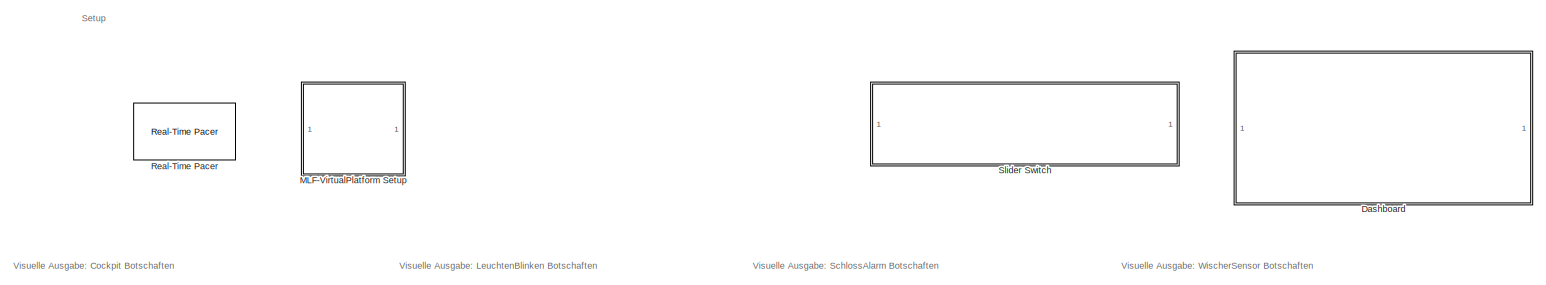
[diagram: root canvas - part 1/3, full width, top band]
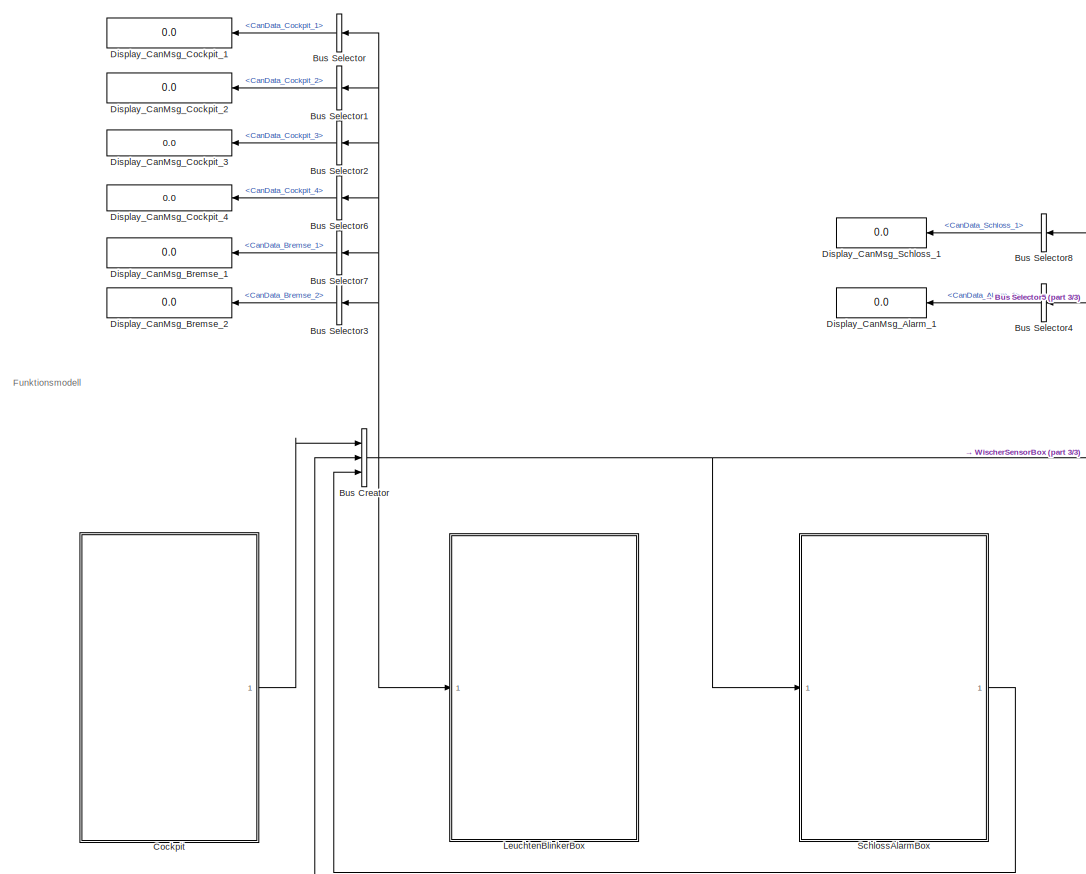
[diagram: root canvas - part 2/3, central region]
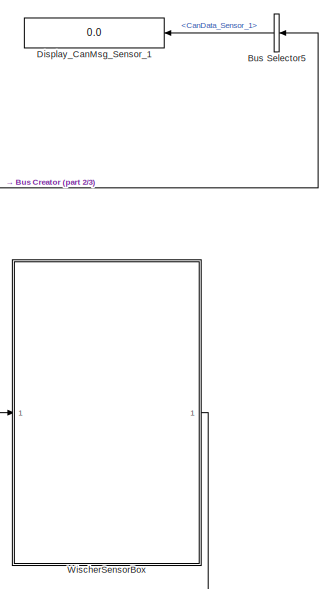
[diagram: root canvas - part 3/3, bottom right region]
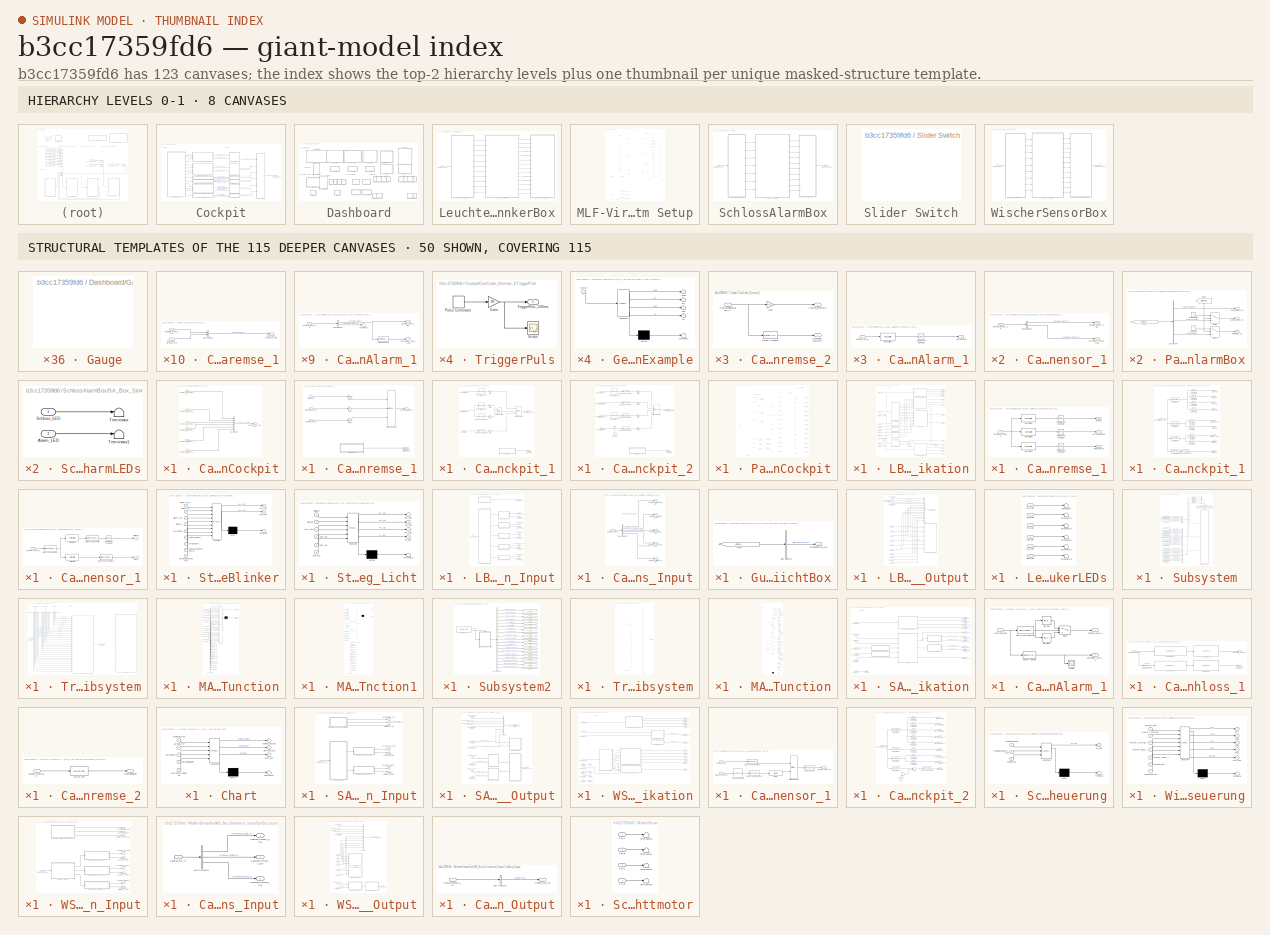
[diagram: thumbnail index - top-2 hierarchy levels (8 canvases) + 50 structural-template representatives of the remaining 115 canvases]
MODEL slx_b3cc17359fd6
KIND model
CONFIG AbsTol = auto
CONFIG EnableMultiTasking = off
CONFIG FixedStep = 0.05
CONFIG MaxStep = auto
CONFIG MinStep = auto
CONFIG RelTol = 1e-3
CONFIG SampleTimeConstraint = Unconstrained
CONFIG Solver = FixedStepAuto
CONFIG SolverName = FixedStepAuto
CONFIG StartTime = 0.0
CONFIG StopTime = inf
BLOCK [BusCreator] Bus Creator
  DisplayOption = bar
  InheritFromInputs = on
  Inputs = 3
  Ports = [3, 1]
BLOCK [BusSelector] Bus Selector
  OutputAsBus = off
  OutputSignals = CanBus_Cockpit.CanMsg_Cockpit_1.CanData_Cockpit_1
  Ports = [1, 1]
BLOCK [BusSelector] Bus Selector1
  OutputAsBus = off
  OutputSignals = CanBus_Cockpit.CanMsg_Cockpit_2.CanData_Cockpit_2
  Ports = [1, 1]
BLOCK [BusSelector] Bus Selector2
  OutputAsBus = off
  OutputSignals = CanBus_Cockpit.CanMsg_Cockpit_3.CanData_Cockpit_3
  Ports = [1, 1]
BLOCK [BusSelector] Bus Selector3
  OutputAsBus = off
  OutputSignals = CanBus_Cockpit.CanMsg_Bremse_2.CanData_Bremse_2
  Ports = [1, 1]
BLOCK [BusSelector] Bus Selector4
  OutputAsBus = off
  OutputSignals = CanBus_SA.CanMsg_Alarm_1.CanData_Alarm_1
  Ports = [1, 1]
BLOCK [BusSelector] Bus Selector5
  OutputAsBus = off
  OutputSignals = CanBus_WS.CanMsg_Sensor_1.CanData_Sensor_1
  Ports = [1, 1]
BLOCK [BusSelector] Bus Selector6
  OutputAsBus = off
  OutputSignals = CanBus_Cockpit.CanMsg_Cockpit_4.CanData_Cockpit_4
  Ports = [1, 1]
BLOCK [BusSelector] Bus Selector7
  OutputAsBus = off
  OutputSignals = CanBus_Cockpit.CanMsg_Bremse_1.CanData_Bremse_1
  Ports = [1, 1]
BLOCK [BusSelector] Bus Selector8
  OutputAsBus = off
  OutputSignals = CanBus_SA.CanMsg_Schloss_1.CanData_Schloss_1
  Ports = [1, 1]
BLOCK [SubSystem] Cockpit
  Ports = [0, 1]
  RequestExecContextInheritance = off
  Variant = off
BLOCK [SubSystem] Cockpit/CanBus_Cockpit
  Ports = [6, 1]
  RequestExecContextInheritance = off
  Variant = off
BLOCK [BusCreator] Cockpit/CanBus_Cockpit/Bus Creator4
  DisplayOption = bar
  InheritFromInputs = on
  Inputs = 6
  Ports = [6, 1]
BLOCK [Outport] Cockpit/CanBus_Cockpit/CanBus_Cockpit_Out
  IconDisplay = Port number
BLOCK [Inport] Cockpit/CanBus_Cockpit/CanMsg_Bremse_1_In
  IconDisplay = Port number
  Port = 5
BLOCK [Inport] Cockpit/CanBus_Cockpit/CanMsg_Bremse_2_In
  IconDisplay = Port number
  Port = 6
BLOCK [Inport] Cockpit/CanBus_Cockpit/CanMsg_Cockpit_1_In 
  IconDisplay = Port number
BLOCK [Inport] Cockpit/CanBus_Cockpit/CanMsg_Cockpit_2_In
  IconDisplay = Port number
  Port = 2
BLOCK [Inport] Cockpit/CanBus_Cockpit/CanMsg_Cockpit_3_In
  IconDisplay = Port number
  Port = 3
BLOCK [Inport] Cockpit/CanBus_Cockpit/CanMsg_Cockpit_4_In
  IconDisplay = Port number
  Port = 4
BLOCK [Outport] Cockpit/CanBus_Cockpit_Out
  IconDisplay = Port number
BLOCK [SubSystem] Cockpit/CanCoder_Bremse_1
  Ports = [3, 2]
  RequestExecContextInheritance = off
  Variant = off
BLOCK [Reference] Cockpit/CanCoder_Bremse_1/Bitwise Operator3  REF=simulink/Logic and Bit
Operations/Bitwise
Operator
  Ports = [3, 1]
  SourceBlock = simulink/Logic and Bit\nOperations/Bitwise\nOperator
  SourceProductBaseCode = SL
  SourceProductName = Simulink
  SourceType = Bitwise Operator
BLOCK [Inport] Cockpit/CanCoder_Bremse_1/Bremse_In
  IconDisplay = Port number
BLOCK [Outport] Cockpit/CanCoder_Bremse_1/CanData_Bremse_1
  IconDisplay = Port number
BLOCK [Outport] Cockpit/CanCoder_Bremse_1/CanTrigger_Bremse_1
  IconDisplay = Port number
  Port = 2
BLOCK [Gain] Cockpit/CanCoder_Bremse_1/Gain4
  Gain = 2^0
  OutDataTypeStr = uint8
  ParamDataTypeStr = Inherit: Inherit via internal rule
  SaturateOnIntegerOverflow = off
BLOCK [Gain] Cockpit/CanCoder_Bremse_1/Gain8
  Gain = 2^1
  OutDataTypeStr = uint8
  ParamDataTypeStr = Inherit: Inherit via internal rule
  SaturateOnIntegerOverflow = off
BLOCK [Gain] Cockpit/CanCoder_Bremse_1/Gain9
  Gain = 2^2
  OutDataTypeStr = uint8
  ParamDataTypeStr = Inherit: Inherit via internal rule
  SaturateOnIntegerOverflow = off
BLOCK [Inport] Cockpit/CanCoder_Bremse_1/Notbremsungl_In
  IconDisplay = Port number
  Port = 3
BLOCK [SubSystem] Cockpit/CanCoder_Bremse_1/TriggerPuls
  Ports = [0, 1]
  RequestExecContextInheritance = off
  Variant = off
BLOCK [Gain] Cockpit/CanCoder_Bremse_1/TriggerPuls/Gain
  Gain = 2^0
  OutDataTypeStr = uint8
  ParamDataTypeStr = Inherit: Inherit via internal rule
  SaturateOnIntegerOverflow = off
BLOCK [DiscretePulseGenerator] Cockpit/CanCoder_Bremse_1/TriggerPuls/Pulse Generator
  Period = 0.1
  Ports = [0, 1]
  PulseType = Time based
  PulseWidth = 50
BLOCK [Scope] Cockpit/CanCoder_Bremse_1/TriggerPuls/Scope
  NumInputPorts = 1
  Ports = [1]
  ScopeSpecificationString = Simulink.scopes.TimeScopeBlockCfg('CurrentConfiguration', extmgr.ConfigurationSet(extmgr.Configuration('Core','General UI',true),extmgr.Configuration('Core','Source UI',true),extmgr.Configuration('Sources','WiredSimulink',true,'DataLoggingVariableName','ScopeData2'),extmgr.Configuration('Visuals','Time Domain',true,'SerializedDisplays',{struct('MinYLimReal','-0.125','MaxYLimReal','1.125','YLabelRe...<+1984ch>
BLOCK [Outport] Cockpit/CanCoder_Bremse_1/TriggerPuls/TriggerPuls_100ms
  IconDisplay = Port number
BLOCK [Inport] Cockpit/CanCoder_Bremse_1/Warnbremsung_In
  IconDisplay = Port number
  Port = 2
BLOCK [SubSystem] Cockpit/CanCoder_Bremse_2
  Ports = [1, 2]
  RequestExecContextInheritance = off
  Variant = off
BLOCK [Outport] Cockpit/CanCoder_Bremse_2/CanMsg_Bremse_2
  IconDisplay = Port number
BLOCK [Outport] Cockpit/CanCoder_Bremse_2/CanTrigger_Bremse_2
  IconDisplay = Port number
  Port = 2
BLOCK [Reference] Cockpit/CanCoder_Bremse_2/Detect Change4  REF=simulink/Logic and Bit
Operations/Detect
Change
  Ports = [1, 1]
  SourceBlock = simulink/Logic and Bit\nOperations/Detect\nChange
  SourceProductBaseCode = SL
  SourceProductName = Simulink
  SourceType = Detect Change
BLOCK [Gain] Cockpit/CanCoder_Bremse_2/Gain
  Gain = 2^0
  OutDataTypeStr = uint8
  ParamDataTypeStr = Inherit: Inherit via internal rule
  SaturateOnIntegerOverflow = off
BLOCK [Inport] Cockpit/CanCoder_Bremse_2/GeschwindigkeitsSlider_In
  IconDisplay = Port number
BLOCK [SubSystem] Cockpit/CanCoder_Cockpit_1
  Ports = [3, 2]
  RequestExecContextInheritance = off
  Variant = off
BLOCK [Reference] Cockpit/CanCoder_Cockpit_1/Bitwise Operator3  REF=simulink/Logic and Bit
Operations/Bitwise
Operator
  Ports = [3, 1]
  SourceBlock = simulink/Logic and Bit\nOperations/Bitwise\nOperator
  SourceProductBaseCode = SL
  SourceProductName = Simulink
  SourceType = Bitwise Operator
BLOCK [Reference] Cockpit/CanCoder_Cockpit_1/Bitwise Operator4  REF=simulink/Logic and Bit
Operations/Bitwise
Operator
  Ports = [2, 1]
  SourceBlock = simulink/Logic and Bit\nOperations/Bitwise\nOperator
  SourceProductBaseCode = SL
  SourceProductName = Simulink
  SourceType = Bitwise Operator
BLOCK [Inport] Cockpit/CanCoder_Cockpit_1/Blinkerhebel_In
  IconDisplay = Port number
  Port = 2
BLOCK [Outport] Cockpit/CanCoder_Cockpit_1/CanData_Cockpit_1
  IconDisplay = Port number
BLOCK [Outport] Cockpit/CanCoder_Cockpit_1/CanTrigger_Cockpit_1
  IconDisplay = Port number
  Port = 2
BLOCK [DataTypeConversion] Cockpit/CanCoder_Cockpit_1/Data Type Conversion8
  OutDataTypeStr = uint8
  RndMeth = Floor
  SaturateOnIntegerOverflow = off
BLOCK [LookupNDDirect] Cockpit/CanCoder_Cockpit_1/Direct Lookup Table (n-D)
  NumberOfTableDimensions = 1
  Ports = [1, 1]
  Table = [2; 1; 0; 0; 0]
BLOCK [LookupNDDirect] Cockpit/CanCoder_Cockpit_1/Direct Lookup Table (n-D)1
  NumberOfTableDimensions = 1
  Ports = [1, 1]
  Table = [0; 0; 0; 1; 2]
BLOCK [LookupNDDirect] Cockpit/CanCoder_Cockpit_1/Direct Lookup Table (n-D)2
  NumberOfTableDimensions = 1
  Ports = [1, 1]
  Table = [1; 0; 2; 3; 4]
BLOCK [Gain] Cockpit/CanCoder_Cockpit_1/Gain10
  Gain = 2^5
  OutDataTypeStr = uint8
  ParamDataTypeStr = Inherit: Inherit via internal rule
  SaturateOnIntegerOverflow = off
BLOCK [Gain] Cockpit/CanCoder_Cockpit_1/Gain4
  Gain = 2^0
  OutDataTypeStr = uint8
  ParamDataTypeStr = Inherit: Inherit via internal rule
  SaturateOnIntegerOverflow = off
BLOCK [Gain] Cockpit/CanCoder_Cockpit_1/Gain7
  Gain = 2^7
  OutDataTypeStr = uint8
  ParamDataTypeStr = Inherit: Inherit via internal rule
  SaturateOnIntegerOverflow = off
BLOCK [Gain] Cockpit/CanCoder_Cockpit_1/Gain9
  Gain = 2^3
  OutDataTypeStr = uint8
  ParamDataTypeStr = Inherit: Inherit via internal rule
  SaturateOnIntegerOverflow = off
BLOCK [Inport] Cockpit/CanCoder_Cockpit_1/Lichtschalter_In
  IconDisplay = Port number
BLOCK [SubSystem] Cockpit/CanCoder_Cockpit_1/TriggerPuls
  Ports = [0, 1]
  RequestExecContextInheritance = off
  Variant = off
BLOCK [Gain] Cockpit/CanCoder_Cockpit_1/TriggerPuls/Gain
  Gain = 2^0
  OutDataTypeStr = uint8
  ParamDataTypeStr = Inherit: Inherit via internal rule
  SaturateOnIntegerOverflow = off
BLOCK [DiscretePulseGenerator] Cockpit/CanCoder_Cockpit_1/TriggerPuls/Pulse Generator
  Period = 0.2
  Ports = [0, 1]
  PulseType = Time based
  PulseWidth = 50
BLOCK [Scope] Cockpit/CanCoder_Cockpit_1/TriggerPuls/Scope
  NumInputPorts = 1
  Ports = [1]
  ScopeSpecificationString = Simulink.scopes.TimeScopeBlockCfg('CurrentConfiguration', extmgr.ConfigurationSet(extmgr.Configuration('Core','General UI',true),extmgr.Configuration('Core','Source UI',true),extmgr.Configuration('Sources','WiredSimulink',true,'DataLoggingVariableName','ScopeData2'),extmgr.Configuration('Visuals','Time Domain',true,'SerializedDisplays',{struct('MinYLimReal','-0.125','MaxYLimReal','1.125','YLabelRe...<+1991ch>  <repeated x3 — deduplicated; at blocks: Scope>
BLOCK [Outport] Cockpit/CanCoder_Cockpit_1/TriggerPuls/TriggerPuls_200ms
  IconDisplay = Port number
BLOCK [Inport] Cockpit/CanCoder_Cockpit_1/Warnblinker
  IconDisplay = Port number
  Port = 3
BLOCK [SubSystem] Cockpit/CanCoder_Cockpit_2
  Ports = [4, 2]
  RequestExecContextInheritance = off
  Variant = off
BLOCK [Reference] Cockpit/CanCoder_Cockpit_2/Bitwise Operator3  REF=simulink/Logic and Bit
Operations/Bitwise
Operator
  Ports = [4, 1]
  SourceBlock = simulink/Logic and Bit\nOperations/Bitwise\nOperator
  SourceProductBaseCode = SL
  SourceProductName = Simulink
  SourceType = Bitwise Operator
BLOCK [Outport] Cockpit/CanCoder_Cockpit_2/CanData_Cockpit_2
  IconDisplay = Port number
BLOCK [Outport] Cockpit/CanCoder_Cockpit_2/CanTrigger_Cockpit_2
  IconDisplay = Port number
  Port = 2
BLOCK [Constant] Cockpit/CanCoder_Cockpit_2/Constant
  OutDataTypeStr = int16
  Value = 40
BLOCK [DataTypeConversion] Cockpit/CanCoder_Cockpit_2/Data Type Conversion1
  OutDataTypeStr = uint16
  RndMeth = Floor
  SaturateOnIntegerOverflow = off
BLOCK [DataTypeConversion] Cockpit/CanCoder_Cockpit_2/Data Type Conversion6
  OutDataTypeStr = uint16
  RndMeth = Floor
  SaturateOnIntegerOverflow = off
BLOCK [DataTypeConversion] Cockpit/CanCoder_Cockpit_2/Data Type Conversion8
  OutDataTypeStr = uint16
  RndMeth = Floor
  SaturateOnIntegerOverflow = off
BLOCK [DataTypeConversion] Cockpit/CanCoder_Cockpit_2/Data Type Conversion9
  OutDataTypeStr = uint16
  RndMeth = Floor
  SaturateOnIntegerOverflow = off
BLOCK [LookupNDDirect] Cockpit/CanCoder_Cockpit_2/Direct Lookup Table (n-D)2
  NumberOfTableDimensions = 1
  Ports = [1, 1]
  Table = [1; 0; 2; 3; 4; 5]
BLOCK [LookupNDDirect] Cockpit/CanCoder_Cockpit_2/Direct Lookup Table (n-D)3
  NumberOfTableDimensions = 1
  Ports = [1, 1]
  Table = [1; 0; 2]
BLOCK [Gain] Cockpit/CanCoder_Cockpit_2/Gain2
  Gain = 2^0
  OutDataTypeStr = uint16
  ParamDataTypeStr = Inherit: Inherit via internal rule
  SaturateOnIntegerOverflow = off
BLOCK [Gain] Cockpit/CanCoder_Cockpit_2/Gain3
  Gain = 2^3
  OutDataTypeStr = uint16
  ParamDataTypeStr = Inherit: Inherit via internal rule
  SaturateOnIntegerOverflow = off
BLOCK [Gain] Cockpit/CanCoder_Cockpit_2/Gain5
  Gain = 2^6
  OutDataTypeStr = uint16
  ParamDataTypeStr = Inherit: Inherit via internal rule
  SaturateOnIntegerOverflow = off
BLOCK [Gain] Cockpit/CanCoder_Cockpit_2/Gain6
  Gain = 2^4
  OutDataTypeStr = uint16
  ParamDataTypeStr = Inherit: Inherit via internal rule
  SaturateOnIntegerOverflow = off
BLOCK [Inport] Cockpit/CanCoder_Cockpit_2/ScheibenheizungSwitch_In
  IconDisplay = Port number
  Port = 3
BLOCK [Sum] Cockpit/CanCoder_Cockpit_2/Sum
  IconShape = round
  InputSameDT = off
  Inputs = |++
  OutDataTypeStr = Inherit: Inherit via internal rule
  Ports = [2, 1]
  SaturateOnIntegerOverflow = off
BLOCK [Inport] Cockpit/CanCoder_Cockpit_2/TemperaturSlider_In
  IconDisplay = Port number
  Port = 4
BLOCK [SubSystem] Cockpit/CanCoder_Cockpit_2/TriggerPuls
  Ports = [0, 1]
  RequestExecContextInheritance = off
  Variant = off
BLOCK [Gain] Cockpit/CanCoder_Cockpit_2/TriggerPuls/Gain
  Gain = 2^0
  OutDataTypeStr = uint8
  ParamDataTypeStr = Inherit: Inherit via internal rule
  SaturateOnIntegerOverflow = off
BLOCK [DiscretePulseGenerator] Cockpit/CanCoder_Cockpit_2/TriggerPuls/Pulse Generator
  Period = 0.2
  Ports = [0, 1]
  PulseType = Time based
  PulseWidth = 50
BLOCK [Scope] Cockpit/CanCoder_Cockpit_2/TriggerPuls/Scope
  NumInputPorts = 1
  Ports = [1]
BLOCK [Outport] Cockpit/CanCoder_Cockpit_2/TriggerPuls/TriggerPuls_200ms
  IconDisplay = Port number
BLOCK [Inport] Cockpit/CanCoder_Cockpit_2/WischWaschButton_In
  IconDisplay = Port number
  Port = 2
BLOCK [Inport] Cockpit/CanCoder_Cockpit_2/WischerSwitch_In
  IconDisplay = Port number
BLOCK [SubSystem] Cockpit/CanCoder_Cockpit_3
  Ports = [1, 2]
  RequestExecContextInheritance = off
  Variant = off
BLOCK [Inport] Cockpit/CanCoder_Cockpit_3/AlarmResetButton_In
  IconDisplay = Port number
BLOCK [Outport] Cockpit/CanCoder_Cockpit_3/CanData_Cockpit_3
  IconDisplay = Port number
BLOCK [Outport] Cockpit/CanCoder_Cockpit_3/CanTrigger_Cockpit_3
  IconDisplay = Port number
  Port = 2
BLOCK [Reference] Cockpit/CanCoder_Cockpit_3/Detect Change4  REF=simulink/Logic and Bit
Operations/Detect
Change
  Ports = [1, 1]
  SourceBlock = simulink/Logic and Bit\nOperations/Detect\nChange
  SourceProductBaseCode = SL
  SourceProductName = Simulink
  SourceType = Detect Change
BLOCK [Gain] Cockpit/CanCoder_Cockpit_3/Gain
  Gain = 2^0
  OutDataTypeStr = uint8
  ParamDataTypeStr = Inherit: Inherit via internal rule
  SaturateOnIntegerOverflow = off
BLOCK [SubSystem] Cockpit/CanCoder_Cockpit_4
  Ports = [1, 2]
  RequestExecContextInheritance = off
  Variant = off
BLOCK [Outport] Cockpit/CanCoder_Cockpit_4/CanData_Cockpit_4
  IconDisplay = Port number
BLOCK [Outport] Cockpit/CanCoder_Cockpit_4/CanTrigger_Cockpit_4
  IconDisplay = Port number
  Port = 2
BLOCK [Reference] Cockpit/CanCoder_Cockpit_4/Detect Change4  REF=simulink/Logic and Bit
Operations/Detect
Change
  Ports = [1, 1]
  SourceBlock = simulink/Logic and Bit\nOperations/Detect\nChange
  SourceProductBaseCode = SL
  SourceProductName = Simulink
  SourceType = Detect Change
BLOCK [Gain] Cockpit/CanCoder_Cockpit_4/Gain
  Gain = 2^0
  OutDataTypeStr = uint8
  ParamDataTypeStr = Inherit: Inherit via internal rule
  SaturateOnIntegerOverflow = off
BLOCK [Inport] Cockpit/CanCoder_Cockpit_4/IgnitionSwitch_In
  IconDisplay = Port number
BLOCK [SubSystem] Cockpit/CanTransmit_Bremse_1
  Ports = [2, 1]
  RequestExecContextInheritance = off
  Variant = off
BLOCK [BusCreator] Cockpit/CanTransmit_Bremse_1/Bus Creator6
  DisplayOption = bar
  InheritFromInputs = on
  Inputs = 2
  Ports = [2, 1]
BLOCK [Inport] Cockpit/CanTransmit_Bremse_1/CanData_Bremse_1_In
  IconDisplay = Port number
BLOCK [Inport] Cockpit/CanTransmit_Bremse_1/CanTrigger_Bremse_1_In
  IconDisplay = Port number
  Port = 2
BLOCK [Outport] Cockpit/CanTransmit_Bremse_1/CanTrigger_Bremse_1_Out
  IconDisplay = Port number
BLOCK [SubSystem] Cockpit/CanTransmit_Bremse_2
  Ports = [2, 1]
  RequestExecContextInheritance = off
  Variant = off
BLOCK [BusCreator] Cockpit/CanTransmit_Bremse_2/Bus Creator3
  DisplayOption = bar
  InheritFromInputs = on
  Inputs = 2
  Ports = [2, 1]
BLOCK [Inport] Cockpit/CanTransmit_Bremse_2/CanData_Bremse_2_In
  IconDisplay = Port number
BLOCK [Outport] Cockpit/CanTransmit_Bremse_2/CanMsg_Bremse_2_Out
  IconDisplay = Port number
BLOCK [Inport] Cockpit/CanTransmit_Bremse_2/CanTrigger_Bremse_2_In
  IconDisplay = Port number
  Port = 2
BLOCK [SubSystem] Cockpit/CanTransmit_Cockpit_1
  Ports = [2, 1]
  RequestExecContextInheritance = off
  Variant = off
BLOCK [BusCreator] Cockpit/CanTransmit_Cockpit_1/Bus Creator
  DisplayOption = bar
  InheritFromInputs = on
  Inputs = 2
  Ports = [2, 1]
BLOCK [Inport] Cockpit/CanTransmit_Cockpit_1/CanData_Cockpit_1_In
  IconDisplay = Port number
BLOCK [Outport] Cockpit/CanTransmit_Cockpit_1/CanMsg_Cockpit_1_Out
  IconDisplay = Port number
BLOCK [Inport] Cockpit/CanTransmit_Cockpit_1/CanTrigger_Cockpit_1_In
  IconDisplay = Port number
  Port = 2
BLOCK [SubSystem] Cockpit/CanTransmit_Cockpit_2
  Ports = [2, 1]
  RequestExecContextInheritance = off
  Variant = off
BLOCK [BusCreator] Cockpit/CanTransmit_Cockpit_2/Bus Creator1
  DisplayOption = bar
  InheritFromInputs = on
  Inputs = 2
  Ports = [2, 1]
BLOCK [Inport] Cockpit/CanTransmit_Cockpit_2/CanData_Cockpit_2_In
  IconDisplay = Port number
BLOCK [Outport] Cockpit/CanTransmit_Cockpit_2/CanMsg_Cockpit_2_Out
  IconDisplay = Port number
BLOCK [Inport] Cockpit/CanTransmit_Cockpit_2/CanTrigger_Cockpit_2_In
  IconDisplay = Port number
  Port = 2
BLOCK [SubSystem] Cockpit/CanTransmit_Cockpit_3
  Ports = [2, 1]
  RequestExecContextInheritance = off
  Variant = off
BLOCK [BusCreator] Cockpit/CanTransmit_Cockpit_3/Bus Creator2
  DisplayOption = bar
  InheritFromInputs = on
  Inputs = 2
  Ports = [2, 1]
BLOCK [Inport] Cockpit/CanTransmit_Cockpit_3/CanData_Cockpit_3_In
  IconDisplay = Port number
BLOCK [Outport] Cockpit/CanTransmit_Cockpit_3/CanMsg_Cockpit_3_Out
  IconDisplay = Port number
BLOCK [Inport] Cockpit/CanTransmit_Cockpit_3/CanTrigger_Cockpit_3_In
  IconDisplay = Port number
  Port = 2
BLOCK [SubSystem] Cockpit/CanTransmit_Cockpit_4
  Ports = [2, 1]
  RequestExecContextInheritance = off
  Variant = off
BLOCK [BusCreator] Cockpit/CanTransmit_Cockpit_4/Bus Creator5
  DisplayOption = bar
  InheritFromInputs = on
  Inputs = 2
  Ports = [2, 1]
BLOCK [Inport] Cockpit/CanTransmit_Cockpit_4/CanData_Cockpit_4_In
  IconDisplay = Port number
BLOCK [Outport] Cockpit/CanTransmit_Cockpit_4/CanMsg_Cockpit_4_Out
  IconDisplay = Port number
BLOCK [Inport] Cockpit/CanTransmit_Cockpit_4/CanTrigger_Cockpit_4_In
  IconDisplay = Port number
  Port = 2
BLOCK [SubSystem] Cockpit/PanelInput_Cockpit
  Ports = [0, 13]
  RequestExecContextInheritance = off
  Variant = off
BLOCK [Sum] Cockpit/PanelInput_Cockpit/Add
  InputSameDT = off
  OutDataTypeStr = Inherit: Inherit via internal rule
  Ports = [2, 1]
  SaturateOnIntegerOverflow = off
BLOCK [Constant] Cockpit/PanelInput_Cockpit/AlarmResetButton
  OutDataTypeStr = uint8
  Value = 0
BLOCK [Outport] Cockpit/PanelInput_Cockpit/AlarmResetButton_Out
  IconDisplay = Port number
  Port = 8
BLOCK [Constant] Cockpit/PanelInput_Cockpit/BlinkerSwitch
  OutDataTypeStr = uint8
  Value = 2
BLOCK [Outport] Cockpit/PanelInput_Cockpit/BlinkerSwitch_Out
  IconDisplay = Port number
  Port = 2
BLOCK [Constant] Cockpit/PanelInput_Cockpit/BremseButton
  OutDataTypeStr = uint8
  Value = 0
BLOCK [Outport] Cockpit/PanelInput_Cockpit/BremseButton_Out
  IconDisplay = Port number
  Port = 10
BLOCK [BusSelector] Cockpit/PanelInput_Cockpit/Bus Selector
  OutputAsBus = off
  OutputSignals = cockpitLightSwitch,cockpitIndicator,cockpitWarnLight,cockpitWindshieldWasherMode,cockpitWindshieldWasherPump,cockpitWindshieldHeater,cockpitTemperature,cockpitAlarmReset,cockpitIgnition,cockpitBrake,cockpitBrake,cockpitBrake,cockpitVelocity
  Ports = [1, 13]
BLOCK [Reference] Cockpit/PanelInput_Cockpit/Compare To Constant  REF=simulink/Logic and Bit
Operations/Compare
To Constant
  Ports = [1, 1]
  SourceBlock = simulink/Logic and Bit\nOperations/Compare\nTo Constant
  SourceProductBaseCode = SL
  SourceProductName = Simulink
  SourceType = Compare To Constant
BLOCK [Reference] Cockpit/PanelInput_Cockpit/Compare To Constant1  REF=simulink/Logic and Bit
Operations/Compare
To Constant
  Ports = [1, 1]
  SourceBlock = simulink/Logic and Bit\nOperations/Compare\nTo Constant
  SourceProductBaseCode = SL
  SourceProductName = Simulink
  SourceType = Compare To Constant
BLOCK [Reference] Cockpit/PanelInput_Cockpit/Compare To Constant2  REF=simulink/Logic and Bit
Operations/Compare
To Constant
  Ports = [1, 1]
  SourceBlock = simulink/Logic and Bit\nOperations/Compare\nTo Constant
  SourceProductBaseCode = SL
  SourceProductName = Simulink
  SourceType = Compare To Constant
BLOCK [Constant] Cockpit/PanelInput_Cockpit/Constant
  Value = 2
BLOCK [DataTypeConversion] Cockpit/PanelInput_Cockpit/Data Type Conversion
  OutDataTypeStr = double
  RndMeth = Floor
  SaturateOnIntegerOverflow = off
BLOCK [DataTypeConversion] Cockpit/PanelInput_Cockpit/Data Type Conversion1
  OutDataTypeStr = double
  RndMeth = Floor
  SaturateOnIntegerOverflow = off
BLOCK [DataTypeConversion] Cockpit/PanelInput_Cockpit/Data Type Conversion2
  OutDataTypeStr = double
  RndMeth = Floor
  SaturateOnIntegerOverflow = off
BLOCK [LookupNDDirect] Cockpit/PanelInput_Cockpit/Direct Lookup Table (n-D)
  NumberOfTableDimensions = 1
  Ports = [1, 1]
  Table = [1 0 2 3 4]
BLOCK [LookupNDDirect] Cockpit/PanelInput_Cockpit/Direct Lookup Table (n-D)1
  NumberOfTableDimensions = 1
  Ports = [1, 1]
  Table = [1 0 2 3 4 5]
BLOCK [LookupNDDirect] Cockpit/PanelInput_Cockpit/Direct Lookup Table (n-D)2
  NumberOfTableDimensions = 1
  Ports = [1, 1]
  Table = [1 0 2]
BLOCK [From] Cockpit/PanelInput_Cockpit/From
  GotoTag = cockpitInputBus
  TagVisibility = global
BLOCK [From] Cockpit/PanelInput_Cockpit/From1
  GotoTag = SwitchGUI
  TagVisibility = global
BLOCK [Constant] Cockpit/PanelInput_Cockpit/GUI Settings
  Value = 0
BLOCK [Constant] Cockpit/PanelInput_Cockpit/GeschwindigkeitsSlider
  OutDataTypeStr = uint8
  Value = 0
BLOCK [Outport] Cockpit/PanelInput_Cockpit/GeschwindigkeitsSlider_Out
  IconDisplay = Port number
  Port = 13
BLOCK [Goto] Cockpit/PanelInput_Cockpit/Goto
  GotoTag = SwitchGUI
  TagVisibility = global
BLOCK [Constant] Cockpit/PanelInput_Cockpit/IgnitionSwitch
  OutDataTypeStr = uint8
BLOCK [Outport] Cockpit/PanelInput_Cockpit/IgnitionSwitch_Out
  IconDisplay = Port number
  Port = 9
BLOCK [Constant] Cockpit/PanelInput_Cockpit/LichtSwitch
  OutDataTypeStr = uint8
BLOCK [Outport] Cockpit/PanelInput_Cockpit/LichtSwitch_Out
  IconDisplay = Port number
BLOCK [Constant] Cockpit/PanelInput_Cockpit/NotBremsungButton
  OutDataTypeStr = uint8
  Value = 0
BLOCK [Outport] Cockpit/PanelInput_Cockpit/NotbremsungButton_Out
  IconDisplay = Port number
  Port = 12
BLOCK [Constant] Cockpit/PanelInput_Cockpit/ScheibenheizungSwitch
  OutDataTypeStr = uint8
BLOCK [Outport] Cockpit/PanelInput_Cockpit/ScheibenheizungSwitch_Out
  IconDisplay = Port number
  Port = 6
BLOCK [Switch] Cockpit/PanelInput_Cockpit/Switch
  Criteria = u2 > Threshold
  InputSameDT = off
  SaturateOnIntegerOverflow = off
BLOCK [Switch] Cockpit/PanelInput_Cockpit/Switch1
  Criteria = u2 > Threshold
  InputSameDT = off
  SaturateOnIntegerOverflow = off
BLOCK [Switch] Cockpit/PanelInput_Cockpit/Switch10
  Criteria = u2 > Threshold
  InputSameDT = off
  SaturateOnIntegerOverflow = off
BLOCK [Switch] Cockpit/PanelInput_Cockpit/Switch11
  Criteria = u2 > Threshold
  InputSameDT = off
  SaturateOnIntegerOverflow = off
BLOCK [Switch] Cockpit/PanelInput_Cockpit/Switch12
  Criteria = u2 > Threshold
  InputSameDT = off
  SaturateOnIntegerOverflow = off
BLOCK [Switch] Cockpit/PanelInput_Cockpit/Switch2
  Criteria = u2 > Threshold
  InputSameDT = off
  SaturateOnIntegerOverflow = off
BLOCK [Switch] Cockpit/PanelInput_Cockpit/Switch3
  Criteria = u2 > Threshold
  InputSameDT = off
  SaturateOnIntegerOverflow = off
BLOCK [Switch] Cockpit/PanelInput_Cockpit/Switch4
  Criteria = u2 > Threshold
  InputSameDT = off
  SaturateOnIntegerOverflow = off
BLOCK [Switch] Cockpit/PanelInput_Cockpit/Switch5
  Criteria = u2 > Threshold
  InputSameDT = off
  SaturateOnIntegerOverflow = off
BLOCK [Switch] Cockpit/PanelInput_Cockpit/Switch6
  Criteria = u2 > Threshold
  InputSameDT = off
  SaturateOnIntegerOverflow = off
BLOCK [Switch] Cockpit/PanelInput_Cockpit/Switch7
  Criteria = u2 > Threshold
  InputSameDT = off
  SaturateOnIntegerOverflow = off
BLOCK [Switch] Cockpit/PanelInput_Cockpit/Switch8
  Criteria = u2 > Threshold
  InputSameDT = off
  SaturateOnIntegerOverflow = off
BLOCK [Switch] Cockpit/PanelInput_Cockpit/Switch9
  Criteria = u2 > Threshold
  InputSameDT = off
  SaturateOnIntegerOverflow = off
BLOCK [Constant] Cockpit/PanelInput_Cockpit/TemperaturSlider
  OutDataTypeStr = int16
  Value = -30.625
BLOCK [Outport] Cockpit/PanelInput_Cockpit/TemperaturSlider_Out
  IconDisplay = Port number
  Port = 7
BLOCK [Constant] Cockpit/PanelInput_Cockpit/WarnblinkerSwitch
  OutDataTypeStr = uint8
  Value = 0
BLOCK [Outport] Cockpit/PanelInput_Cockpit/WarnblinkerSwitch_Out
  IconDisplay = Port number
  Port = 3
BLOCK [Constant] Cockpit/PanelInput_Cockpit/WarnbremsungButton
  OutDataTypeStr = uint8
  Value = 0
BLOCK [Outport] Cockpit/PanelInput_Cockpit/WarnbremsungButton_Out
  IconDisplay = Port number
  Port = 11
BLOCK [Constant] Cockpit/PanelInput_Cockpit/WischWaschButton
  OutDataTypeStr = uint8
  Value = 0
BLOCK [Outport] Cockpit/PanelInput_Cockpit/WischWaschButton_Out
  IconDisplay = Port number
  Port = 5
BLOCK [Constant] Cockpit/PanelInput_Cockpit/WischerSwitch
  OutDataTypeStr = uint8
BLOCK [Outport] Cockpit/PanelInput_Cockpit/WischerSwitch_Out
  IconDisplay = Port number
  Port = 4
BLOCK [SubSystem] Dashboard
  Ports = []
  RequestExecContextInheritance = off
  Variant = off
BLOCK [SubSystem] Dashboard/Gauge
  DialogController = hmiCreateDDGDialog
  IsWebBlock = on
  Ports = []
  RequestExecContextInheritance = off
  Variant = off
BLOCK [SubSystem] Dashboard/Lamp
  DialogController = hmiCreateDDGDialog
  IsWebBlock = on
  Ports = []
  RequestExecContextInheritance = off
  Variant = off
BLOCK [SubSystem] Dashboard/Lamp1
  DialogController = hmiCreateDDGDialog
  IsWebBlock = on
  Ports = []
  RequestExecContextInheritance = off
  Variant = off
BLOCK [SubSystem] Dashboard/Lamp10
  DialogController = hmiCreateDDGDialog
  IsWebBlock = on
  Ports = []
  RequestExecContextInheritance = off
  Variant = off
BLOCK [SubSystem] Dashboard/Lamp11
  DialogController = hmiCreateDDGDialog
  IsWebBlock = on
  Ports = []
  RequestExecContextInheritance = off
  Variant = off
BLOCK [SubSystem] Dashboard/Lamp12
  DialogController = hmiCreateDDGDialog
  IsWebBlock = on
  Ports = []
  RequestExecContextInheritance = off
  Variant = off
BLOCK [SubSystem] Dashboard/Lamp13
  DialogController = hmiCreateDDGDialog
  IsWebBlock = on
  Ports = []
  RequestExecContextInheritance = off
  Variant = off
BLOCK [SubSystem] Dashboard/Lamp14
  DialogController = hmiCreateDDGDialog
  IsWebBlock = on
  Ports = []
  RequestExecContextInheritance = off
  Variant = off
BLOCK [SubSystem] Dashboard/Lamp15
  DialogController = hmiCreateDDGDialog
  IsWebBlock = on
  Ports = []
  RequestExecContextInheritance = off
  Variant = off
BLOCK [SubSystem] Dashboard/Lamp16
  DialogController = hmiCreateDDGDialog
  IsWebBlock = on
  Ports = []
  RequestExecContextInheritance = off
  Variant = off
BLOCK [SubSystem] Dashboard/Lamp17
  DialogController = hmiCreateDDGDialog
  IsWebBlock = on
  Ports = []
  RequestExecContextInheritance = off
  Variant = off
BLOCK [SubSystem] Dashboard/Lamp18
  DialogController = hmiCreateDDGDialog
  IsWebBlock = on
  Ports = []
  RequestExecContextInheritance = off
  Variant = off
BLOCK [SubSystem] Dashboard/Lamp2
  DialogController = hmiCreateDDGDialog
  IsWebBlock = on
  Ports = []
  RequestExecContextInheritance = off
  Variant = off
BLOCK [SubSystem] Dashboard/Lamp20
  DialogController = hmiCreateDDGDialog
  IsWebBlock = on
  Ports = []
  RequestExecContextInheritance = off
  Variant = off
BLOCK [SubSystem] Dashboard/Lamp3
  DialogController = hmiCreateDDGDialog
  IsWebBlock = on
  Ports = []
  RequestExecContextInheritance = off
  Variant = off
BLOCK [SubSystem] Dashboard/Lamp4
  DialogController = hmiCreateDDGDialog
  IsWebBlock = on
  Ports = []
  RequestExecContextInheritance = off
  Variant = off
BLOCK [SubSystem] Dashboard/Lamp5
  DialogController = hmiCreateDDGDialog
  IsWebBlock = on
  Ports = []
  RequestExecContextInheritance = off
  Variant = off
BLOCK [SubSystem] Dashboard/Lamp6
  DialogController = hmiCreateDDGDialog
  IsWebBlock = on
  Ports = []
  RequestExecContextInheritance = off
  Variant = off
BLOCK [SubSystem] Dashboard/Lamp7
  DialogController = hmiCreateDDGDialog
  IsWebBlock = on
  Ports = []
  RequestExecContextInheritance = off
  Variant = off
BLOCK [SubSystem] Dashboard/Lamp8
  DialogController = hmiCreateDDGDialog
  IsWebBlock = on
  Ports = []
  RequestExecContextInheritance = off
  Variant = off
BLOCK [SubSystem] Dashboard/Lamp9
  DialogController = hmiCreateDDGDialog
  IsWebBlock = on
  Ports = []
  RequestExecContextInheritance = off
  Variant = off
BLOCK [SubSystem] Dashboard/Push Button
  DialogController = hmiCreateDDGDialog
  IsWebBlock = on
  Ports = []
  RequestExecContextInheritance = off
  Variant = off
BLOCK [SubSystem] Dashboard/Push Button1
  DialogController = hmiCreateDDGDialog
  IsWebBlock = on
  Ports = []
  RequestExecContextInheritance = off
  Variant = off
BLOCK [SubSystem] Dashboard/Push Button2
  DialogController = hmiCreateDDGDialog
  IsWebBlock = on
  Ports = []
  RequestExecContextInheritance = off
  Variant = off
BLOCK [SubSystem] Dashboard/Push Button4
  DialogController = hmiCreateDDGDialog
  IsWebBlock = on
  Ports = []
  RequestExecContextInheritance = off
  Variant = off
BLOCK [SubSystem] Dashboard/Push Button5
  DialogController = hmiCreateDDGDialog
  IsWebBlock = on
  Ports = []
  RequestExecContextInheritance = off
  Variant = off
BLOCK [SubSystem] Dashboard/Quarter Gauge
  DialogController = hmiCreateDDGDialog
  IsWebBlock = on
  Ports = []
  RequestExecContextInheritance = off
  Variant = off
BLOCK [SubSystem] Dashboard/Rocker Switch
  DialogController = hmiCreateDDGDialog
  IsWebBlock = on
  Ports = []
  RequestExecContextInheritance = off
  Variant = off
BLOCK [SubSystem] Dashboard/Rocker Switch6
  DialogController = hmiCreateDDGDialog
  IsWebBlock = on
  Ports = []
  RequestExecContextInheritance = off
  Variant = off
BLOCK [SubSystem] Dashboard/Rotary Switch
  DialogController = hmiCreateDDGDialog
  IsWebBlock = on
  Ports = []
  RequestExecContextInheritance = off
  Variant = off
BLOCK [SubSystem] Dashboard/Rotary Switch1
  DialogController = hmiCreateDDGDialog
  IsWebBlock = on
  Ports = []
  RequestExecContextInheritance = off
  Variant = off
BLOCK [SubSystem] Dashboard/Rotary Switch2
  DialogController = hmiCreateDDGDialog
  IsWebBlock = on
  Ports = []
  RequestExecContextInheritance = off
  Variant = off
BLOCK [SubSystem] Dashboard/Rotary Switch3
  DialogController = hmiCreateDDGDialog
  IsWebBlock = on
  Ports = []
  RequestExecContextInheritance = off
  Variant = off
BLOCK [SubSystem] Dashboard/Slider
  DialogController = hmiCreateDDGDialog
  IsWebBlock = on
  Ports = []
  RequestExecContextInheritance = off
  Variant = off
BLOCK [SubSystem] Dashboard/Slider1
  DialogController = hmiCreateDDGDialog
  IsWebBlock = on
  Ports = []
  RequestExecContextInheritance = off
  Variant = off
BLOCK [SubSystem] Dashboard/Slider2
  DialogController = hmiCreateDDGDialog
  IsWebBlock = on
  Ports = []
  RequestExecContextInheritance = off
  Variant = off
BLOCK [Display] Display_CanMsg_Alarm_1
  Decimation = 1
  Format = binary (Stored Integer)
  Ports = [1]
BLOCK [Display] Display_CanMsg_Bremse_1
  Decimation = 1
  Format = binary (Stored Integer)
  Ports = [1]
BLOCK [Display] Display_CanMsg_Bremse_2
  Decimation = 1
  Format = binary (Stored Integer)
  Ports = [1]
BLOCK [Display] Display_CanMsg_Cockpit_1
  Decimation = 1
  Format = binary (Stored Integer)
  Ports = [1]
BLOCK [Display] Display_CanMsg_Cockpit_2
  Decimation = 1
  Format = binary (Stored Integer)
  Ports = [1]
BLOCK [Display] Display_CanMsg_Cockpit_3
  Decimation = 1
  Format = binary (Stored Integer)
  Ports = [1]
BLOCK [Display] Display_CanMsg_Cockpit_4
  Decimation = 1
  Format = binary (Stored Integer)
  Ports = [1]
BLOCK [Display] Display_CanMsg_Schloss_1
  Decimation = 1
  Format = binary (Stored Integer)
  Ports = [1]
BLOCK [Display] Display_CanMsg_Sensor_1
  Decimation = 1
  Format = binary (Stored Integer)
  Ports = [1]
BLOCK [SubSystem] LeuchtenBlinkerBox
  Ports = [1]
  RequestExecContextInheritance = off
  Variant = off
BLOCK [Inport] LeuchtenBlinkerBox/CanBus_LB_In
  IconDisplay = Port number
BLOCK [SubSystem] LeuchtenBlinkerBox/LB_Box_Applikation
  Ports = [11, 14]
  RequestExecContextInheritance = off
  Variant = off
BLOCK [Outport] LeuchtenBlinkerBox/LB_Box_Applikation/ABL_LED_Out
  IconDisplay = Port number
  Port = 6
BLOCK [Outport] LeuchtenBlinkerBox/LB_Box_Applikation/BLL_LED_Out
  IconDisplay = Port number
  Port = 8
BLOCK [Outport] LeuchtenBlinkerBox/LB_Box_Applikation/BLR_LED_Out
  IconDisplay = Port number
  Port = 9
BLOCK [Outport] LeuchtenBlinkerBox/LB_Box_Applikation/BRL_LED_Out
  IconDisplay = Port number
  Port = 10
BLOCK [Inport] LeuchtenBlinkerBox/LB_Box_Applikation/CanData_Alarm_1_In
  IconDisplay = Port number
  Port = 6
BLOCK [Inport] LeuchtenBlinkerBox/LB_Box_Applikation/CanData_Bremse_1_In
  IconDisplay = Port number
  Port = 10
BLOCK [Inport] LeuchtenBlinkerBox/LB_Box_Applikation/CanData_Cockpit_1_In
  IconDisplay = Port number
  Port = 2
BLOCK [Inport] LeuchtenBlinkerBox/LB_Box_Applikation/CanData_Schloss_1_In
  IconDisplay = Port number
  Port = 4
BLOCK [Inport] LeuchtenBlinkerBox/LB_Box_Applikation/CanData_Sensor_1_In
  IconDisplay = Port number
  Port = 8
BLOCK [SubSystem] LeuchtenBlinkerBox/LB_Box_Applikation/CanDecoder_Alarm_1
  Ports = [1, 1]
  RequestExecContextInheritance = off
  Variant = off
BLOCK [Outport] LeuchtenBlinkerBox/LB_Box_Applikation/CanDecoder_Alarm_1/AlarmZustand
  IconDisplay = Port number
BLOCK [Inport] LeuchtenBlinkerBox/LB_Box_Applikation/CanDecoder_Alarm_1/CanData_Alarm_1
  IconDisplay = Port number
BLOCK [Reference] LeuchtenBlinkerBox/LB_Box_Applikation/CanDecoder_Alarm_1/Compare To Constant1  REF=simulink/Logic and Bit
Operations/Compare
To Constant
  Ports = [1, 1]
  SourceBlock = simulink/Logic and Bit\nOperations/Compare\nTo Constant
  SourceProductBaseCode = SL
  SourceProductName = Simulink
  SourceType = Compare To Constant
BLOCK [Reference] LeuchtenBlinkerBox/LB_Box_Applikation/CanDecoder_Alarm_1/Extract Bits1  REF=simulink/Logic and Bit
Operations/Extract Bits
  Ports = [1, 1]
  SourceBlock = simulink/Logic and Bit\nOperations/Extract Bits
  SourceProductBaseCode = SL
  SourceProductName = Simulink
  SourceType = Extract Bits
BLOCK [SubSystem] LeuchtenBlinkerBox/LB_Box_Applikation/CanDecoder_Bremse_1
  Ports = [1, 3]
  RequestExecContextInheritance = off
  Variant = off
BLOCK [Outport] LeuchtenBlinkerBox/LB_Box_Applikation/CanDecoder_Bremse_1/Bremse
  IconDisplay = Port number
BLOCK [Inport] LeuchtenBlinkerBox/LB_Box_Applikation/CanDecoder_Bremse_1/CanData_Bremse_1
  IconDisplay = Port number
BLOCK [Reference] LeuchtenBlinkerBox/LB_Box_Applikation/CanDecoder_Bremse_1/Compare To Constant1  REF=simulink/Logic and Bit
Operations/Compare
To Constant
  Ports = [1, 1]
  SourceBlock = simulink/Logic and Bit\nOperations/Compare\nTo Constant
  SourceProductBaseCode = SL
  SourceProductName = Simulink
  SourceType = Compare To Constant
BLOCK [Reference] LeuchtenBlinkerBox/LB_Box_Applikation/CanDecoder_Bremse_1/Compare To Constant2  REF=simulink/Logic and Bit
Operations/Compare
To Constant
  Ports = [1, 1]
  SourceBlock = simulink/Logic and Bit\nOperations/Compare\nTo Constant
  SourceProductBaseCode = SL
  SourceProductName = Simulink
  SourceType = Compare To Constant
BLOCK [Reference] LeuchtenBlinkerBox/LB_Box_Applikation/CanDecoder_Bremse_1/Compare To Constant3  REF=simulink/Logic and Bit
Operations/Compare
To Constant
  Ports = [1, 1]
  SourceBlock = simulink/Logic and Bit\nOperations/Compare\nTo Constant
  SourceProductBaseCode = SL
  SourceProductName = Simulink
  SourceType = Compare To Constant
BLOCK [Reference] LeuchtenBlinkerBox/LB_Box_Applikation/CanDecoder_Bremse_1/Extract Bits1  REF=simulink/Logic and Bit
Operations/Extract Bits
  Ports = [1, 1]
  SourceBlock = simulink/Logic and Bit\nOperations/Extract Bits
  SourceProductBaseCode = SL
  SourceProductName = Simulink
  SourceType = Extract Bits
BLOCK [Reference] LeuchtenBlinkerBox/LB_Box_Applikation/CanDecoder_Bremse_1/Extract Bits2  REF=simulink/Logic and Bit
Operations/Extract Bits
  Ports = [1, 1]
  SourceBlock = simulink/Logic and Bit\nOperations/Extract Bits
  SourceProductBaseCode = SL
  SourceProductName = Simulink
  SourceType = Extract Bits
BLOCK [Reference] LeuchtenBlinkerBox/LB_Box_Applikation/CanDecoder_Bremse_1/Extract Bits3  REF=simulink/Logic and Bit
Operations/Extract Bits
  Ports = [1, 1]
  SourceBlock = simulink/Logic and Bit\nOperations/Extract Bits
  SourceProductBaseCode = SL
  SourceProductName = Simulink
  SourceType = Extract Bits
BLOCK [Outport] LeuchtenBlinkerBox/LB_Box_Applikation/CanDecoder_Bremse_1/NotBremsung
  IconDisplay = Port number
  Port = 3
BLOCK [Outport] LeuchtenBlinkerBox/LB_Box_Applikation/CanDecoder_Bremse_1/WarnBremsung
  IconDisplay = Port number
  Port = 2
BLOCK [SubSystem] LeuchtenBlinkerBox/LB_Box_Applikation/CanDecoder_Cockpit_1
  Ports = [1, 9]
  RequestExecContextInheritance = off
  Variant = off
BLOCK [Outport] LeuchtenBlinkerBox/LB_Box_Applikation/CanDecoder_Cockpit_1/Blinker_L
  IconDisplay = Port number
  Port = 8
BLOCK [Outport] LeuchtenBlinkerBox/LB_Box_Applikation/CanDecoder_Cockpit_1/Blinker_L_Tipp
  IconDisplay = Port number
  Port = 7
BLOCK [Outport] LeuchtenBlinkerBox/LB_Box_Applikation/CanDecoder_Cockpit_1/Blinker_R
  IconDisplay = Port number
  Port = 6
BLOCK [Outport] LeuchtenBlinkerBox/LB_Box_Applikation/CanDecoder_Cockpit_1/Blinker_R_Tipp
  IconDisplay = Port number
  Port = 5
BLOCK [Inport] LeuchtenBlinkerBox/LB_Box_Applikation/CanDecoder_Cockpit_1/CanData_Cockpit_1
  IconDisplay = Port number
BLOCK [Reference] LeuchtenBlinkerBox/LB_Box_Applikation/CanDecoder_Cockpit_1/Compare To Constant  REF=simulink/Logic and Bit
Operations/Compare
To Constant
  Ports = [1, 1]
  SourceBlock = simulink/Logic and Bit\nOperations/Compare\nTo Constant
  SourceProductBaseCode = SL
  SourceProductName = Simulink
  SourceType = Compare To Constant
BLOCK [Reference] LeuchtenBlinkerBox/LB_Box_Applikation/CanDecoder_Cockpit_1/Compare To Constant1  REF=simulink/Logic and Bit
Operations/Compare
To Constant
  Ports = [1, 1]
  SourceBlock = simulink/Logic and Bit\nOperations/Compare\nTo Constant
  SourceProductBaseCode = SL
  SourceProductName = Simulink
  SourceType = Compare To Constant
BLOCK [Reference] LeuchtenBlinkerBox/LB_Box_Applikation/CanDecoder_Cockpit_1/Compare To Constant2  REF=simulink/Logic and Bit
Operations/Compare
To Constant
  Ports = [1, 1]
  SourceBlock = simulink/Logic and Bit\nOperations/Compare\nTo Constant
  SourceProductBaseCode = SL
  SourceProductName = Simulink
  SourceType = Compare To Constant
BLOCK [Reference] LeuchtenBlinkerBox/LB_Box_Applikation/CanDecoder_Cockpit_1/Compare To Constant3  REF=simulink/Logic and Bit
Operations/Compare
To Constant
  Ports = [1, 1]
  SourceBlock = simulink/Logic and Bit\nOperations/Compare\nTo Constant
  SourceProductBaseCode = SL
  SourceProductName = Simulink
  SourceType = Compare To Constant
BLOCK [Reference] LeuchtenBlinkerBox/LB_Box_Applikation/CanDecoder_Cockpit_1/Compare To Constant4  REF=simulink/Logic and Bit
Operations/Compare
To Constant
  Ports = [1, 1]
  SourceBlock = simulink/Logic and Bit\nOperations/Compare\nTo Constant
  SourceProductBaseCode = SL
  SourceProductName = Simulink
  SourceType = Compare To Constant
BLOCK [Reference] LeuchtenBlinkerBox/LB_Box_Applikation/CanDecoder_Cockpit_1/Compare To Constant5  REF=simulink/Logic and Bit
Operations/Compare
To Constant
  Ports = [1, 1]
  SourceBlock = simulink/Logic and Bit\nOperations/Compare\nTo Constant
  SourceProductBaseCode = SL
  SourceProductName = Simulink
  SourceType = Compare To Constant
BLOCK [Reference] LeuchtenBlinkerBox/LB_Box_Applikation/CanDecoder_Cockpit_1/Compare To Constant6  REF=simulink/Logic and Bit
Operations/Compare
To Constant
  Ports = [1, 1]
  SourceBlock = simulink/Logic and Bit\nOperations/Compare\nTo Constant
  SourceProductBaseCode = SL
  SourceProductName = Simulink
  SourceType = Compare To Constant
BLOCK [Reference] LeuchtenBlinkerBox/LB_Box_Applikation/CanDecoder_Cockpit_1/Compare To Constant7  REF=simulink/Logic and Bit
Operations/Compare
To Constant
  Ports = [1, 1]
  SourceBlock = simulink/Logic and Bit\nOperations/Compare\nTo Constant
  SourceProductBaseCode = SL
  SourceProductName = Simulink
  SourceType = Compare To Constant
BLOCK [DataTypeConversion] LeuchtenBlinkerBox/LB_Box_Applikation/CanDecoder_Cockpit_1/Data Type Conversion
  RndMeth = Floor
  SaturateOnIntegerOverflow = off
BLOCK [Reference] LeuchtenBlinkerBox/LB_Box_Applikation/CanDecoder_Cockpit_1/Extract Bits  REF=simulink/Logic and Bit
Operations/Extract Bits
  Ports = [1, 1]
  SourceBlock = simulink/Logic and Bit\nOperations/Extract Bits
  SourceProductBaseCode = SL
  SourceProductName = Simulink
  SourceType = Extract Bits
BLOCK [Reference] LeuchtenBlinkerBox/LB_Box_Applikation/CanDecoder_Cockpit_1/Extract Bits1  REF=simulink/Logic and Bit
Operations/Extract Bits
  Ports = [1, 1]
  SourceBlock = simulink/Logic and Bit\nOperations/Extract Bits
  SourceProductBaseCode = SL
  SourceProductName = Simulink
  SourceType = Extract Bits
BLOCK [Reference] LeuchtenBlinkerBox/LB_Box_Applikation/CanDecoder_Cockpit_1/Extract Bits2  REF=simulink/Logic and Bit
Operations/Extract Bits
  Ports = [1, 1]
  SourceBlock = simulink/Logic and Bit\nOperations/Extract Bits
  SourceProductBaseCode = SL
  SourceProductName = Simulink
  SourceType = Extract Bits
BLOCK [Reference] LeuchtenBlinkerBox/LB_Box_Applikation/CanDecoder_Cockpit_1/Extract Bits3  REF=simulink/Logic and Bit
Operations/Extract Bits
  Ports = [1, 1]
  SourceBlock = simulink/Logic and Bit\nOperations/Extract Bits
  SourceProductBaseCode = SL
  SourceProductName = Simulink
  SourceType = Extract Bits
BLOCK [Outport] LeuchtenBlinkerBox/LB_Box_Applikation/CanDecoder_Cockpit_1/Licht_ABL
  IconDisplay = Port number
  Port = 3
BLOCK [Outport] LeuchtenBlinkerBox/LB_Box_Applikation/CanDecoder_Cockpit_1/Licht_Auto
  IconDisplay = Port number
BLOCK [Outport] LeuchtenBlinkerBox/LB_Box_Applikation/CanDecoder_Cockpit_1/Licht_FEL
  IconDisplay = Port number
  Port = 4
BLOCK [Outport] LeuchtenBlinkerBox/LB_Box_Applikation/CanDecoder_Cockpit_1/Licht_TFL
  IconDisplay = Port number
  Port = 2
BLOCK [Outport] LeuchtenBlinkerBox/LB_Box_Applikation/CanDecoder_Cockpit_1/Warnblinker
  IconDisplay = Port number
  Port = 9
BLOCK [SubSystem] LeuchtenBlinkerBox/LB_Box_Applikation/CanDecoder_Schloss_1
  Ports = [1, 1]
  RequestExecContextInheritance = off
  Variant = off
BLOCK [Inport] LeuchtenBlinkerBox/LB_Box_Applikation/CanDecoder_Schloss_1/CanData_Schloss_1
  IconDisplay = Port number
BLOCK [Reference] LeuchtenBlinkerBox/LB_Box_Applikation/CanDecoder_Schloss_1/Compare To Constant1  REF=simulink/Logic and Bit
Operations/Compare
To Constant
  Ports = [1, 1]
  SourceBlock = simulink/Logic and Bit\nOperations/Compare\nTo Constant
  SourceProductBaseCode = SL
  SourceProductName = Simulink
  SourceType = Compare To Constant
BLOCK [Reference] LeuchtenBlinkerBox/LB_Box_Applikation/CanDecoder_Schloss_1/Extract Bits1  REF=simulink/Logic and Bit
Operations/Extract Bits
  Ports = [1, 1]
  SourceBlock = simulink/Logic and Bit\nOperations/Extract Bits
  SourceProductBaseCode = SL
  SourceProductName = Simulink
  SourceType = Extract Bits
BLOCK [Outport] LeuchtenBlinkerBox/LB_Box_Applikation/CanDecoder_Schloss_1/SchliessZustand
  IconDisplay = Port number
BLOCK [SubSystem] LeuchtenBlinkerBox/LB_Box_Applikation/CanDecoder_Sensor_1
  Ports = [1, 2]
  RequestExecContextInheritance = off
  Variant = off
BLOCK [Inport] LeuchtenBlinkerBox/LB_Box_Applikation/CanDecoder_Sensor_1/CanMsg_Sensor_1
  IconDisplay = Port number
BLOCK [Reference] LeuchtenBlinkerBox/LB_Box_Applikation/CanDecoder_Sensor_1/Compare To Constant1  REF=simulink/Logic and Bit
Operations/Compare
To Constant
  Ports = [1, 1]
  SourceBlock = simulink/Logic and Bit\nOperations/Compare\nTo Constant
  SourceProductBaseCode = SL
  SourceProductName = Simulink
  SourceType = Compare To Constant
BLOCK [DataTypeConversion] LeuchtenBlinkerBox/LB_Box_Applikation/CanDecoder_Sensor_1/Data Type Conversion
  RndMeth = Floor
  SaturateOnIntegerOverflow = off
BLOCK [DataTypeConversion] LeuchtenBlinkerBox/LB_Box_Applikation/CanDecoder_Sensor_1/Data Type Conversion1
  OutDataTypeStr = uint16
  RndMeth = Floor
  SaturateOnIntegerOverflow = off
BLOCK [DataTypeConversion] LeuchtenBlinkerBox/LB_Box_Applikation/CanDecoder_Sensor_1/Data Type Conversion2
  OutDataTypeStr = uint16
  RndMeth = Floor
  SaturateOnIntegerOverflow = off
BLOCK [Outport] LeuchtenBlinkerBox/LB_Box_Applikation/CanDecoder_Sensor_1/Distanz
  IconDisplay = Port number
  Port = 2
BLOCK [Reference] LeuchtenBlinkerBox/LB_Box_Applikation/CanDecoder_Sensor_1/Extract Bits  REF=simulink/Logic and Bit
Operations/Extract Bits
  Ports = [1, 1]
  SourceBlock = simulink/Logic and Bit\nOperations/Extract Bits
  SourceProductBaseCode = SL
  SourceProductName = Simulink
  SourceType = Extract Bits
BLOCK [Reference] LeuchtenBlinkerBox/LB_Box_Applikation/CanDecoder_Sensor_1/Extract Bits1  REF=simulink/Logic and Bit
Operations/Extract Bits
  Ports = [1, 1]
  SourceBlock = simulink/Logic and Bit\nOperations/Extract Bits
  SourceProductBaseCode = SL
  SourceProductName = Simulink
  SourceType = Extract Bits
BLOCK [Outport] LeuchtenBlinkerBox/LB_Box_Applikation/CanDecoder_Sensor_1/Helligkeit
  IconDisplay = Port number
BLOCK [Inport] LeuchtenBlinkerBox/LB_Box_Applikation/CanTrigger_Alarm_1_In
  IconDisplay = Port number
  Port = 7
BLOCK [Inport] LeuchtenBlinkerBox/LB_Box_Applikation/CanTrigger_Bremse_1_In
  IconDisplay = Port number
  Port = 11
BLOCK [Inport] LeuchtenBlinkerBox/LB_Box_Applikation/CanTrigger_Cockpit_1_In
  IconDisplay = Port number
  Port = 3
BLOCK [Inport] LeuchtenBlinkerBox/LB_Box_Applikation/CanTrigger_Schloss_1_In
  IconDisplay = Port number
  Port = 5
BLOCK [Inport] LeuchtenBlinkerBox/LB_Box_Applikation/CanTrigger_Sensor_1_In
  IconDisplay = Port number
  Port = 9
BLOCK [Outport] LeuchtenBlinkerBox/LB_Box_Applikation/FEL_LED_Out
  IconDisplay = Port number
  Port = 5
BLOCK [Inport] LeuchtenBlinkerBox/LB_Box_Applikation/GenericButton_In
  IconDisplay = Port number
BLOCK [Outport] LeuchtenBlinkerBox/LB_Box_Applikation/GenericLedLinks_Out
  IconDisplay = Port number
  Port = 2
BLOCK [Outport] LeuchtenBlinkerBox/LB_Box_Applikation/GenericLedOben_Out
  IconDisplay = Port number
  Port = 4
BLOCK [Outport] LeuchtenBlinkerBox/LB_Box_Applikation/GenericLedRechts_Out
  IconDisplay = Port number
  Port = 3
BLOCK [Outport] LeuchtenBlinkerBox/LB_Box_Applikation/GenericLedUnten_Out
  IconDisplay = Port number
BLOCK [SubSystem] LeuchtenBlinkerBox/LB_Box_Applikation/Generic_Lights_Example
  ErrorFcn = Stateflow.Translate.translate
  PermitHierarchicalResolution = ExplicitOnly
  Ports = [1, 4]
  RequestExecContextInheritance = off
  SFBlockType = Chart
  TreatAsAtomicUnit = on
  Variant = off
BLOCK [Demux] LeuchtenBlinkerBox/LB_Box_Applikation/Generic_Lights_Example/ Demux 
  Outputs = 1
  Ports = [1, 1]
BLOCK [S-Function] LeuchtenBlinkerBox/LB_Box_Applikation/Generic_Lights_Example/ SFunction 
  EnableBusSupport = on
  FunctionName = sf_sfun
  PortCounts = [1 5]
  Ports = [1, 5]
  SFcnIsStateOwnerBlock = off
  SFunctionDeploymentMode = off
  Tag = Stateflow S-Function MBE_Simulation_04_Template_14_11_final 11
BLOCK [Terminator] LeuchtenBlinkerBox/LB_Box_Applikation/Generic_Lights_Example/ Terminator 
BLOCK [Inport] LeuchtenBlinkerBox/LB_Box_Applikation/Generic_Lights_Example/button
  IconDisplay = Port number
BLOCK [Outport] LeuchtenBlinkerBox/LB_Box_Applikation/Generic_Lights_Example/down
  IconDisplay = Port number
BLOCK [Outport] LeuchtenBlinkerBox/LB_Box_Applikation/Generic_Lights_Example/left
  IconDisplay = Port number
  Port = 2
BLOCK [Outport] LeuchtenBlinkerBox/LB_Box_Applikation/Generic_Lights_Example/right
  IconDisplay = Port number
  Port = 3
BLOCK [Outport] LeuchtenBlinkerBox/LB_Box_Applikation/Generic_Lights_Example/up
  IconDisplay = Port number
  Port = 4
BLOCK [Logic] LeuchtenBlinkerBox/LB_Box_Applikation/Logical Operator
  AllPortsSameDT = off
  Operator = OR
  OutDataTypeStr = boolean
  Ports = [2, 1]
BLOCK [Logic] LeuchtenBlinkerBox/LB_Box_Applikation/Logical Operator1
  AllPortsSameDT = off
  Inputs = 3
  Operator = OR
  OutDataTypeStr = boolean
  Ports = [3, 1]
BLOCK [Outport] LeuchtenBlinkerBox/LB_Box_Applikation/NSL_LED_Out
  IconDisplay = Port number
  Port = 12
BLOCK [Outport] LeuchtenBlinkerBox/LB_Box_Applikation/NSR_LED_Out
  IconDisplay = Port number
  Port = 13
BLOCK [Outport] LeuchtenBlinkerBox/LB_Box_Applikation/RFL_LED_Out
  IconDisplay = Port number
  Port = 14
BLOCK [Outport] LeuchtenBlinkerBox/LB_Box_Applikation/RL_LED_Out
  IconDisplay = Port number
  Port = 11
BLOCK [Scope] LeuchtenBlinkerBox/LB_Box_Applikation/Scope
  NumInputPorts = 1
  Ports = [1]
  ScopeSpecificationString = Simulink.scopes.TimeScopeBlockCfg('CurrentConfiguration', extmgr.ConfigurationSet(extmgr.Configuration('Core','General UI',true),extmgr.Configuration('Core','Source UI',true),extmgr.Configuration('Sources','WiredSimulink',true,'DataLoggingVariableName','ScopeData2'),extmgr.Configuration('Visuals','Time Domain',true,'SerializedDisplays',{struct('MinYLimReal','-0.125','MaxYLimReal','1.125','YLabelRe...<+1369ch>
BLOCK [SubSystem] LeuchtenBlinkerBox/LB_Box_Applikation/Steuerung_Blinker
  ErrorFcn = Stateflow.Translate.translate
  PermitHierarchicalResolution = ExplicitOnly
  Ports = [9, 2]
  RequestExecContextInheritance = off
  SFBlockType = Chart
  TreatAsAtomicUnit = on
  Variant = off
BLOCK [Demux] LeuchtenBlinkerBox/LB_Box_Applikation/Steuerung_Blinker/ Demux 
  Outputs = 1
  Ports = [1, 1]
BLOCK [S-Function] LeuchtenBlinkerBox/LB_Box_Applikation/Steuerung_Blinker/ SFunction 
  EnableBusSupport = on
  FunctionName = sf_sfun
  PortCounts = [9 3]
  Ports = [9, 3]
  SFcnIsStateOwnerBlock = off
  SFunctionDeploymentMode = off
  Tag = Stateflow S-Function MBE_Simulation_04_Template_14_11_final 3
BLOCK [Terminator] LeuchtenBlinkerBox/LB_Box_Applikation/Steuerung_Blinker/ Terminator 
BLOCK [Inport] LeuchtenBlinkerBox/LB_Box_Applikation/Steuerung_Blinker/AlarmZustand
  IconDisplay = Port number
  Port = 7
BLOCK [Inport] LeuchtenBlinkerBox/LB_Box_Applikation/Steuerung_Blinker/AlarmZustandTriggered
  IconDisplay = Port number
  Port = 9
BLOCK [Outport] LeuchtenBlinkerBox/LB_Box_Applikation/Steuerung_Blinker/BLL_LED
  IconDisplay = Port number
BLOCK [Outport] LeuchtenBlinkerBox/LB_Box_Applikation/Steuerung_Blinker/BLR_LED
  IconDisplay = Port number
  Port = 2
BLOCK [Inport] LeuchtenBlinkerBox/LB_Box_Applikation/Steuerung_Blinker/Blinker_L
  IconDisplay = Port number
  Port = 4
BLOCK [Inport] LeuchtenBlinkerBox/LB_Box_Applikation/Steuerung_Blinker/Blinker_R
  IconDisplay = Port number
  Port = 2
BLOCK [Inport] LeuchtenBlinkerBox/LB_Box_Applikation/Steuerung_Blinker/Blinker_Tip_L
  IconDisplay = Port number
  Port = 3
BLOCK [Inport] LeuchtenBlinkerBox/LB_Box_Applikation/Steuerung_Blinker/Blinker_Tip_R
  IconDisplay = Port number
BLOCK [Inport] LeuchtenBlinkerBox/LB_Box_Applikation/Steuerung_Blinker/SchliessZustand
  IconDisplay = Port number
  Port = 6
BLOCK [Inport] LeuchtenBlinkerBox/LB_Box_Applikation/Steuerung_Blinker/SchliessZustandTriggered
  IconDisplay = Port number
  Port = 8
BLOCK [Inport] LeuchtenBlinkerBox/LB_Box_Applikation/Steuerung_Blinker/Warnblinker
  IconDisplay = Port number
  Port = 5
BLOCK [SubSystem] LeuchtenBlinkerBox/LB_Box_Applikation/Steuerung_Licht
  ErrorFcn = Stateflow.Translate.translate
  PermitHierarchicalResolution = ExplicitOnly
  Ports = [6, 4]
  RequestExecContextInheritance = off
  SFBlockType = Chart
  TreatAsAtomicUnit = on
  Variant = off
BLOCK [Demux] LeuchtenBlinkerBox/LB_Box_Applikation/Steuerung_Licht/ Demux 
  Outputs = 1
  Ports = [1, 1]
BLOCK [S-Function] LeuchtenBlinkerBox/LB_Box_Applikation/Steuerung_Licht/ SFunction 
  EnableBusSupport = on
  FunctionName = sf_sfun
  PortCounts = [6 5]
  Ports = [6, 5]
  SFcnIsStateOwnerBlock = off
  SFunctionDeploymentMode = off
  Tag = Stateflow S-Function MBE_Simulation_04_Template_14_11_final 1
BLOCK [Terminator] LeuchtenBlinkerBox/LB_Box_Applikation/Steuerung_Licht/ Terminator 
BLOCK [Outport] LeuchtenBlinkerBox/LB_Box_Applikation/Steuerung_Licht/ABL_LED
  IconDisplay = Port number
  Port = 2
BLOCK [Inport] LeuchtenBlinkerBox/LB_Box_Applikation/Steuerung_Licht/Distanz
  IconDisplay = Port number
  Port = 2
BLOCK [Outport] LeuchtenBlinkerBox/LB_Box_Applikation/Steuerung_Licht/FEL_LED
  IconDisplay = Port number
BLOCK [Inport] LeuchtenBlinkerBox/LB_Box_Applikation/Steuerung_Licht/Helligkeit
  IconDisplay = Port number
BLOCK [Inport] LeuchtenBlinkerBox/LB_Box_Applikation/Steuerung_Licht/Licht_ABL
  IconDisplay = Port number
  Port = 5
BLOCK [Inport] LeuchtenBlinkerBox/LB_Box_Applikation/Steuerung_Licht/Licht_Auto
  IconDisplay = Port number
  Port = 3
BLOCK [Inport] LeuchtenBlinkerBox/LB_Box_Applikation/Steuerung_Licht/Licht_FEL
  IconDisplay = Port number
  Port = 6
BLOCK [Inport] LeuchtenBlinkerBox/LB_Box_Applikation/Steuerung_Licht/Licht_TFL
  IconDisplay = Port number
  Port = 4
BLOCK [Outport] LeuchtenBlinkerBox/LB_Box_Applikation/Steuerung_Licht/RL_LED
  IconDisplay = Port number
  Port = 4
  VectorParamsAs1DForOutWhenUnconnected = on
BLOCK [Outport] LeuchtenBlinkerBox/LB_Box_Applikation/Steuerung_Licht/TFL_LED
  IconDisplay = Port number
  Port = 3
BLOCK [SubSystem] LeuchtenBlinkerBox/LB_Box_Applikation/Steuerung_Licht1
  ErrorFcn = Stateflow.Translate.translate
  PermitHierarchicalResolution = ExplicitOnly
  Ports = [1, 4]
  RequestExecContextInheritance = off
  SFBlockType = Chart
  TreatAsAtomicUnit = on
  Variant = off
BLOCK [Demux] LeuchtenBlinkerBox/LB_Box_Applikation/Steuerung_Licht1/ Demux 
  Outputs = 1
  Ports = [1, 1]
BLOCK [S-Function] LeuchtenBlinkerBox/LB_Box_Applikation/Steuerung_Licht1/ SFunction 
  EnableBusSupport = on
  FunctionName = sf_sfun
  PortCounts = [1 5]
  Ports = [1, 5]
  SFcnIsStateOwnerBlock = off
  SFunctionDeploymentMode = off
  Tag = Stateflow S-Function MBE_Simulation_04_Template_14_11_final 9
BLOCK [Terminator] LeuchtenBlinkerBox/LB_Box_Applikation/Steuerung_Licht1/ Terminator 
BLOCK [Inport] LeuchtenBlinkerBox/LB_Box_Applikation/Steuerung_Licht1/button
  IconDisplay = Port number
BLOCK [Outport] LeuchtenBlinkerBox/LB_Box_Applikation/Steuerung_Licht1/down
  IconDisplay = Port number
BLOCK [Outport] LeuchtenBlinkerBox/LB_Box_Applikation/Steuerung_Licht1/left
  IconDisplay = Port number
  Port = 2
BLOCK [Outport] LeuchtenBlinkerBox/LB_Box_Applikation/Steuerung_Licht1/right
  IconDisplay = Port number
  Port = 3
BLOCK [Outport] LeuchtenBlinkerBox/LB_Box_Applikation/Steuerung_Licht1/up
  IconDisplay = Port number
  Port = 4
BLOCK [Outport] LeuchtenBlinkerBox/LB_Box_Applikation/TFL_LED_Out
  IconDisplay = Port number
  Port = 7
BLOCK [Terminator] LeuchtenBlinkerBox/LB_Box_Applikation/Terminator
BLOCK [Terminator] LeuchtenBlinkerBox/LB_Box_Applikation/Terminator5
BLOCK [Terminator] LeuchtenBlinkerBox/LB_Box_Applikation/Terminator6
BLOCK [SubSystem] LeuchtenBlinkerBox/LB_Box_Simulation_Input
  Ports = [1, 11]
  RequestExecContextInheritance = off
  Variant = off
BLOCK [SubSystem] LeuchtenBlinkerBox/LB_Box_Simulation_Input/CanBus_Input
  Ports = [1, 5]
  RequestExecContextInheritance = off
  Variant = off
BLOCK [BusSelector] LeuchtenBlinkerBox/LB_Box_Simulation_Input/CanBus_Input/Bus Selector3
  OutputAsBus = off
  OutputSignals = CanBus_Cockpit.CanMsg_Cockpit_1,CanBus_SA.CanMsg_Schloss_1,CanBus_SA.CanMsg_Alarm_1,CanBus_WS.CanMsg_Sensor_1,CanBus_Cockpit.CanMsg_Bremse_1
  Ports = [1, 5]
BLOCK [Inport] LeuchtenBlinkerBox/LB_Box_Simulation_Input/CanBus_Input/CanBus_LB_In
  IconDisplay = Port number
BLOCK [Outport] LeuchtenBlinkerBox/LB_Box_Simulation_Input/CanBus_Input/CanMsg_Alarm_1_Out
  IconDisplay = Port number
  Port = 3
BLOCK [Outport] LeuchtenBlinkerBox/LB_Box_Simulation_Input/CanBus_Input/CanMsg_Bremse_1_Out
  IconDisplay = Port number
  Port = 5
BLOCK [Outport] LeuchtenBlinkerBox/LB_Box_Simulation_Input/CanBus_Input/CanMsg_Cockpit_1_Out
  IconDisplay = Port number
BLOCK [Outport] LeuchtenBlinkerBox/LB_Box_Simulation_Input/CanBus_Input/CanMsg_Schloss_1_Out
  IconDisplay = Port number
  Port = 2
BLOCK [Outport] LeuchtenBlinkerBox/LB_Box_Simulation_Input/CanBus_Input/CanMsg_Sensor_1_Out
  IconDisplay = Port number
  Port = 4
BLOCK [Inport] LeuchtenBlinkerBox/LB_Box_Simulation_Input/CanBus_LB_In
  IconDisplay = Port number
BLOCK [Outport] LeuchtenBlinkerBox/LB_Box_Simulation_Input/CanData_Alarm_1_Out
  IconDisplay = Port number
  Port = 6
BLOCK [Outport] LeuchtenBlinkerBox/LB_Box_Simulation_Input/CanData_Bremse_1_Out
  IconDisplay = Port number
  Port = 10
BLOCK [Outport] LeuchtenBlinkerBox/LB_Box_Simulation_Input/CanData_Cockpit_1_Out
  IconDisplay = Port number
  Port = 2
BLOCK [Outport] LeuchtenBlinkerBox/LB_Box_Simulation_Input/CanData_Schloss_1_Out
  IconDisplay = Port number
  Port = 4
BLOCK [Outport] LeuchtenBlinkerBox/LB_Box_Simulation_Input/CanData_Sensor_1_Out
  IconDisplay = Port number
  Port = 8
BLOCK [SubSystem] LeuchtenBlinkerBox/LB_Box_Simulation_Input/CanReceive_Alarm_1
  Ports = [1, 2]
  RequestExecContextInheritance = off
  Variant = off
BLOCK [BusSelector] LeuchtenBlinkerBox/LB_Box_Simulation_Input/CanReceive_Alarm_1/Bus Selector1
  OutputAsBus = off
  OutputSignals = CanData_Alarm_1,CanTrigger_Alarm_1
  Ports = [1, 2]
BLOCK [Outport] LeuchtenBlinkerBox/LB_Box_Simulation_Input/CanReceive_Alarm_1/CanData_Alarm_1_Out
  IconDisplay = Port number
BLOCK [Inport] LeuchtenBlinkerBox/LB_Box_Simulation_Input/CanReceive_Alarm_1/CanMsg_Alarm_1_In
  IconDisplay = Port number
BLOCK [Outport] LeuchtenBlinkerBox/LB_Box_Simulation_Input/CanReceive_Alarm_1/CanTrigger_Alarm_1_Out
  IconDisplay = Port number
  Port = 2
BLOCK [Reference] LeuchtenBlinkerBox/LB_Box_Simulation_Input/CanReceive_Alarm_1/Detect Change4  REF=simulink/Logic and Bit
Operations/Detect
Change
  Ports = [1, 1]
  SourceBlock = simulink/Logic and Bit\nOperations/Detect\nChange
  SourceProductBaseCode = SL
  SourceProductName = Simulink
  SourceType = Detect Change
BLOCK [Terminator] LeuchtenBlinkerBox/LB_Box_Simulation_Input/CanReceive_Alarm_1/Terminator5
BLOCK [SubSystem] LeuchtenBlinkerBox/LB_Box_Simulation_Input/CanReceive_Bremse_1
  Ports = [1, 2]
  RequestExecContextInheritance = off
  Variant = off
BLOCK [BusSelector] LeuchtenBlinkerBox/LB_Box_Simulation_Input/CanReceive_Bremse_1/Bus Selector5
  OutputAsBus = off
  OutputSignals = CanData_Bremse_1,CanTrigger_Bremse_1
  Ports = [1, 2]
BLOCK [Outport] LeuchtenBlinkerBox/LB_Box_Simulation_Input/CanReceive_Bremse_1/CanData_Bremse_1_Out
  IconDisplay = Port number
BLOCK [Inport] LeuchtenBlinkerBox/LB_Box_Simulation_Input/CanReceive_Bremse_1/CanMsg_Bremse_1_In
  IconDisplay = Port number
BLOCK [Outport] LeuchtenBlinkerBox/LB_Box_Simulation_Input/CanReceive_Bremse_1/CanTrigger_Bremse_1_Out
  IconDisplay = Port number
  Port = 2
BLOCK [Reference] LeuchtenBlinkerBox/LB_Box_Simulation_Input/CanReceive_Bremse_1/Detect Change4  REF=simulink/Logic and Bit
Operations/Detect
Change
  Ports = [1, 1]
  SourceBlock = simulink/Logic and Bit\nOperations/Detect\nChange
  SourceProductBaseCode = SL
  SourceProductName = Simulink
  SourceType = Detect Change
BLOCK [Terminator] LeuchtenBlinkerBox/LB_Box_Simulation_Input/CanReceive_Bremse_1/Terminator8
BLOCK [SubSystem] LeuchtenBlinkerBox/LB_Box_Simulation_Input/CanReceive_Cockpit_1
  Ports = [1, 2]
  RequestExecContextInheritance = off
  Variant = off
BLOCK [BusSelector] LeuchtenBlinkerBox/LB_Box_Simulation_Input/CanReceive_Cockpit_1/Bus Selector
  OutputAsBus = off
  OutputSignals = CanData_Cockpit_1,CanTrigger_Cockpit_1
  Ports = [1, 2]
BLOCK [Inport] LeuchtenBlinkerBox/LB_Box_Simulation_Input/CanReceive_Cockpit_1/CanData_Cockpit_1_In
  IconDisplay = Port number
BLOCK [Outport] LeuchtenBlinkerBox/LB_Box_Simulation_Input/CanReceive_Cockpit_1/CanData_Cockpit_1_Out
  IconDisplay = Port number
BLOCK [Outport] LeuchtenBlinkerBox/LB_Box_Simulation_Input/CanReceive_Cockpit_1/CanTrigger_Cockpit_1_Out
  IconDisplay = Port number
  Port = 2
BLOCK [Reference] LeuchtenBlinkerBox/LB_Box_Simulation_Input/CanReceive_Cockpit_1/Detect Change4  REF=simulink/Logic and Bit
Operations/Detect
Change
  Ports = [1, 1]
  SourceBlock = simulink/Logic and Bit\nOperations/Detect\nChange
  SourceProductBaseCode = SL
  SourceProductName = Simulink
  SourceType = Detect Change
BLOCK [Terminator] LeuchtenBlinkerBox/LB_Box_Simulation_Input/CanReceive_Cockpit_1/Terminator6
BLOCK [SubSystem] LeuchtenBlinkerBox/LB_Box_Simulation_Input/CanReceive_Schloss_1
  Ports = [1, 2]
  RequestExecContextInheritance = off
  Variant = off
BLOCK [BusSelector] LeuchtenBlinkerBox/LB_Box_Simulation_Input/CanReceive_Schloss_1/Bus Selector4
  OutputAsBus = off
  OutputSignals = CanData_Schloss_1,CanTrigger_Schloss_1
  Ports = [1, 2]
BLOCK [Outport] LeuchtenBlinkerBox/LB_Box_Simulation_Input/CanReceive_Schloss_1/CanData_Schloss_1_Out
  IconDisplay = Port number
BLOCK [Inport] LeuchtenBlinkerBox/LB_Box_Simulation_Input/CanReceive_Schloss_1/CanMsg_Schloss_1_In
  IconDisplay = Port number
BLOCK [Outport] LeuchtenBlinkerBox/LB_Box_Simulation_Input/CanReceive_Schloss_1/CanTrigger_Schloss_1_Out
  IconDisplay = Port number
  Port = 2
BLOCK [Reference] LeuchtenBlinkerBox/LB_Box_Simulation_Input/CanReceive_Schloss_1/Detect Change4  REF=simulink/Logic and Bit
Operations/Detect
Change
  Ports = [1, 1]
  SourceBlock = simulink/Logic and Bit\nOperations/Detect\nChange
  SourceProductBaseCode = SL
  SourceProductName = Simulink
  SourceType = Detect Change
BLOCK [Terminator] LeuchtenBlinkerBox/LB_Box_Simulation_Input/CanReceive_Schloss_1/Terminator4
BLOCK [SubSystem] LeuchtenBlinkerBox/LB_Box_Simulation_Input/CanReceive_Sensor_1
  Ports = [1, 2]
  RequestExecContextInheritance = off
  Variant = off
BLOCK [BusSelector] LeuchtenBlinkerBox/LB_Box_Simulation_Input/CanReceive_Sensor_1/Bus Selector2
  OutputAsBus = off
  OutputSignals = CanData_Sensor_1,CanTrigger_Sensor_1
  Ports = [1, 2]
BLOCK [Outport] LeuchtenBlinkerBox/LB_Box_Simulation_Input/CanReceive_Sensor_1/CanData_Sensor_1_Out
  IconDisplay = Port number
BLOCK [Inport] LeuchtenBlinkerBox/LB_Box_Simulation_Input/CanReceive_Sensor_1/CanMsg_Sensor_1_In
  IconDisplay = Port number
BLOCK [Outport] LeuchtenBlinkerBox/LB_Box_Simulation_Input/CanReceive_Sensor_1/CanTrigger_Sensor_1_Out
  IconDisplay = Port number
  Port = 2
BLOCK [Outport] LeuchtenBlinkerBox/LB_Box_Simulation_Input/CanTrigger_Alarm_1_Out
  IconDisplay = Port number
  Port = 7
BLOCK [Outport] LeuchtenBlinkerBox/LB_Box_Simulation_Input/CanTrigger_Bremse_1_Out
  IconDisplay = Port number
  Port = 11
BLOCK [Outport] LeuchtenBlinkerBox/LB_Box_Simulation_Input/CanTrigger_Cockpit_1_Out
  IconDisplay = Port number
  Port = 3
BLOCK [Outport] LeuchtenBlinkerBox/LB_Box_Simulation_Input/CanTrigger_Schloss_1_Out
  IconDisplay = Port number
  Port = 5
BLOCK [Outport] LeuchtenBlinkerBox/LB_Box_Simulation_Input/CanTrigger_Sensor_1_Out
  IconDisplay = Port number
  Port = 9
BLOCK [Outport] LeuchtenBlinkerBox/LB_Box_Simulation_Input/GenericButton_Out
  IconDisplay = Port number
BLOCK [SubSystem] LeuchtenBlinkerBox/LB_Box_Simulation_Input/GuiInput_LichtBox
  Ports = [0, 1]
  RequestExecContextInheritance = off
  Variant = off
BLOCK [BusSelector] LeuchtenBlinkerBox/LB_Box_Simulation_Input/GuiInput_LichtBox/Bus Selector
  OutputAsBus = off
  OutputSignals = lightGenericButton
  Ports = [1, 1]
BLOCK [From] LeuchtenBlinkerBox/LB_Box_Simulation_Input/GuiInput_LichtBox/From
  GotoTag = lightInputBus
  TagVisibility = global
BLOCK [Outport] LeuchtenBlinkerBox/LB_Box_Simulation_Input/GuiInput_LichtBox/GenericButton_Out
  IconDisplay = Port number
BLOCK [SubSystem] LeuchtenBlinkerBox/LB_Box_Simulation_Output
  Ports = [14]
  RequestExecContextInheritance = off
  Variant = off
BLOCK [Inport] LeuchtenBlinkerBox/LB_Box_Simulation_Output/ABL_LED
  IconDisplay = Port number
  Port = 6
BLOCK [Inport] LeuchtenBlinkerBox/LB_Box_Simulation_Output/BLL_LED
  IconDisplay = Port number
  Port = 8
BLOCK [Inport] LeuchtenBlinkerBox/LB_Box_Simulation_Output/BLR_LED
  IconDisplay = Port number
  Port = 9
BLOCK [Inport] LeuchtenBlinkerBox/LB_Box_Simulation_Output/BRL_LED
  IconDisplay = Port number
  Port = 10
BLOCK [BusCreator] LeuchtenBlinkerBox/LB_Box_Simulation_Output/Bus Creator
  DisplayOption = bar
  InheritFromInputs = on
  Inputs = 14
  Ports = [14, 1]
BLOCK [Inport] LeuchtenBlinkerBox/LB_Box_Simulation_Output/FEL_LED
  IconDisplay = Port number
  Port = 5
BLOCK [Inport] LeuchtenBlinkerBox/LB_Box_Simulation_Output/GenericLedLinks_LED_In
  IconDisplay = Port number
  Port = 2
BLOCK [Inport] LeuchtenBlinkerBox/LB_Box_Simulation_Output/GenericLedOben_LED_In
  IconDisplay = Port number
  Port = 4
BLOCK [Inport] LeuchtenBlinkerBox/LB_Box_Simulation_Output/GenericLedRechts_LED_In
  IconDisplay = Port number
  Port = 3
BLOCK [Inport] LeuchtenBlinkerBox/LB_Box_Simulation_Output/GenericLedUnten_LED_In
  IconDisplay = Port number
BLOCK [Goto] LeuchtenBlinkerBox/LB_Box_Simulation_Output/Goto
  GotoTag = lightOutputBus
  TagVisibility = global
BLOCK [SubSystem] LeuchtenBlinkerBox/LB_Box_Simulation_Output/LeuchtenBlinkerLEDs
  Ports = [6]
  RequestExecContextInheritance = off
  Variant = off
BLOCK [Inport] LeuchtenBlinkerBox/LB_Box_Simulation_Output/LeuchtenBlinkerLEDs/ABL_LED
  IconDisplay = Port number
  OutDataTypeStr = boolean
  Port = 2
BLOCK [Inport] LeuchtenBlinkerBox/LB_Box_Simulation_Output/LeuchtenBlinkerLEDs/BLL_LED
  IconDisplay = Port number
  OutDataTypeStr = boolean
  Port = 4
BLOCK [Inport] LeuchtenBlinkerBox/LB_Box_Simulation_Output/LeuchtenBlinkerLEDs/BLR_LED
  IconDisplay = Port number
  OutDataTypeStr = boolean
  Port = 5
BLOCK [Inport] LeuchtenBlinkerBox/LB_Box_Simulation_Output/LeuchtenBlinkerLEDs/BRL_LED
  IconDisplay = Port number
  OutDataTypeStr = boolean
  Port = 6
BLOCK [Inport] LeuchtenBlinkerBox/LB_Box_Simulation_Output/LeuchtenBlinkerLEDs/FEL_LED
  IconDisplay = Port number
  OutDataTypeStr = boolean
BLOCK [Inport] LeuchtenBlinkerBox/LB_Box_Simulation_Output/LeuchtenBlinkerLEDs/TFL_LED
  IconDisplay = Port number
  OutDataTypeStr = boolean
  Port = 3
BLOCK [Terminator] LeuchtenBlinkerBox/LB_Box_Simulation_Output/LeuchtenBlinkerLEDs/Terminator
BLOCK [Terminator] LeuchtenBlinkerBox/LB_Box_Simulation_Output/LeuchtenBlinkerLEDs/Terminator1
BLOCK [Terminator] LeuchtenBlinkerBox/LB_Box_Simulation_Output/LeuchtenBlinkerLEDs/Terminator2
BLOCK [Terminator] LeuchtenBlinkerBox/LB_Box_Simulation_Output/LeuchtenBlinkerLEDs/Terminator3
BLOCK [Terminator] LeuchtenBlinkerBox/LB_Box_Simulation_Output/LeuchtenBlinkerLEDs/Terminator4
BLOCK [Terminator] LeuchtenBlinkerBox/LB_Box_Simulation_Output/LeuchtenBlinkerLEDs/Terminator5
BLOCK [Inport] LeuchtenBlinkerBox/LB_Box_Simulation_Output/NSL_LED
  IconDisplay = Port number
  Port = 12
BLOCK [Inport] LeuchtenBlinkerBox/LB_Box_Simulation_Output/NSR_LED
  IconDisplay = Port number
  Port = 13
BLOCK [Inport] LeuchtenBlinkerBox/LB_Box_Simulation_Output/RFL_LED
  IconDisplay = Port number
  Port = 14
BLOCK [Inport] LeuchtenBlinkerBox/LB_Box_Simulation_Output/RL_LED
  IconDisplay = Port number
  Port = 11
BLOCK [Inport] LeuchtenBlinkerBox/LB_Box_Simulation_Output/TFL_LED
  IconDisplay = Port number
  Port = 7
BLOCK [SubSystem] MLF-VirtualPlatform Setup
  Ports = []
  RequestExecContextInheritance = off
  Variant = off
BLOCK [BusCreator] MLF-VirtualPlatform Setup/Bus Creator
  DisplayOption = bar
  InheritFromInputs = on
  Inputs = 3
  Ports = [3, 1]
BLOCK [BusCreator] MLF-VirtualPlatform Setup/Bus Creator1
  DisplayOption = bar
  InheritFromInputs = on
  Inputs = 1
  Ports = [1, 1]
BLOCK [BusCreator] MLF-VirtualPlatform Setup/Bus Creator2
  DisplayOption = bar
  InheritFromInputs = on
  Inputs = 3
  Ports = [3, 1]
BLOCK [BusCreator] MLF-VirtualPlatform Setup/Bus Creator3
  DisplayOption = bar
  InheritFromInputs = on
  Inputs = 12
  Ports = [12, 1]
BLOCK [BusSelector] MLF-VirtualPlatform Setup/Bus Selector
  OutputAsBus = off
  OutputSignals = GenericLedUnten,GenericLedLinks,GenericLedRechts,GenericLedOben,RL_LED,BRL_LED,TFL_LED,NSL_LED,NSR_LED,BLL_LED,BLR_LED,ABL_LED,RFL_LED,FEL_LED
  Ports = [1, 14]
BLOCK [BusSelector] MLF-VirtualPlatform Setup/Bus Selector1
  OutputAsBus = off
  OutputSignals = down,left,right,up,AlarmZustand,SchliessZustand
  Ports = [1, 6]
BLOCK [BusSelector] MLF-VirtualPlatform Setup/Bus Selector2
  OutputAsBus = off
  OutputSignals = down,left,right,up,SH_LED,WW_LED,SM_A,SM_B,SM_C,SM_D
  Ports = [1, 10]
BLOCK [BusSelector] MLF-VirtualPlatform Setup/Bus Selector9
  OutputAsBus = off
  OutputSignals = cockpitTemperature,cockpitVelocity,cockpitSteeringAngleDeg
  Ports = [1, 3]
BLOCK [Display] MLF-VirtualPlatform Setup/Display_CanMsg_Cockpit_5
  Decimation = 1
  Format = binary (Stored Integer)
  Ports = [1]
BLOCK [Display] MLF-VirtualPlatform Setup/Display_CanMsg_Cockpit_6
  Decimation = 1
  Format = binary (Stored Integer)
  Ports = [1]
BLOCK [Display] MLF-VirtualPlatform Setup/Display_CanMsg_Cockpit_7
  Decimation = 1
  Format = binary (Stored Integer)
  Ports = [1]
BLOCK [From] MLF-VirtualPlatform Setup/From
  GotoTag = lightOutputBus
  TagVisibility = global
BLOCK [From] MLF-VirtualPlatform Setup/From1
  GotoTag = alarmOutputBus
  TagVisibility = global
BLOCK [From] MLF-VirtualPlatform Setup/From2
  GotoTag = windshieldOutputBus
  TagVisibility = global
BLOCK [From] MLF-VirtualPlatform Setup/From3
  GotoTag = cockpitInputBus
  TagVisibility = global
BLOCK [Goto] MLF-VirtualPlatform Setup/Goto
  GotoTag = alarmInputBus
  TagVisibility = global
BLOCK [Goto] MLF-VirtualPlatform Setup/Goto1
  GotoTag = lightInputBus
  TagVisibility = global
BLOCK [Goto] MLF-VirtualPlatform Setup/Goto2
  GotoTag = windshieldInputBus
  TagVisibility = global
BLOCK [Goto] MLF-VirtualPlatform Setup/Goto3
  GotoTag = cockpitInputBus
  TagVisibility = global
BLOCK [SubSystem] MLF-VirtualPlatform Setup/Subsystem
  Ports = [30]
  RequestExecContextInheritance = off
  Variant = off
BLOCK [BusCreator] MLF-VirtualPlatform Setup/Subsystem/Bus Creator
  DisplayOption = bar
  InheritFromInputs = on
  Inputs = 14
  Ports = [14, 1]
BLOCK [BusCreator] MLF-VirtualPlatform Setup/Subsystem/Bus Creator1
  DisplayOption = bar
  InheritFromInputs = on
  Inputs = 6
  Ports = [6, 1]
BLOCK [BusCreator] MLF-VirtualPlatform Setup/Subsystem/Bus Creator2
  DisplayOption = bar
  InheritFromInputs = on
  Inputs = 10
  Ports = [10, 1]
BLOCK [Reference] MLF-VirtualPlatform Setup/Subsystem/Detect Change1  REF=simulink/Logic and Bit
Operations/Detect
Change
  Ports = [1, 1]
  SourceBlock = simulink/Logic and Bit\nOperations/Detect\nChange
  SourceProductBaseCode = SL
  SourceProductName = Simulink
  SourceType = Detect Change
BLOCK [Reference] MLF-VirtualPlatform Setup/Subsystem/Detect Change2  REF=simulink/Logic and Bit
Operations/Detect
Change
  Ports = [1, 1]
  SourceBlock = simulink/Logic and Bit\nOperations/Detect\nChange
  SourceProductBaseCode = SL
  SourceProductName = Simulink
  SourceType = Detect Change
BLOCK [Reference] MLF-VirtualPlatform Setup/Subsystem/Detect Change3  REF=simulink/Logic and Bit
Operations/Detect
Change
  Ports = [1, 1]
  SourceBlock = simulink/Logic and Bit\nOperations/Detect\nChange
  SourceProductBaseCode = SL
  SourceProductName = Simulink
  SourceType = Detect Change
BLOCK [Inport] MLF-VirtualPlatform Setup/Subsystem/In1
  IconDisplay = Port number and signal name
  Port = 7
BLOCK [Inport] MLF-VirtualPlatform Setup/Subsystem/In10
  IconDisplay = Port number and signal name
  Port = 6
BLOCK [Inport] MLF-VirtualPlatform Setup/Subsystem/In11
  IconDisplay = Port number and signal name
  Port = 10
BLOCK [Inport] MLF-VirtualPlatform Setup/Subsystem/In12
  IconDisplay = Port number and signal name
  Port = 11
BLOCK [Inport] MLF-VirtualPlatform Setup/Subsystem/In13
  IconDisplay = Port number and signal name
  Port = 12
BLOCK [Inport] MLF-VirtualPlatform Setup/Subsystem/In14
  IconDisplay = Port number and signal name
  Port = 13
BLOCK [Inport] MLF-VirtualPlatform Setup/Subsystem/In15
  IconDisplay = Port number and signal name
  Port = 14
BLOCK [Inport] MLF-VirtualPlatform Setup/Subsystem/In16
  IconDisplay = Port number and signal name
  Port = 15
BLOCK [Inport] MLF-VirtualPlatform Setup/Subsystem/In17
  IconDisplay = Port number and signal name
  Port = 16
BLOCK [Inport] MLF-VirtualPlatform Setup/Subsystem/In18
  IconDisplay = Port number and signal name
  Port = 17
BLOCK [Inport] MLF-VirtualPlatform Setup/Subsystem/In19
  IconDisplay = Port number and signal name
  Port = 18
BLOCK [Inport] MLF-VirtualPlatform Setup/Subsystem/In2
  IconDisplay = Port number and signal name
  Port = 8
BLOCK [Inport] MLF-VirtualPlatform Setup/Subsystem/In20
  IconDisplay = Port number and signal name
  Port = 19
BLOCK [Inport] MLF-VirtualPlatform Setup/Subsystem/In21
  IconDisplay = Port number and signal name
  Port = 20
BLOCK [Inport] MLF-VirtualPlatform Setup/Subsystem/In22
  IconDisplay = Port number and signal name
  Port = 21
BLOCK [Inport] MLF-VirtualPlatform Setup/Subsystem/In23
  IconDisplay = Port number and signal name
  Port = 22
BLOCK [Inport] MLF-VirtualPlatform Setup/Subsystem/In24
  IconDisplay = Port number and signal name
  Port = 23
BLOCK [Inport] MLF-VirtualPlatform Setup/Subsystem/In25
  IconDisplay = Port number and signal name
  Port = 24
BLOCK [Inport] MLF-VirtualPlatform Setup/Subsystem/In26
  IconDisplay = Port number and signal name
  Port = 25
BLOCK [Inport] MLF-VirtualPlatform Setup/Subsystem/In27
  IconDisplay = Port number and signal name
  Port = 26
BLOCK [Inport] MLF-VirtualPlatform Setup/Subsystem/In28
  IconDisplay = Port number and signal name
  Port = 27
BLOCK [Inport] MLF-VirtualPlatform Setup/Subsystem/In29
  IconDisplay = Port number and signal name
  Port = 28
BLOCK [Inport] MLF-VirtualPlatform Setup/Subsystem/In3
  IconDisplay = Port number and signal name
  Port = 9
BLOCK [Inport] MLF-VirtualPlatform Setup/Subsystem/In30
  IconDisplay = Port number and signal name
  Port = 29
BLOCK [Inport] MLF-VirtualPlatform Setup/Subsystem/In31
  IconDisplay = Port number and signal name
  Port = 30
BLOCK [Inport] MLF-VirtualPlatform Setup/Subsystem/In4
  IconDisplay = Port number and signal name
BLOCK [Inport] MLF-VirtualPlatform Setup/Subsystem/In5
  IconDisplay = Port number and signal name
  Port = 2
BLOCK [Inport] MLF-VirtualPlatform Setup/Subsystem/In7
  IconDisplay = Port number and signal name
  Port = 3
BLOCK [Inport] MLF-VirtualPlatform Setup/Subsystem/In8
  IconDisplay = Port number and signal name
  Port = 4
BLOCK [Inport] MLF-VirtualPlatform Setup/Subsystem/In9
  IconDisplay = Port number and signal name
  Port = 5
BLOCK [SubSystem] MLF-VirtualPlatform Setup/Subsystem/Triggered Subsystem
  Ports = [3, 0, 0, 1]
  RequestExecContextInheritance = off
  TreatAsAtomicUnit = on
  Variant = off
BLOCK [BusSelector] MLF-VirtualPlatform Setup/Subsystem/Triggered Subsystem/Bus Selector
  OutputAsBus = off
  OutputSignals = lightUpperBeamHeadlight,lightReverselight,lightLowerBeamHeadlight,lightIndicatorRight,lightIndicatorLeft,lightGenericLightUp,lightGenericLightRight,lightGenericLightLeft,lightGenericLightDown,lightFoglightRight,lightFoglightLeft,lightDaylight,lightBrakelight,lightBacklight
  Ports = [1, 14]
BLOCK [BusSelector] MLF-VirtualPlatform Setup/Subsystem/Triggered Subsystem/Bus Selector1
  OutputAsBus = off
  OutputSignals = alarmLockLight,alarmGenericLightUp,alarmGenericLightRight,alarmGenericLightLeft,alarmGenericLightDown,alarmAlarmLight
  Ports = [1, 6]
BLOCK [BusSelector] MLF-VirtualPlatform Setup/Subsystem/Triggered Subsystem/Bus Selector2
  OutputAsBus = off
  OutputSignals = windshieldWiperD,windshieldWiperC,windshieldWiperB,windshieldWiperA,windshieldWasherPump,windshieldHeater,windshieldGenericLightUp,windshieldGenericLightRight,windshieldGenericLightLeft,windshieldGenericLightDown
  Ports = [1, 10]
BLOCK [SubSystem] MLF-VirtualPlatform Setup/Subsystem/Triggered Subsystem/MATLAB Function
  ErrorFcn = Stateflow.Translate.translate
  PermitHierarchicalResolution = ExplicitOnly
  Ports = [30, 1]
  RequestExecContextInheritance = off
  SFBlockType = MATLAB Function
  TreatAsAtomicUnit = on
  Variant = off
BLOCK [Demux] MLF-VirtualPlatform Setup/Subsystem/Triggered Subsystem/MATLAB Function/ Demux 
  Outputs = 1
  Ports = [1, 1]
BLOCK [S-Function] MLF-VirtualPlatform Setup/Subsystem/Triggered Subsystem/MATLAB Function/ SFunction 
  EnableBusSupport = on
  FunctionName = sf_sfun
  PortCounts = [30 2]
  Ports = [30, 2]
  SFcnIsStateOwnerBlock = off
  SFunctionDeploymentMode = off
  Tag = Stateflow S-Function MBE_Simulation_04_Template_14_11_final 4
BLOCK [Terminator] MLF-VirtualPlatform Setup/Subsystem/Triggered Subsystem/MATLAB Function/ Terminator 
BLOCK [Inport] MLF-VirtualPlatform Setup/Subsystem/Triggered Subsystem/MATLAB Function/alarmAlarmLight
  IconDisplay = Port number
BLOCK [Inport] MLF-VirtualPlatform Setup/Subsystem/Triggered Subsystem/MATLAB Function/alarmGenericLightDown
  IconDisplay = Port number
  Port = 2
BLOCK [Inport] MLF-VirtualPlatform Setup/Subsystem/Triggered Subsystem/MATLAB Function/alarmGenericLightLeft
  IconDisplay = Port number
  Port = 3
BLOCK [Inport] MLF-VirtualPlatform Setup/Subsystem/Triggered Subsystem/MATLAB Function/alarmGenericLightRight
  IconDisplay = Port number
  Port = 4
BLOCK [Inport] MLF-VirtualPlatform Setup/Subsystem/Triggered Subsystem/MATLAB Function/alarmGenericLightUp
  IconDisplay = Port number
  Port = 5
BLOCK [Inport] MLF-VirtualPlatform Setup/Subsystem/Triggered Subsystem/MATLAB Function/alarmLockLight
  IconDisplay = Port number
  Port = 6
BLOCK [Outport] MLF-VirtualPlatform Setup/Subsystem/Triggered Subsystem/MATLAB Function/json_output
  IconDisplay = Port number
BLOCK [Inport] MLF-VirtualPlatform Setup/Subsystem/Triggered Subsystem/MATLAB Function/lightBacklight
  IconDisplay = Port number
  Port = 7
BLOCK [Inport] MLF-VirtualPlatform Setup/Subsystem/Triggered Subsystem/MATLAB Function/lightBrakelight
  IconDisplay = Port number
  Port = 8
BLOCK [Inport] MLF-VirtualPlatform Setup/Subsystem/Triggered Subsystem/MATLAB Function/lightDaylight
  IconDisplay = Port number
  Port = 9
BLOCK [Inport] MLF-VirtualPlatform Setup/Subsystem/Triggered Subsystem/MATLAB Function/lightFoglightLeft
  IconDisplay = Port number
  Port = 10
BLOCK [Inport] MLF-VirtualPlatform Setup/Subsystem/Triggered Subsystem/MATLAB Function/lightFoglightRight
  IconDisplay = Port number
  Port = 11
BLOCK [Inport] MLF-VirtualPlatform Setup/Subsystem/Triggered Subsystem/MATLAB Function/lightGenericLightDown
  IconDisplay = Port number
  Port = 12
BLOCK [Inport] MLF-VirtualPlatform Setup/Subsystem/Triggered Subsystem/MATLAB Function/lightGenericLightLeft
  IconDisplay = Port number
  Port = 13
BLOCK [Inport] MLF-VirtualPlatform Setup/Subsystem/Triggered Subsystem/MATLAB Function/lightGenericLightRight
  IconDisplay = Port number
  Port = 14
BLOCK [Inport] MLF-VirtualPlatform Setup/Subsystem/Triggered Subsystem/MATLAB Function/lightGenericLightUp
  IconDisplay = Port number
  Port = 15
BLOCK [Inport] MLF-VirtualPlatform Setup/Subsystem/Triggered Subsystem/MATLAB Function/lightIndicatorLeft
  IconDisplay = Port number
  Port = 16
BLOCK [Inport] MLF-VirtualPlatform Setup/Subsystem/Triggered Subsystem/MATLAB Function/lightIndicatorRight
  IconDisplay = Port number
  Port = 17
BLOCK [Inport] MLF-VirtualPlatform Setup/Subsystem/Triggered Subsystem/MATLAB Function/lightLowerBeamHeadlight
  IconDisplay = Port number
  Port = 18
BLOCK [Inport] MLF-VirtualPlatform Setup/Subsystem/Triggered Subsystem/MATLAB Function/lightReverselight
  IconDisplay = Port number
  Port = 19
BLOCK [Inport] MLF-VirtualPlatform Setup/Subsystem/Triggered Subsystem/MATLAB Function/lightUpperBeamHeadlight
  IconDisplay = Port number
  Port = 20
BLOCK [Inport] MLF-VirtualPlatform Setup/Subsystem/Triggered Subsystem/MATLAB Function/windshieldGenericLightDown
  IconDisplay = Port number
  Port = 21
BLOCK [Inport] MLF-VirtualPlatform Setup/Subsystem/Triggered Subsystem/MATLAB Function/windshieldGenericLightLeft
  IconDisplay = Port number
  Port = 22
BLOCK [Inport] MLF-VirtualPlatform Setup/Subsystem/Triggered Subsystem/MATLAB Function/windshieldGenericLightRight
  IconDisplay = Port number
  Port = 23
BLOCK [Inport] MLF-VirtualPlatform Setup/Subsystem/Triggered Subsystem/MATLAB Function/windshieldGenericLightUp
  IconDisplay = Port number
  Port = 24
BLOCK [Inport] MLF-VirtualPlatform Setup/Subsystem/Triggered Subsystem/MATLAB Function/windshieldHeater
  IconDisplay = Port number
  Port = 25
BLOCK [Inport] MLF-VirtualPlatform Setup/Subsystem/Triggered Subsystem/MATLAB Function/windshieldWasherPump
  IconDisplay = Port number
  Port = 26
BLOCK [Inport] MLF-VirtualPlatform Setup/Subsystem/Triggered Subsystem/MATLAB Function/windshieldWiperA
  IconDisplay = Port number
  Port = 27
BLOCK [Inport] MLF-VirtualPlatform Setup/Subsystem/Triggered Subsystem/MATLAB Function/windshieldWiperB
  IconDisplay = Port number
  Port = 28
BLOCK [Inport] MLF-VirtualPlatform Setup/Subsystem/Triggered Subsystem/MATLAB Function/windshieldWiperC
  IconDisplay = Port number
  Port = 29
BLOCK [Inport] MLF-VirtualPlatform Setup/Subsystem/Triggered Subsystem/MATLAB Function/windshieldWiperD
  IconDisplay = Port number
  Port = 30
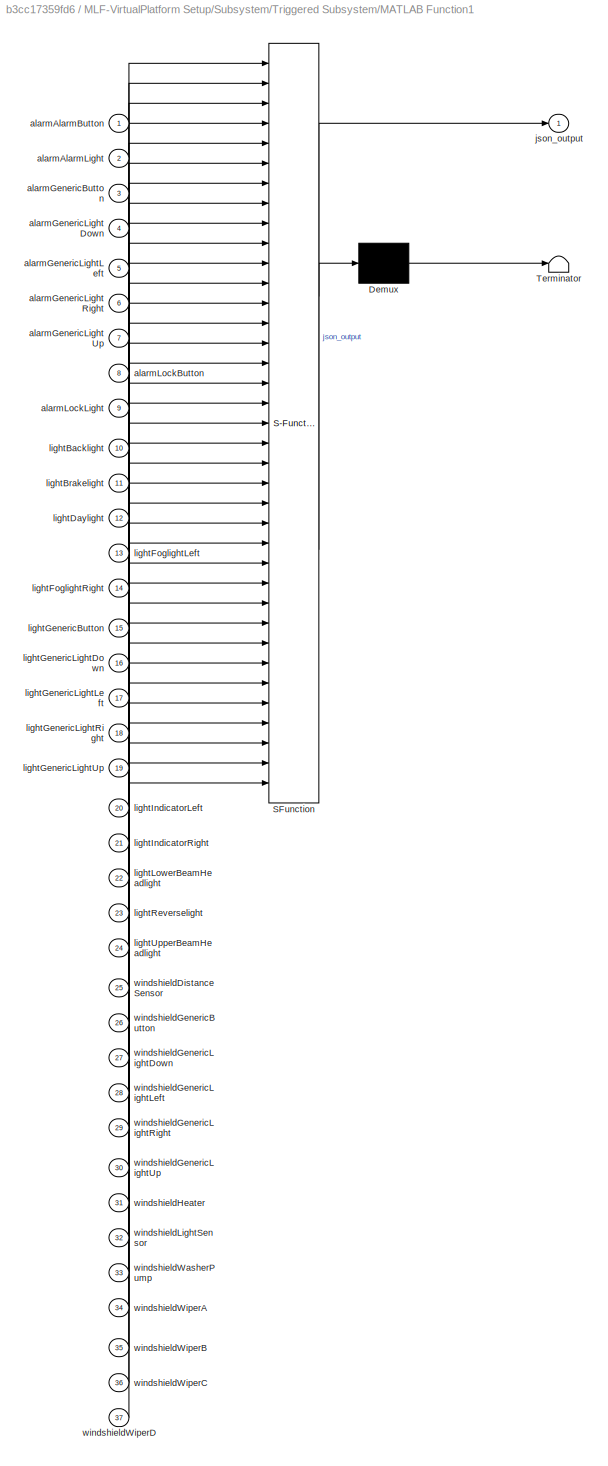
BLOCK [SubSystem] MLF-VirtualPlatform Setup/Subsystem/Triggered Subsystem/MATLAB Function1
  Commented = on
  ErrorFcn = Stateflow.Translate.translate
  PermitHierarchicalResolution = ExplicitOnly
  Ports = [37, 1]
  RequestExecContextInheritance = off
  SFBlockType = MATLAB Function
  TreatAsAtomicUnit = on
  Variant = off
BLOCK [Demux] MLF-VirtualPlatform Setup/Subsystem/Triggered Subsystem/MATLAB Function1/ Demux 
  Outputs = 1
  Ports = [1, 1]
BLOCK [S-Function] MLF-VirtualPlatform Setup/Subsystem/Triggered Subsystem/MATLAB Function1/ SFunction 
  EnableBusSupport = on
  FunctionName = sf_sfun
  PortCounts = [37 2]
  Ports = [37, 2]
  SFcnIsStateOwnerBlock = off
  SFunctionDeploymentMode = off
  Tag = Stateflow S-Function MBE_Simulation_04_Template_14_11_final 7
BLOCK [Terminator] MLF-VirtualPlatform Setup/Subsystem/Triggered Subsystem/MATLAB Function1/ Terminator 
BLOCK [Inport] MLF-VirtualPlatform Setup/Subsystem/Triggered Subsystem/MATLAB Function1/alarmAlarmButton
  IconDisplay = Port number
BLOCK [Inport] MLF-VirtualPlatform Setup/Subsystem/Triggered Subsystem/MATLAB Function1/alarmAlarmLight
  IconDisplay = Port number
  Port = 2
BLOCK [Inport] MLF-VirtualPlatform Setup/Subsystem/Triggered Subsystem/MATLAB Function1/alarmGenericButton
  IconDisplay = Port number
  Port = 3
BLOCK [Inport] MLF-VirtualPlatform Setup/Subsystem/Triggered Subsystem/MATLAB Function1/alarmGenericLightDown
  IconDisplay = Port number
  Port = 4
BLOCK [Inport] MLF-VirtualPlatform Setup/Subsystem/Triggered Subsystem/MATLAB Function1/alarmGenericLightLeft
  IconDisplay = Port number
  Port = 5
BLOCK [Inport] MLF-VirtualPlatform Setup/Subsystem/Triggered Subsystem/MATLAB Function1/alarmGenericLightRight
  IconDisplay = Port number
  Port = 6
BLOCK [Inport] MLF-VirtualPlatform Setup/Subsystem/Triggered Subsystem/MATLAB Function1/alarmGenericLightUp
  IconDisplay = Port number
  Port = 7
BLOCK [Inport] MLF-VirtualPlatform Setup/Subsystem/Triggered Subsystem/MATLAB Function1/alarmLockButton
  IconDisplay = Port number
  Port = 8
BLOCK [Inport] MLF-VirtualPlatform Setup/Subsystem/Triggered Subsystem/MATLAB Function1/alarmLockLight
  IconDisplay = Port number
  Port = 9
BLOCK [Outport] MLF-VirtualPlatform Setup/Subsystem/Triggered Subsystem/MATLAB Function1/json_output
  IconDisplay = Port number
BLOCK [Inport] MLF-VirtualPlatform Setup/Subsystem/Triggered Subsystem/MATLAB Function1/lightBacklight
  IconDisplay = Port number
  Port = 10
BLOCK [Inport] MLF-VirtualPlatform Setup/Subsystem/Triggered Subsystem/MATLAB Function1/lightBrakelight
  IconDisplay = Port number
  Port = 11
BLOCK [Inport] MLF-VirtualPlatform Setup/Subsystem/Triggered Subsystem/MATLAB Function1/lightDaylight
  IconDisplay = Port number
  Port = 12
BLOCK [Inport] MLF-VirtualPlatform Setup/Subsystem/Triggered Subsystem/MATLAB Function1/lightFoglightLeft
  IconDisplay = Port number
  Port = 13
BLOCK [Inport] MLF-VirtualPlatform Setup/Subsystem/Triggered Subsystem/MATLAB Function1/lightFoglightRight
  IconDisplay = Port number
  Port = 14
BLOCK [Inport] MLF-VirtualPlatform Setup/Subsystem/Triggered Subsystem/MATLAB Function1/lightGenericButton
  IconDisplay = Port number
  Port = 15
BLOCK [Inport] MLF-VirtualPlatform Setup/Subsystem/Triggered Subsystem/MATLAB Function1/lightGenericLightDown
  IconDisplay = Port number
  Port = 16
BLOCK [Inport] MLF-VirtualPlatform Setup/Subsystem/Triggered Subsystem/MATLAB Function1/lightGenericLightLeft
  IconDisplay = Port number
  Port = 17
BLOCK [Inport] MLF-VirtualPlatform Setup/Subsystem/Triggered Subsystem/MATLAB Function1/lightGenericLightRight
  IconDisplay = Port number
  Port = 18
BLOCK [Inport] MLF-VirtualPlatform Setup/Subsystem/Triggered Subsystem/MATLAB Function1/lightGenericLightUp
  IconDisplay = Port number
  Port = 19
BLOCK [Inport] MLF-VirtualPlatform Setup/Subsystem/Triggered Subsystem/MATLAB Function1/lightIndicatorLeft
  IconDisplay = Port number
  Port = 20
BLOCK [Inport] MLF-VirtualPlatform Setup/Subsystem/Triggered Subsystem/MATLAB Function1/lightIndicatorRight
  IconDisplay = Port number
  Port = 21
BLOCK [Inport] MLF-VirtualPlatform Setup/Subsystem/Triggered Subsystem/MATLAB Function1/lightLowerBeamHeadlight
  IconDisplay = Port number
  Port = 22
BLOCK [Inport] MLF-VirtualPlatform Setup/Subsystem/Triggered Subsystem/MATLAB Function1/lightReverselight
  IconDisplay = Port number
  Port = 23
BLOCK [Inport] MLF-VirtualPlatform Setup/Subsystem/Triggered Subsystem/MATLAB Function1/lightUpperBeamHeadlight
  IconDisplay = Port number
  Port = 24
BLOCK [Inport] MLF-VirtualPlatform Setup/Subsystem/Triggered Subsystem/MATLAB Function1/windshieldDistanceSensor
  IconDisplay = Port number
  Port = 25
BLOCK [Inport] MLF-VirtualPlatform Setup/Subsystem/Triggered Subsystem/MATLAB Function1/windshieldGenericButton
  IconDisplay = Port number
  Port = 26
BLOCK [Inport] MLF-VirtualPlatform Setup/Subsystem/Triggered Subsystem/MATLAB Function1/windshieldGenericLightDown
  IconDisplay = Port number
  Port = 27
BLOCK [Inport] MLF-VirtualPlatform Setup/Subsystem/Triggered Subsystem/MATLAB Function1/windshieldGenericLightLeft
  IconDisplay = Port number
  Port = 28
BLOCK [Inport] MLF-VirtualPlatform Setup/Subsystem/Triggered Subsystem/MATLAB Function1/windshieldGenericLightRight
  IconDisplay = Port number
  Port = 29
BLOCK [Inport] MLF-VirtualPlatform Setup/Subsystem/Triggered Subsystem/MATLAB Function1/windshieldGenericLightUp
  IconDisplay = Port number
  Port = 30
BLOCK [Inport] MLF-VirtualPlatform Setup/Subsystem/Triggered Subsystem/MATLAB Function1/windshieldHeater
  IconDisplay = Port number
  Port = 31
BLOCK [Inport] MLF-VirtualPlatform Setup/Subsystem/Triggered Subsystem/MATLAB Function1/windshieldLightSensor
  IconDisplay = Port number
  Port = 32
BLOCK [Inport] MLF-VirtualPlatform Setup/Subsystem/Triggered Subsystem/MATLAB Function1/windshieldWasherPump
  IconDisplay = Port number
  Port = 33
BLOCK [Inport] MLF-VirtualPlatform Setup/Subsystem/Triggered Subsystem/MATLAB Function1/windshieldWiperA
  IconDisplay = Port number
  Port = 34
BLOCK [Inport] MLF-VirtualPlatform Setup/Subsystem/Triggered Subsystem/MATLAB Function1/windshieldWiperB
  IconDisplay = Port number
  Port = 35
BLOCK [Inport] MLF-VirtualPlatform Setup/Subsystem/Triggered Subsystem/MATLAB Function1/windshieldWiperC
  IconDisplay = Port number
  Port = 36
BLOCK [Inport] MLF-VirtualPlatform Setup/Subsystem/Triggered Subsystem/MATLAB Function1/windshieldWiperD
  IconDisplay = Port number
  Port = 37
BLOCK [TriggerPort] MLF-VirtualPlatform Setup/Subsystem/Triggered Subsystem/Trigger
  Ports = []
  StatesWhenEnabling = held
  TriggerType = falling
  VariantControl = Variant
BLOCK [Reference] MLF-VirtualPlatform Setup/Subsystem/Triggered Subsystem/UDP Send  REF=instrumentlib/UDP Send
  Ports = [1]
  SourceBlock = instrumentlib/UDP Send
  SourceProductBaseCode = IC
  SourceProductName = Instrument Control Toolbox
  SourceType = UDP Send
BLOCK [Inport] MLF-VirtualPlatform Setup/Subsystem/Triggered Subsystem/outputAlarmSignals
  IconDisplay = Port number
BLOCK [Inport] MLF-VirtualPlatform Setup/Subsystem/Triggered Subsystem/outputLightSignals 
  IconDisplay = Port number
  OutDataTypeStr = boolean
  Port = 2
BLOCK [Inport] MLF-VirtualPlatform Setup/Subsystem/Triggered Subsystem/outputWindshieldSignals
  IconDisplay = Port number
  OutDataTypeStr = boolean
  Port = 3
BLOCK [Concatenate] MLF-VirtualPlatform Setup/Subsystem/Vector Concatenate
  NumInputs = 3
  Ports = [3, 1]
BLOCK [SubSystem] MLF-VirtualPlatform Setup/Subsystem2
  Ports = [0, 19]
  RequestExecContextInheritance = off
  Variant = off
BLOCK [BusSelector] MLF-VirtualPlatform Setup/Subsystem2/Bus Selector
  OutputAsBus = off
  OutputSignals = alarmGenericButton,alarmAlarmButton,alarmLockButton,cockpitAlarmReset,cockpitBrake,cockpitIgnition,cockpitIndicator,cockpitLightSwitch,cockpitSteeringAngleDeg,cockpitTemperature,cockpitVelocity,cockpitWarnLight,cockpitWindshieldHeater,cockpitWindshieldWasherMode,cockpitWindshieldWasherPump,lightGenericButton,windshieldDistanceSensor,windshieldGenericButton,windshieldLightSensor
  Ports = [1, 19]
BLOCK [Outport] MLF-VirtualPlatform Setup/Subsystem2/Out1
  IconDisplay = Port number and signal name
BLOCK [Outport] MLF-VirtualPlatform Setup/Subsystem2/Out10
  IconDisplay = Port number and signal name
  Port = 10
BLOCK [Outport] MLF-VirtualPlatform Setup/Subsystem2/Out11
  IconDisplay = Port number and signal name
  Port = 11
BLOCK [Outport] MLF-VirtualPlatform Setup/Subsystem2/Out12
  IconDisplay = Port number and signal name
  Port = 12
BLOCK [Outport] MLF-VirtualPlatform Setup/Subsystem2/Out13
  IconDisplay = Port number and signal name
  Port = 13
BLOCK [Outport] MLF-VirtualPlatform Setup/Subsystem2/Out14
  IconDisplay = Port number and signal name
  Port = 14
BLOCK [Outport] MLF-VirtualPlatform Setup/Subsystem2/Out15
  IconDisplay = Port number and signal name
  Port = 15
BLOCK [Outport] MLF-VirtualPlatform Setup/Subsystem2/Out16
  IconDisplay = Port number and signal name
  Port = 16
BLOCK [Outport] MLF-VirtualPlatform Setup/Subsystem2/Out17
  IconDisplay = Port number and signal name
  Port = 17
BLOCK [Outport] MLF-VirtualPlatform Setup/Subsystem2/Out18
  IconDisplay = Port number and signal name
  Port = 18
BLOCK [Outport] MLF-VirtualPlatform Setup/Subsystem2/Out19
  IconDisplay = Port number and signal name
  Port = 19
BLOCK [Outport] MLF-VirtualPlatform Setup/Subsystem2/Out2
  IconDisplay = Port number and signal name
  Port = 2
BLOCK [Outport] MLF-VirtualPlatform Setup/Subsystem2/Out3
  IconDisplay = Port number and signal name
  Port = 4
BLOCK [Outport] MLF-VirtualPlatform Setup/Subsystem2/Out4
  IconDisplay = Port number and signal name
  Port = 3
BLOCK [Outport] MLF-VirtualPlatform Setup/Subsystem2/Out5
  IconDisplay = Port number and signal name
  Port = 5
BLOCK [Outport] MLF-VirtualPlatform Setup/Subsystem2/Out6
  IconDisplay = Port number and signal name
  Port = 6
BLOCK [Outport] MLF-VirtualPlatform Setup/Subsystem2/Out7
  IconDisplay = Port number and signal name
  Port = 7
BLOCK [Outport] MLF-VirtualPlatform Setup/Subsystem2/Out8
  IconDisplay = Port number and signal name
  Port = 8
BLOCK [Outport] MLF-VirtualPlatform Setup/Subsystem2/Out9
  IconDisplay = Port number and signal name
  Port = 9
BLOCK [SubSystem] MLF-VirtualPlatform Setup/Subsystem2/Triggered Subsystem
  Ports = [1, 1, 0, 1]
  RequestExecContextInheritance = off
  TreatAsAtomicUnit = on
  Variant = off
BLOCK [BusCreator] MLF-VirtualPlatform Setup/Subsystem2/Triggered Subsystem/Bus Creator
  DisplayOption = bar
  InheritFromInputs = on
  Inputs = 49
  Ports = [49, 1]
BLOCK [Inport] MLF-VirtualPlatform Setup/Subsystem2/Triggered Subsystem/In1
  IconDisplay = Port number
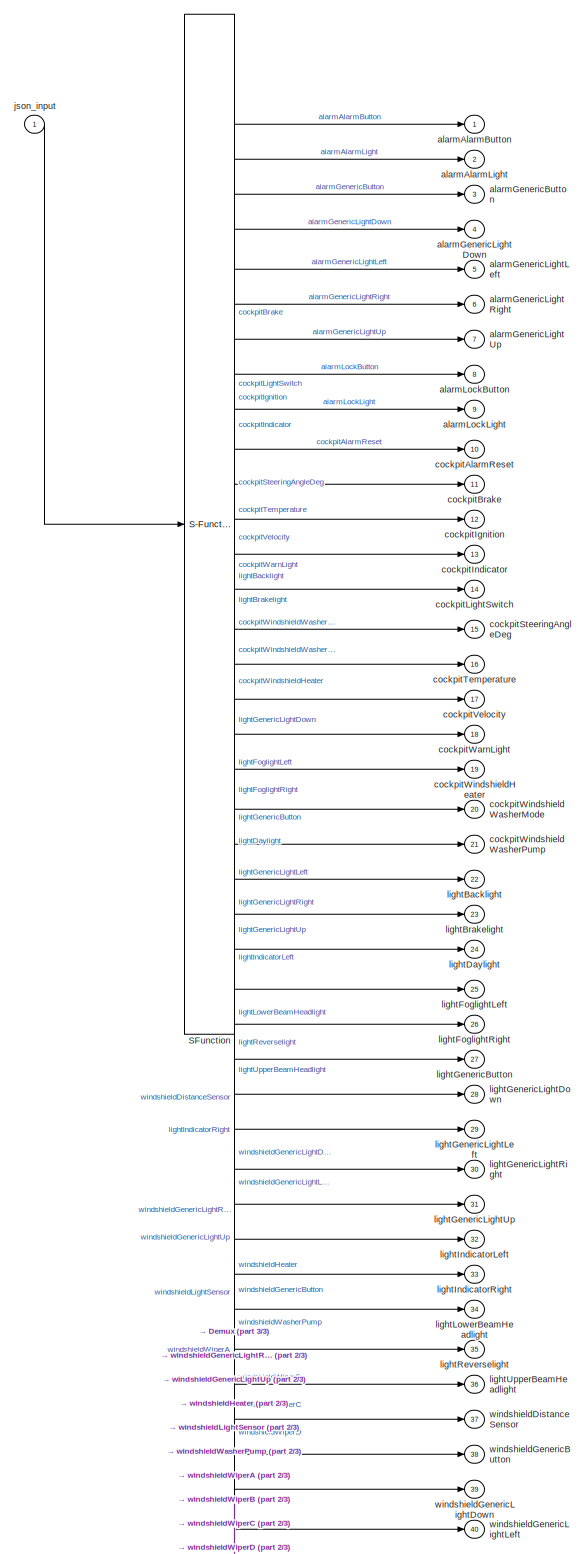
[diagram: MLF-VirtualPlatform Setup/Subsystem2/Triggered Subsystem/MATLAB Function - part 1/3, most of the canvas]
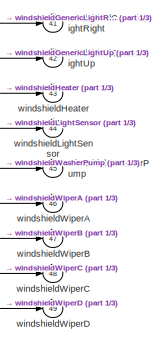
[diagram: MLF-VirtualPlatform Setup/Subsystem2/Triggered Subsystem/MATLAB Function - part 2/3, bottom right region]
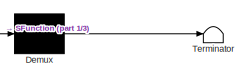
[diagram: MLF-VirtualPlatform Setup/Subsystem2/Triggered Subsystem/MATLAB Function - part 3/3, bottom center region]
BLOCK [SubSystem] MLF-VirtualPlatform Setup/Subsystem2/Triggered Subsystem/MATLAB Function
  ErrorFcn = Stateflow.Translate.translate
  PermitHierarchicalResolution = ExplicitOnly
  Ports = [1, 49]
  RequestExecContextInheritance = off
  SFBlockType = MATLAB Function
  TreatAsAtomicUnit = on
  Variant = off
BLOCK [Demux] MLF-VirtualPlatform Setup/Subsystem2/Triggered Subsystem/MATLAB Function/ Demux 
  Outputs = 1
  Ports = [1, 1]
BLOCK [S-Function] MLF-VirtualPlatform Setup/Subsystem2/Triggered Subsystem/MATLAB Function/ SFunction 
  EnableBusSupport = on
  FunctionName = sf_sfun
  PortCounts = [1 50]
  Ports = [1, 50]
  SFcnIsStateOwnerBlock = off
  SFunctionDeploymentMode = off
  Tag = Stateflow S-Function MBE_Simulation_04_Template_14_11_final 13
BLOCK [Terminator] MLF-VirtualPlatform Setup/Subsystem2/Triggered Subsystem/MATLAB Function/ Terminator 
BLOCK [Outport] MLF-VirtualPlatform Setup/Subsystem2/Triggered Subsystem/MATLAB Function/alarmAlarmButton
  IconDisplay = Port number
BLOCK [Outport] MLF-VirtualPlatform Setup/Subsystem2/Triggered Subsystem/MATLAB Function/alarmAlarmLight
  IconDisplay = Port number
  Port = 2
BLOCK [Outport] MLF-VirtualPlatform Setup/Subsystem2/Triggered Subsystem/MATLAB Function/alarmGenericButton
  IconDisplay = Port number
  Port = 3
BLOCK [Outport] MLF-VirtualPlatform Setup/Subsystem2/Triggered Subsystem/MATLAB Function/alarmGenericLightDown
  IconDisplay = Port number
  Port = 4
BLOCK [Outport] MLF-VirtualPlatform Setup/Subsystem2/Triggered Subsystem/MATLAB Function/alarmGenericLightLeft
  IconDisplay = Port number
  Port = 5
BLOCK [Outport] MLF-VirtualPlatform Setup/Subsystem2/Triggered Subsystem/MATLAB Function/alarmGenericLightRight
  IconDisplay = Port number
  Port = 6
BLOCK [Outport] MLF-VirtualPlatform Setup/Subsystem2/Triggered Subsystem/MATLAB Function/alarmGenericLightUp
  IconDisplay = Port number
  Port = 7
BLOCK [Outport] MLF-VirtualPlatform Setup/Subsystem2/Triggered Subsystem/MATLAB Function/alarmLockButton
  IconDisplay = Port number
  Port = 8
BLOCK [Outport] MLF-VirtualPlatform Setup/Subsystem2/Triggered Subsystem/MATLAB Function/alarmLockLight
  IconDisplay = Port number
  Port = 9
BLOCK [Outport] MLF-VirtualPlatform Setup/Subsystem2/Triggered Subsystem/MATLAB Function/cockpitAlarmReset
  IconDisplay = Port number
  Port = 10
BLOCK [Outport] MLF-VirtualPlatform Setup/Subsystem2/Triggered Subsystem/MATLAB Function/cockpitBrake
  IconDisplay = Port number
  Port = 11
BLOCK [Outport] MLF-VirtualPlatform Setup/Subsystem2/Triggered Subsystem/MATLAB Function/cockpitIgnition
  IconDisplay = Port number
  Port = 12
BLOCK [Outport] MLF-VirtualPlatform Setup/Subsystem2/Triggered Subsystem/MATLAB Function/cockpitIndicator
  IconDisplay = Port number
  Port = 13
BLOCK [Outport] MLF-VirtualPlatform Setup/Subsystem2/Triggered Subsystem/MATLAB Function/cockpitLightSwitch
  IconDisplay = Port number
  Port = 14
BLOCK [Outport] MLF-VirtualPlatform Setup/Subsystem2/Triggered Subsystem/MATLAB Function/cockpitSteeringAngleDeg
  IconDisplay = Port number
  Port = 15
BLOCK [Outport] MLF-VirtualPlatform Setup/Subsystem2/Triggered Subsystem/MATLAB Function/cockpitTemperature
  IconDisplay = Port number
  Port = 16
BLOCK [Outport] MLF-VirtualPlatform Setup/Subsystem2/Triggered Subsystem/MATLAB Function/cockpitVelocity
  IconDisplay = Port number
  Port = 17
BLOCK [Outport] MLF-VirtualPlatform Setup/Subsystem2/Triggered Subsystem/MATLAB Function/cockpitWarnLight
  IconDisplay = Port number
  Port = 18
BLOCK [Outport] MLF-VirtualPlatform Setup/Subsystem2/Triggered Subsystem/MATLAB Function/cockpitWindshieldHeater
  IconDisplay = Port number
  Port = 19
BLOCK [Outport] MLF-VirtualPlatform Setup/Subsystem2/Triggered Subsystem/MATLAB Function/cockpitWindshieldWasherMode
  IconDisplay = Port number
  Port = 20
BLOCK [Outport] MLF-VirtualPlatform Setup/Subsystem2/Triggered Subsystem/MATLAB Function/cockpitWindshieldWasherPump
  IconDisplay = Port number
  Port = 21
BLOCK [Inport] MLF-VirtualPlatform Setup/Subsystem2/Triggered Subsystem/MATLAB Function/json_input
  IconDisplay = Port number
BLOCK [Outport] MLF-VirtualPlatform Setup/Subsystem2/Triggered Subsystem/MATLAB Function/lightBacklight
  IconDisplay = Port number
  Port = 22
BLOCK [Outport] MLF-VirtualPlatform Setup/Subsystem2/Triggered Subsystem/MATLAB Function/lightBrakelight
  IconDisplay = Port number
  Port = 23
BLOCK [Outport] MLF-VirtualPlatform Setup/Subsystem2/Triggered Subsystem/MATLAB Function/lightDaylight
  IconDisplay = Port number
  Port = 24
BLOCK [Outport] MLF-VirtualPlatform Setup/Subsystem2/Triggered Subsystem/MATLAB Function/lightFoglightLeft
  IconDisplay = Port number
  Port = 25
BLOCK [Outport] MLF-VirtualPlatform Setup/Subsystem2/Triggered Subsystem/MATLAB Function/lightFoglightRight
  IconDisplay = Port number
  Port = 26
BLOCK [Outport] MLF-VirtualPlatform Setup/Subsystem2/Triggered Subsystem/MATLAB Function/lightGenericButton
  IconDisplay = Port number
  Port = 27
BLOCK [Outport] MLF-VirtualPlatform Setup/Subsystem2/Triggered Subsystem/MATLAB Function/lightGenericLightDown
  IconDisplay = Port number
  Port = 28
BLOCK [Outport] MLF-VirtualPlatform Setup/Subsystem2/Triggered Subsystem/MATLAB Function/lightGenericLightLeft
  IconDisplay = Port number
  Port = 29
BLOCK [Outport] MLF-VirtualPlatform Setup/Subsystem2/Triggered Subsystem/MATLAB Function/lightGenericLightRight
  IconDisplay = Port number
  Port = 30
BLOCK [Outport] MLF-VirtualPlatform Setup/Subsystem2/Triggered Subsystem/MATLAB Function/lightGenericLightUp
  IconDisplay = Port number
  Port = 31
BLOCK [Outport] MLF-VirtualPlatform Setup/Subsystem2/Triggered Subsystem/MATLAB Function/lightIndicatorLeft
  IconDisplay = Port number
  Port = 32
BLOCK [Outport] MLF-VirtualPlatform Setup/Subsystem2/Triggered Subsystem/MATLAB Function/lightIndicatorRight
  IconDisplay = Port number
  Port = 33
BLOCK [Outport] MLF-VirtualPlatform Setup/Subsystem2/Triggered Subsystem/MATLAB Function/lightLowerBeamHeadlight
  IconDisplay = Port number
  Port = 34
BLOCK [Outport] MLF-VirtualPlatform Setup/Subsystem2/Triggered Subsystem/MATLAB Function/lightReverselight
  IconDisplay = Port number
  Port = 35
BLOCK [Outport] MLF-VirtualPlatform Setup/Subsystem2/Triggered Subsystem/MATLAB Function/lightUpperBeamHeadlight
  IconDisplay = Port number
  Port = 36
BLOCK [Outport] MLF-VirtualPlatform Setup/Subsystem2/Triggered Subsystem/MATLAB Function/windshieldDistanceSensor
  IconDisplay = Port number
  Port = 37
BLOCK [Outport] MLF-VirtualPlatform Setup/Subsystem2/Triggered Subsystem/MATLAB Function/windshieldGenericButton
  IconDisplay = Port number
  Port = 38
BLOCK [Outport] MLF-VirtualPlatform Setup/Subsystem2/Triggered Subsystem/MATLAB Function/windshieldGenericLightDown
  IconDisplay = Port number
  Port = 39
BLOCK [Outport] MLF-VirtualPlatform Setup/Subsystem2/Triggered Subsystem/MATLAB Function/windshieldGenericLightLeft
  IconDisplay = Port number
  Port = 40
BLOCK [Outport] MLF-VirtualPlatform Setup/Subsystem2/Triggered Subsystem/MATLAB Function/windshieldGenericLightRight
  IconDisplay = Port number
  Port = 41
BLOCK [Outport] MLF-VirtualPlatform Setup/Subsystem2/Triggered Subsystem/MATLAB Function/windshieldGenericLightUp
  IconDisplay = Port number
  Port = 42
BLOCK [Outport] MLF-VirtualPlatform Setup/Subsystem2/Triggered Subsystem/MATLAB Function/windshieldHeater
  IconDisplay = Port number
  Port = 43
BLOCK [Outport] MLF-VirtualPlatform Setup/Subsystem2/Triggered Subsystem/MATLAB Function/windshieldLightSensor
  IconDisplay = Port number
  Port = 44
BLOCK [Outport] MLF-VirtualPlatform Setup/Subsystem2/Triggered Subsystem/MATLAB Function/windshieldWasherPump
  IconDisplay = Port number
  Port = 45
BLOCK [Outport] MLF-VirtualPlatform Setup/Subsystem2/Triggered Subsystem/MATLAB Function/windshieldWiperA
  IconDisplay = Port number
  Port = 46
BLOCK [Outport] MLF-VirtualPlatform Setup/Subsystem2/Triggered Subsystem/MATLAB Function/windshieldWiperB
  IconDisplay = Port number
  Port = 47
BLOCK [Outport] MLF-VirtualPlatform Setup/Subsystem2/Triggered Subsystem/MATLAB Function/windshieldWiperC
  IconDisplay = Port number
  Port = 48
BLOCK [Outport] MLF-VirtualPlatform Setup/Subsystem2/Triggered Subsystem/MATLAB Function/windshieldWiperD
  IconDisplay = Port number
  Port = 49
BLOCK [TriggerPort] MLF-VirtualPlatform Setup/Subsystem2/Triggered Subsystem/Trigger
  Ports = []
  StatesWhenEnabling = held
  VariantControl = Variant
BLOCK [Outport] MLF-VirtualPlatform Setup/Subsystem2/Triggered Subsystem/outputAlarmSignals
  IconDisplay = Port number
BLOCK [Reference] MLF-VirtualPlatform Setup/Subsystem2/UDP Receive  REF=instrumentlib/UDP Receive
  Ports = [0, 2]
  SourceBlock = instrumentlib/UDP Receive
  SourceProductBaseCode = IC
  SourceProductName = Instrument Control Toolbox
  SourceType = UDP Receive
BLOCK [Reference] Real-Time Pacer  REF=realtime_pacer_lib/Real-Time Pacer
  Ports = []
  SourceBlock = realtime_pacer_lib/Real-Time Pacer
  SourceType = RealTime_Pacer
BLOCK [SubSystem] SchlossAlarmBox
  Ports = [1, 1]
  RequestExecContextInheritance = off
  Variant = off
BLOCK [Inport] SchlossAlarmBox/CanBus_SA_In
  IconDisplay = Port number
BLOCK [Outport] SchlossAlarmBox/CanBus_SA_Out
  IconDisplay = Port number
BLOCK [SubSystem] SchlossAlarmBox/SA_Box_Applikation
  Ports = [7, 10]
  RequestExecContextInheritance = off
  Variant = off
BLOCK [Inport] SchlossAlarmBox/SA_Box_Applikation/AlarmButton_In
  IconDisplay = Port number
  Port = 3
BLOCK [Outport] SchlossAlarmBox/SA_Box_Applikation/AlarmZustand_Out
  IconDisplay = Port number
  Port = 6
BLOCK [SubSystem] SchlossAlarmBox/SA_Box_Applikation/CanCoder_Alarm_1
  Ports = [1, 2]
  RequestExecContextInheritance = off
  Variant = off
BLOCK [Inport] SchlossAlarmBox/SA_Box_Applikation/CanCoder_Alarm_1/AlarmZustand
  IconDisplay = Port number
BLOCK [Reference] SchlossAlarmBox/SA_Box_Applikation/CanCoder_Alarm_1/Bit Clear  REF=simulink/Logic and Bit
Operations/Bit Clear
  Ports = [1, 1]
  SourceBlock = simulink/Logic and Bit\nOperations/Bit Clear
  SourceProductBaseCode = SL
  SourceProductName = Simulink
  SourceType = Bit Clear
BLOCK [Reference] SchlossAlarmBox/SA_Box_Applikation/CanCoder_Alarm_1/Bit Set  REF=simulink/Logic and Bit
Operations/Bit Set
  Ports = [1, 1]
  SourceBlock = simulink/Logic and Bit\nOperations/Bit Set
  SourceProductBaseCode = SL
  SourceProductName = Simulink
  SourceType = Bit Set
BLOCK [Outport] SchlossAlarmBox/SA_Box_Applikation/CanCoder_Alarm_1/CanData_Alarm_1
  IconDisplay = Port number
BLOCK [Outport] SchlossAlarmBox/SA_Box_Applikation/CanCoder_Alarm_1/CanTrigger_Alarm_1
  IconDisplay = Port number
  Port = 2
BLOCK [DataTypeConversion] SchlossAlarmBox/SA_Box_Applikation/CanCoder_Alarm_1/Data Type Conversion
  OutDataTypeStr = int16
  RndMeth = Floor
  SaturateOnIntegerOverflow = off
BLOCK [Reference] SchlossAlarmBox/SA_Box_Applikation/CanCoder_Alarm_1/Detect Change  REF=simulink/Logic and Bit
Operations/Detect
Change
  Ports = [1, 1]
  SourceBlock = simulink/Logic and Bit\nOperations/Detect\nChange
  SourceProductBaseCode = SL
  SourceProductName = Simulink
  SourceType = Detect Change
BLOCK [Scope] SchlossAlarmBox/SA_Box_Applikation/CanCoder_Alarm_1/Scope
  NumInputPorts = 1
  Ports = [1]
  ScopeSpecificationString = Simulink.scopes.TimeScopeBlockCfg('CurrentConfiguration', extmgr.ConfigurationSet(extmgr.Configuration('Core','General UI',true),extmgr.Configuration('Core','Source UI',true),extmgr.Configuration('Sources','WiredSimulink',true,'DataLoggingVariableName','ScopeData1'),extmgr.Configuration('Visuals','Time Domain',true),extmgr.Configuration('Tools','Plot Navigation',true),extmgr.Configuration('Tools',...<+40ch>
BLOCK [Switch] SchlossAlarmBox/SA_Box_Applikation/CanCoder_Alarm_1/Switch
  Criteria = u2 ~= 0
  InputSameDT = off
  SaturateOnIntegerOverflow = off
  Threshold = 1
BLOCK [SubSystem] SchlossAlarmBox/SA_Box_Applikation/CanCoder_Schloss_1
  Ports = [1, 2]
  RequestExecContextInheritance = off
  Variant = off
BLOCK [Reference] SchlossAlarmBox/SA_Box_Applikation/CanCoder_Schloss_1/CAN Pack  REF=canmsglib/CAN Pack
  Ports = [1, 1]
  SourceBlock = canmsglib/CAN Pack
  SourceProductBaseCode = XP
  SourceProductName = Simulink Real-Time
  SourceType = CAN Pack
BLOCK [Reference] SchlossAlarmBox/SA_Box_Applikation/CanCoder_Schloss_1/CAN Pack1  REF=canmsglib/CAN Pack
  Ports = [1, 1]
  SourceBlock = canmsglib/CAN Pack
  SourceProductBaseCode = XP
  SourceProductName = Simulink Real-Time
  SourceType = CAN Pack
BLOCK [Reference] SchlossAlarmBox/SA_Box_Applikation/CanCoder_Schloss_1/CAN Unpack  REF=canmsglib/CAN Unpack
  Ports = [1, 1]
  SourceBlock = canmsglib/CAN Unpack
  SourceProductBaseCode = XP
  SourceProductName = Simulink Real-Time
  SourceType = CAN Unpack
BLOCK [Reference] SchlossAlarmBox/SA_Box_Applikation/CanCoder_Schloss_1/CAN Unpack1  REF=canmsglib/CAN Unpack
  Ports = [1, 1]
  SourceBlock = canmsglib/CAN Unpack
  SourceProductBaseCode = XP
  SourceProductName = Simulink Real-Time
  SourceType = CAN Unpack
BLOCK [Outport] SchlossAlarmBox/SA_Box_Applikation/CanCoder_Schloss_1/CanData_Schloss_1
  IconDisplay = Port number
BLOCK [Outport] SchlossAlarmBox/SA_Box_Applikation/CanCoder_Schloss_1/CanTrigger_Schloss_1
  IconDisplay = Port number
  Port = 2
BLOCK [Reference] SchlossAlarmBox/SA_Box_Applikation/CanCoder_Schloss_1/Detect Change  REF=simulink/Logic and Bit
Operations/Detect
Change
  Ports = [1, 1]
  SourceBlock = simulink/Logic and Bit\nOperations/Detect\nChange
  SourceProductBaseCode = SL
  SourceProductName = Simulink
  SourceType = Detect Change
BLOCK [Inport] SchlossAlarmBox/SA_Box_Applikation/CanCoder_Schloss_1/SchliessZustand
  IconDisplay = Port number
BLOCK [Outport] SchlossAlarmBox/SA_Box_Applikation/CanData_Alarm_1_Out
  IconDisplay = Port number
  Port = 7
BLOCK [Inport] SchlossAlarmBox/SA_Box_Applikation/CanData_Bremse_2_In
  IconDisplay = Port number
  Port = 6
BLOCK [Inport] SchlossAlarmBox/SA_Box_Applikation/CanData_Cockpit_3_In
  IconDisplay = Port number
  Port = 4
BLOCK [Outport] SchlossAlarmBox/SA_Box_Applikation/CanData_Schloss_1_Out
  IconDisplay = Port number
  Port = 9
BLOCK [SubSystem] SchlossAlarmBox/SA_Box_Applikation/CanDecoder_Bremse_2
  Ports = [1, 1]
  RequestExecContextInheritance = off
  Variant = off
BLOCK [Inport] SchlossAlarmBox/SA_Box_Applikation/CanDecoder_Bremse_2/CanData_Bremse_2
  IconDisplay = Port number
BLOCK [Reference] SchlossAlarmBox/SA_Box_Applikation/CanDecoder_Bremse_2/Extract Bits  REF=simulink/Logic and Bit
Operations/Extract Bits
  Ports = [1, 1]
  SourceBlock = simulink/Logic and Bit\nOperations/Extract Bits
  SourceProductBaseCode = SL
  SourceProductName = Simulink
  SourceType = Extract Bits
BLOCK [Outport] SchlossAlarmBox/SA_Box_Applikation/CanDecoder_Bremse_2/Geschwindigkeit
  IconDisplay = Port number
BLOCK [SubSystem] SchlossAlarmBox/SA_Box_Applikation/CanDecoder_Cockpit_3
  Ports = [1, 1]
  RequestExecContextInheritance = off
  Variant = off
BLOCK [Outport] SchlossAlarmBox/SA_Box_Applikation/CanDecoder_Cockpit_3/AlarmReset
  IconDisplay = Port number
BLOCK [Inport] SchlossAlarmBox/SA_Box_Applikation/CanDecoder_Cockpit_3/CanData_Cockpit_3
  IconDisplay = Port number
BLOCK [Reference] SchlossAlarmBox/SA_Box_Applikation/CanDecoder_Cockpit_3/Compare To Zero  REF=simulink/Logic and Bit
Operations/Compare
To Zero
  Ports = [1, 1]
  SourceBlock = simulink/Logic and Bit\nOperations/Compare\nTo Zero
  SourceProductBaseCode = SL
  SourceProductName = Simulink
  SourceType = Compare To Zero
BLOCK [Reference] SchlossAlarmBox/SA_Box_Applikation/CanDecoder_Cockpit_3/Extract Bits  REF=simulink/Logic and Bit
Operations/Extract Bits
  Ports = [1, 1]
  SourceBlock = simulink/Logic and Bit\nOperations/Extract Bits
  SourceProductBaseCode = SL
  SourceProductName = Simulink
  SourceType = Extract Bits
BLOCK [Outport] SchlossAlarmBox/SA_Box_Applikation/CanTrigger_Alarm_1_Out
  IconDisplay = Port number
  Port = 8
BLOCK [Inport] SchlossAlarmBox/SA_Box_Applikation/CanTrigger_Bremse_2_In
  IconDisplay = Port number
  Port = 7
BLOCK [Inport] SchlossAlarmBox/SA_Box_Applikation/CanTrigger_Cockpit_3_In
  IconDisplay = Port number
  Port = 5
BLOCK [Outport] SchlossAlarmBox/SA_Box_Applikation/CanTrigger_Schloss_1_Out
  IconDisplay = Port number
  Port = 10
BLOCK [SubSystem] SchlossAlarmBox/SA_Box_Applikation/Chart
  ErrorFcn = Stateflow.Translate.translate
  PermitHierarchicalResolution = ExplicitOnly
  Ports = [5, 3]
  RequestExecContextInheritance = off
  SFBlockType = Chart
  TreatAsAtomicUnit = on
  Variant = off
BLOCK [Demux] SchlossAlarmBox/SA_Box_Applikation/Chart/ Demux 
  Outputs = 1
  Ports = [1, 1]
BLOCK [S-Function] SchlossAlarmBox/SA_Box_Applikation/Chart/ SFunction 
  EnableBusSupport = on
  FunctionName = sf_sfun
  PortCounts = [5 4]
  Ports = [5, 4]
  SFcnIsStateOwnerBlock = off
  SFunctionDeploymentMode = off
  Tag = Stateflow S-Function MBE_Simulation_04_Template_14_11_final 2
BLOCK [Terminator] SchlossAlarmBox/SA_Box_Applikation/Chart/ Terminator 
BLOCK [Inport] SchlossAlarmBox/SA_Box_Applikation/Chart/AlarmButton
  IconDisplay = Port number
  Port = 2
BLOCK [Outport] SchlossAlarmBox/SA_Box_Applikation/Chart/AlarmLED
  IconDisplay = Port number
  Port = 3
BLOCK [Inport] SchlossAlarmBox/SA_Box_Applikation/Chart/AlarmReset
  IconDisplay = Port number
  Port = 3
BLOCK [Inport] SchlossAlarmBox/SA_Box_Applikation/Chart/AlarmResetTriggered
  IconDisplay = Port number
  Port = 5
BLOCK [Outport] SchlossAlarmBox/SA_Box_Applikation/Chart/AlarmZustand
  IconDisplay = Port number
  Port = 2
BLOCK [Inport] SchlossAlarmBox/SA_Box_Applikation/Chart/Geschwindigkeit
  IconDisplay = Port number
  Port = 4
BLOCK [Inport] SchlossAlarmBox/SA_Box_Applikation/Chart/SchliessButton
  IconDisplay = Port number
BLOCK [Outport] SchlossAlarmBox/SA_Box_Applikation/Chart/SchliessZustand
  IconDisplay = Port number
BLOCK [Inport] SchlossAlarmBox/SA_Box_Applikation/GenericButton_In
  IconDisplay = Port number
BLOCK [Outport] SchlossAlarmBox/SA_Box_Applikation/GenericLedLinks_Out
  IconDisplay = Port number
  Port = 2
BLOCK [Outport] SchlossAlarmBox/SA_Box_Applikation/GenericLedOben_Out
  IconDisplay = Port number
  Port = 4
BLOCK [Outport] SchlossAlarmBox/SA_Box_Applikation/GenericLedRechts_Out
  IconDisplay = Port number
  Port = 3
BLOCK [Outport] SchlossAlarmBox/SA_Box_Applikation/GenericLedUnten_Out
  IconDisplay = Port number
BLOCK [SubSystem] SchlossAlarmBox/SA_Box_Applikation/Generic_Lights_Example
  ErrorFcn = Stateflow.Translate.translate
  PermitHierarchicalResolution = ExplicitOnly
  Ports = [1, 4]
  RequestExecContextInheritance = off
  SFBlockType = Chart
  TreatAsAtomicUnit = on
  Variant = off
BLOCK [Demux] SchlossAlarmBox/SA_Box_Applikation/Generic_Lights_Example/ Demux 
  Outputs = 1
  Ports = [1, 1]
BLOCK [S-Function] SchlossAlarmBox/SA_Box_Applikation/Generic_Lights_Example/ SFunction 
  EnableBusSupport = on
  FunctionName = sf_sfun
  PortCounts = [1 5]
  Ports = [1, 5]
  SFcnIsStateOwnerBlock = off
  SFunctionDeploymentMode = off
  Tag = Stateflow S-Function MBE_Simulation_04_Template_14_11_final 10
BLOCK [Terminator] SchlossAlarmBox/SA_Box_Applikation/Generic_Lights_Example/ Terminator 
BLOCK [Inport] SchlossAlarmBox/SA_Box_Applikation/Generic_Lights_Example/button
  IconDisplay = Port number
BLOCK [Outport] SchlossAlarmBox/SA_Box_Applikation/Generic_Lights_Example/down
  IconDisplay = Port number
BLOCK [Outport] SchlossAlarmBox/SA_Box_Applikation/Generic_Lights_Example/left
  IconDisplay = Port number
  Port = 2
BLOCK [Outport] SchlossAlarmBox/SA_Box_Applikation/Generic_Lights_Example/right
  IconDisplay = Port number
  Port = 3
BLOCK [Outport] SchlossAlarmBox/SA_Box_Applikation/Generic_Lights_Example/up
  IconDisplay = Port number
  Port = 4
BLOCK [Inport] SchlossAlarmBox/SA_Box_Applikation/SchliessButton_In
  IconDisplay = Port number
  Port = 2
BLOCK [Outport] SchlossAlarmBox/SA_Box_Applikation/SchliessZustand_Out
  IconDisplay = Port number
  Port = 5
BLOCK [Terminator] SchlossAlarmBox/SA_Box_Applikation/Terminator1
BLOCK [SubSystem] SchlossAlarmBox/SA_Box_Simulation_Input
  Ports = [1, 7]
  RequestExecContextInheritance = off
  Variant = off
BLOCK [Outport] SchlossAlarmBox/SA_Box_Simulation_Input/AlarmButton_Out
  IconDisplay = Port number
  Port = 3
BLOCK [SubSystem] SchlossAlarmBox/SA_Box_Simulation_Input/CanBus_Input
  Ports = [1, 2]
  RequestExecContextInheritance = off
  Variant = off
BLOCK [BusSelector] SchlossAlarmBox/SA_Box_Simulation_Input/CanBus_Input/Bus Selector2
  OutputAsBus = off
  OutputSignals = CanBus_Cockpit.CanMsg_Cockpit_3,CanBus_Cockpit.CanMsg_Bremse_2
  Ports = [1, 2]
BLOCK [Inport] SchlossAlarmBox/SA_Box_Simulation_Input/CanBus_Input/CanBus_SA_In
  IconDisplay = Port number
BLOCK [Outport] SchlossAlarmBox/SA_Box_Simulation_Input/CanBus_Input/CanMsg_Bremse_2_Out
  IconDisplay = Port number
  Port = 2
BLOCK [Outport] SchlossAlarmBox/SA_Box_Simulation_Input/CanBus_Input/CanMsg_Cockpit_3_Out
  IconDisplay = Port number
BLOCK [Inport] SchlossAlarmBox/SA_Box_Simulation_Input/CanBus_SA_In
  IconDisplay = Port number
BLOCK [Outport] SchlossAlarmBox/SA_Box_Simulation_Input/CanData_Bremse_2_Out
  IconDisplay = Port number
  Port = 6
BLOCK [Outport] SchlossAlarmBox/SA_Box_Simulation_Input/CanData_Cockpit_3_Out
  IconDisplay = Port number
  Port = 4
BLOCK [SubSystem] SchlossAlarmBox/SA_Box_Simulation_Input/CanReceive_Bremse_2
  Ports = [1, 2]
  RequestExecContextInheritance = off
  Variant = off
BLOCK [BusSelector] SchlossAlarmBox/SA_Box_Simulation_Input/CanReceive_Bremse_2/Bus Selector1
  OutputAsBus = off
  OutputSignals = CanData_Bremse_2,CanTrigger_Bremse_2
  Ports = [1, 2]
BLOCK [Outport] SchlossAlarmBox/SA_Box_Simulation_Input/CanReceive_Bremse_2/CanData_Bremse_2_Out
  IconDisplay = Port number
BLOCK [Inport] SchlossAlarmBox/SA_Box_Simulation_Input/CanReceive_Bremse_2/CanMsg_Bremse_2_In
  IconDisplay = Port number
BLOCK [Outport] SchlossAlarmBox/SA_Box_Simulation_Input/CanReceive_Bremse_2/CanTrigger_Bremse_2_Out
  IconDisplay = Port number
  Port = 2
BLOCK [Reference] SchlossAlarmBox/SA_Box_Simulation_Input/CanReceive_Bremse_2/Detect Change4  REF=simulink/Logic and Bit
Operations/Detect
Change
  Ports = [1, 1]
  SourceBlock = simulink/Logic and Bit\nOperations/Detect\nChange
  SourceProductBaseCode = SL
  SourceProductName = Simulink
  SourceType = Detect Change
BLOCK [Terminator] SchlossAlarmBox/SA_Box_Simulation_Input/CanReceive_Bremse_2/Terminator12
BLOCK [SubSystem] SchlossAlarmBox/SA_Box_Simulation_Input/CanReceive_Cockpit_3
  Ports = [1, 2]
  RequestExecContextInheritance = off
  Variant = off
BLOCK [BusSelector] SchlossAlarmBox/SA_Box_Simulation_Input/CanReceive_Cockpit_3/Bus Selector
  OutputAsBus = off
  OutputSignals = CanData_Cockpit_3,CanTrigger_Cockpit_3
  Ports = [1, 2]
BLOCK [Outport] SchlossAlarmBox/SA_Box_Simulation_Input/CanReceive_Cockpit_3/CanData_Cockpit_3_Out
  IconDisplay = Port number
BLOCK [Inport] SchlossAlarmBox/SA_Box_Simulation_Input/CanReceive_Cockpit_3/CanMsg_Cockpit_3_In
  IconDisplay = Port number
BLOCK [Outport] SchlossAlarmBox/SA_Box_Simulation_Input/CanReceive_Cockpit_3/CanTrigger_Cockpit_3_Out
  IconDisplay = Port number
  Port = 2
BLOCK [Reference] SchlossAlarmBox/SA_Box_Simulation_Input/CanReceive_Cockpit_3/Detect Change4  REF=simulink/Logic and Bit
Operations/Detect
Change
  Ports = [1, 1]
  SourceBlock = simulink/Logic and Bit\nOperations/Detect\nChange
  SourceProductBaseCode = SL
  SourceProductName = Simulink
  SourceType = Detect Change
BLOCK [Terminator] SchlossAlarmBox/SA_Box_Simulation_Input/CanReceive_Cockpit_3/Terminator11
BLOCK [Outport] SchlossAlarmBox/SA_Box_Simulation_Input/CanTrigger_Bremse_2_Out
  IconDisplay = Port number
  Port = 7
BLOCK [Outport] SchlossAlarmBox/SA_Box_Simulation_Input/CanTrigger_Cockpit_3_Out
  IconDisplay = Port number
  Port = 5
BLOCK [Outport] SchlossAlarmBox/SA_Box_Simulation_Input/GenericButton_Out
  IconDisplay = Port number
BLOCK [SubSystem] SchlossAlarmBox/SA_Box_Simulation_Input/PanelInput_SchlossAlarmBox
  Ports = [0, 3]
  RequestExecContextInheritance = off
  Variant = off
BLOCK [Constant] SchlossAlarmBox/SA_Box_Simulation_Input/PanelInput_SchlossAlarmBox/AlarmButton
  OutDataTypeStr = uint8
  Value = 0
BLOCK [Outport] SchlossAlarmBox/SA_Box_Simulation_Input/PanelInput_SchlossAlarmBox/AlarmButton_Out
  IconDisplay = Port number
  Port = 3
BLOCK [BusSelector] SchlossAlarmBox/SA_Box_Simulation_Input/PanelInput_SchlossAlarmBox/Bus Selector
  OutputAsBus = off
  OutputSignals = alarmGenericButton,alarmLockButton,alarmAlarmButton
  Ports = [1, 3]
BLOCK [From] SchlossAlarmBox/SA_Box_Simulation_Input/PanelInput_SchlossAlarmBox/From
  GotoTag = alarmInputBus
  TagVisibility = global
BLOCK [From] SchlossAlarmBox/SA_Box_Simulation_Input/PanelInput_SchlossAlarmBox/From1
  GotoTag = SwitchGUI
  TagVisibility = global
BLOCK [Outport] SchlossAlarmBox/SA_Box_Simulation_Input/PanelInput_SchlossAlarmBox/GenericButton_Out
  IconDisplay = Port number
BLOCK [Constant] SchlossAlarmBox/SA_Box_Simulation_Input/PanelInput_SchlossAlarmBox/SchliessButton
  OutDataTypeStr = uint8
  Value = 0
BLOCK [Outport] SchlossAlarmBox/SA_Box_Simulation_Input/PanelInput_SchlossAlarmBox/SchliessButton_Out
  IconDisplay = Port number
  Port = 2
BLOCK [Switch] SchlossAlarmBox/SA_Box_Simulation_Input/PanelInput_SchlossAlarmBox/Switch
  Criteria = u2 > Threshold
  InputSameDT = off
  SaturateOnIntegerOverflow = off
BLOCK [Switch] SchlossAlarmBox/SA_Box_Simulation_Input/PanelInput_SchlossAlarmBox/Switch1
  Criteria = u2 > Threshold
  InputSameDT = off
  SaturateOnIntegerOverflow = off
BLOCK [Outport] SchlossAlarmBox/SA_Box_Simulation_Input/SchliessButton_Out
  IconDisplay = Port number
  Port = 2
BLOCK [SubSystem] SchlossAlarmBox/SA_Box_Simulation_Output
  Ports = [10, 1]
  RequestExecContextInheritance = off
  Variant = off
BLOCK [Inport] SchlossAlarmBox/SA_Box_Simulation_Output/AlarmZustand_LED_In
  IconDisplay = Port number
  Port = 6
BLOCK [BusCreator] SchlossAlarmBox/SA_Box_Simulation_Output/Bus Creator
  DisplayOption = bar
  InheritFromInputs = on
  Inputs = 6
  Ports = [6, 1]
BLOCK [SubSystem] SchlossAlarmBox/SA_Box_Simulation_Output/CanBus_Output
  Ports = [2, 1]
  RequestExecContextInheritance = off
  Variant = off
BLOCK [BusCreator] SchlossAlarmBox/SA_Box_Simulation_Output/CanBus_Output/Bus Creator1
  DisplayOption = bar
  InheritFromInputs = on
  Inputs = 2
  Ports = [2, 1]
BLOCK [Outport] SchlossAlarmBox/SA_Box_Simulation_Output/CanBus_Output/CanBus_SA_Out
  IconDisplay = Port number
BLOCK [Inport] SchlossAlarmBox/SA_Box_Simulation_Output/CanBus_Output/CanMsg_Alarm_1_In
  IconDisplay = Port number
BLOCK [Inport] SchlossAlarmBox/SA_Box_Simulation_Output/CanBus_Output/CanMsg_Schloss_1_In
  IconDisplay = Port number
  Port = 2
BLOCK [Outport] SchlossAlarmBox/SA_Box_Simulation_Output/CanBus_SA_Out
  IconDisplay = Port number
BLOCK [Inport] SchlossAlarmBox/SA_Box_Simulation_Output/CanData_Alarm_1_In
  IconDisplay = Port number
  Port = 7
BLOCK [Inport] SchlossAlarmBox/SA_Box_Simulation_Output/CanData_Schloss_1_In
  IconDisplay = Port number
  Port = 9
BLOCK [SubSystem] SchlossAlarmBox/SA_Box_Simulation_Output/CanTransmit_Alarm_1
  Ports = [2, 1]
  RequestExecContextInheritance = off
  Variant = off
BLOCK [BusCreator] SchlossAlarmBox/SA_Box_Simulation_Output/CanTransmit_Alarm_1/Bus Creator
  DisplayOption = bar
  InheritFromInputs = on
  Inputs = 2
  Ports = [2, 1]
BLOCK [Inport] SchlossAlarmBox/SA_Box_Simulation_Output/CanTransmit_Alarm_1/CanData_Alarm_1_In
  IconDisplay = Port number
BLOCK [Outport] SchlossAlarmBox/SA_Box_Simulation_Output/CanTransmit_Alarm_1/CanMsg_Alarm_1_Out
  IconDisplay = Port number
BLOCK [Inport] SchlossAlarmBox/SA_Box_Simulation_Output/CanTransmit_Alarm_1/CanTrigger_Alarm_1_In
  IconDisplay = Port number
  Port = 2
BLOCK [SubSystem] SchlossAlarmBox/SA_Box_Simulation_Output/CanTransmit_Schloss_1
  Ports = [2, 1]
  RequestExecContextInheritance = off
  Variant = off
BLOCK [BusCreator] SchlossAlarmBox/SA_Box_Simulation_Output/CanTransmit_Schloss_1/Bus Creator2
  DisplayOption = bar
  InheritFromInputs = on
  Inputs = 2
  Ports = [2, 1]
BLOCK [Inport] SchlossAlarmBox/SA_Box_Simulation_Output/CanTransmit_Schloss_1/CanData_Schloss_1_In
  IconDisplay = Port number
BLOCK [Outport] SchlossAlarmBox/SA_Box_Simulation_Output/CanTransmit_Schloss_1/CanMsg_Schloss_1_Out
  IconDisplay = Port number
BLOCK [Inport] SchlossAlarmBox/SA_Box_Simulation_Output/CanTransmit_Schloss_1/CanTrigger_Schloss_1_In
  IconDisplay = Port number
  Port = 2
BLOCK [Inport] SchlossAlarmBox/SA_Box_Simulation_Output/CanTrigger_Alarm_1_In
  IconDisplay = Port number
  Port = 8
BLOCK [Inport] SchlossAlarmBox/SA_Box_Simulation_Output/CanTrigger_Schloss_1_In
  IconDisplay = Port number
  Port = 10
BLOCK [Inport] SchlossAlarmBox/SA_Box_Simulation_Output/GenericLedLinks_LED_In
  IconDisplay = Port number
  Port = 2
BLOCK [Inport] SchlossAlarmBox/SA_Box_Simulation_Output/GenericLedOben_LED_In
  IconDisplay = Port number
  Port = 4
BLOCK [Inport] SchlossAlarmBox/SA_Box_Simulation_Output/GenericLedRechts_LED_In
  IconDisplay = Port number
  Port = 3
BLOCK [Inport] SchlossAlarmBox/SA_Box_Simulation_Output/GenericLedUnten_LED_In
  IconDisplay = Port number
BLOCK [Goto] SchlossAlarmBox/SA_Box_Simulation_Output/Goto
  GotoTag = alarmOutputBus
  TagVisibility = global
BLOCK [Inport] SchlossAlarmBox/SA_Box_Simulation_Output/SchliessZustand_LED_In
  IconDisplay = Port number
  Port = 5
BLOCK [SubSystem] SchlossAlarmBox/SA_Box_Simulation_Output/SchlossAlarmLEDs
  Ports = [2]
  RequestExecContextInheritance = off
  Variant = off
BLOCK [Inport] SchlossAlarmBox/SA_Box_Simulation_Output/SchlossAlarmLEDs/Alarm_LED
  IconDisplay = Port number
  Port = 2
BLOCK [Inport] SchlossAlarmBox/SA_Box_Simulation_Output/SchlossAlarmLEDs/Schloss_LED
  IconDisplay = Port number
BLOCK [Terminator] SchlossAlarmBox/SA_Box_Simulation_Output/SchlossAlarmLEDs/Terminator
BLOCK [Terminator] SchlossAlarmBox/SA_Box_Simulation_Output/SchlossAlarmLEDs/Terminator1
BLOCK [SubSystem] Slider Switch
  DialogController = hmiCreateDDGDialog
  IsWebBlock = on
  Ports = []
  RequestExecContextInheritance = off
  Variant = off
BLOCK [SubSystem] WischerSensorBox
  Ports = [1, 1]
  RequestExecContextInheritance = off
  Variant = off
BLOCK [Inport] WischerSensorBox/CanBus_WS_In
  IconDisplay = Port number
BLOCK [Outport] WischerSensorBox/CanBus_WS_Out
  IconDisplay = Port number
BLOCK [SubSystem] WischerSensorBox/WS_Box_Applikation
  Ports = [9, 12]
  RequestExecContextInheritance = off
  Variant = off
BLOCK [SubSystem] WischerSensorBox/WS_Box_Applikation/CanCoder_Sensor_1
  Ports = [2, 1]
  RequestExecContextInheritance = off
  Variant = off
BLOCK [Lookup_n-D] WischerSensorBox/WS_Box_Applikation/CanCoder_Sensor_1/1-D Lookup Table
  BreakpointsForDimension1 = [310,3800]
  IndexSearchMethod = Linear search
  InternalRulePriority = Speed
  NumberOfTableDimensions = 1
  Ports = [1, 1]
  RndMeth = Simplest
  Table = [500,0]
BLOCK [Reference] WischerSensorBox/WS_Box_Applikation/CanCoder_Sensor_1/Bit Shift  REF=hdlsllib/Logic and Bit
Operations/Bit Shift
  Ports = [1, 1]
  SourceBlock = hdlsllib/Logic and Bit\nOperations/Bit Shift
  SourceProductBaseCode = SL
  SourceProductName = Simulink
  SourceType = Bit Shift
BLOCK [Reference] WischerSensorBox/WS_Box_Applikation/CanCoder_Sensor_1/Bitwise Operator  REF=simulink/Logic and Bit
Operations/Bitwise
Operator
  Ports = [2, 1]
  SourceBlock = simulink/Logic and Bit\nOperations/Bitwise\nOperator
  SourceProductBaseCode = SL
  SourceProductName = Simulink
  SourceType = Bitwise Operator
BLOCK [Outport] WischerSensorBox/WS_Box_Applikation/CanCoder_Sensor_1/CanData_Sensor_1
  IconDisplay = Port number
BLOCK [DataTypeConversion] WischerSensorBox/WS_Box_Applikation/CanCoder_Sensor_1/Cast To Double
  OutDataTypeStr = double
  RndMeth = Floor
  SaturateOnIntegerOverflow = off
BLOCK [DataTypeConversion] WischerSensorBox/WS_Box_Applikation/CanCoder_Sensor_1/Data Type Conversion1
  OutDataTypeStr = uint16
  RndMeth = Floor
  SaturateOnIntegerOverflow = off
BLOCK [DataTypeConversion] WischerSensorBox/WS_Box_Applikation/CanCoder_Sensor_1/Data Type Conversion2
  OutDataTypeStr = uint16
  RndMeth = Floor
  SaturateOnIntegerOverflow = off
BLOCK [Inport] WischerSensorBox/WS_Box_Applikation/CanCoder_Sensor_1/Distanzsensor_In
  IconDisplay = Port number
  Port = 2
BLOCK [Inport] WischerSensorBox/WS_Box_Applikation/CanCoder_Sensor_1/Lichtsensor_In
  IconDisplay = Port number
BLOCK [Inport] WischerSensorBox/WS_Box_Applikation/CanData_Bremse_2_In
  IconDisplay = Port number
  Port = 8
BLOCK [Inport] WischerSensorBox/WS_Box_Applikation/CanData_Cockpit_2_In
  IconDisplay = Port number
  Port = 4
BLOCK [Inport] WischerSensorBox/WS_Box_Applikation/CanData_Schloss_1_In
  IconDisplay = Port number
  Port = 6
BLOCK [Outport] WischerSensorBox/WS_Box_Applikation/CanData_Sensor_1_Out
  IconDisplay = Port number
  Port = 5
BLOCK [SubSystem] WischerSensorBox/WS_Box_Applikation/CanDecoder_Cockpit_2
  Ports = [1, 9]
  RequestExecContextInheritance = off
  Variant = off
BLOCK [Sum] WischerSensorBox/WS_Box_Applikation/CanDecoder_Cockpit_2/Add
  InputSameDT = off
  OutDataTypeStr = Inherit: Inherit via internal rule
  Ports = [2, 1]
  SaturateOnIntegerOverflow = off
BLOCK [Inport] WischerSensorBox/WS_Box_Applikation/CanDecoder_Cockpit_2/CanData_Cockpit_2
  IconDisplay = Port number
BLOCK [Reference] WischerSensorBox/WS_Box_Applikation/CanDecoder_Cockpit_2/Compare To Constant1  REF=simulink/Logic and Bit
Operations/Compare
To Constant
  Ports = [1, 1]
  SourceBlock = simulink/Logic and Bit\nOperations/Compare\nTo Constant
  SourceProductBaseCode = SL
  SourceProductName = Simulink
  SourceType = Compare To Constant
BLOCK [Reference] WischerSensorBox/WS_Box_Applikation/CanDecoder_Cockpit_2/Compare To Constant2  REF=simulink/Logic and Bit
Operations/Compare
To Constant
  Ports = [1, 1]
  SourceBlock = simulink/Logic and Bit\nOperations/Compare\nTo Constant
  SourceProductBaseCode = SL
  SourceProductName = Simulink
  SourceType = Compare To Constant
BLOCK [Reference] WischerSensorBox/WS_Box_Applikation/CanDecoder_Cockpit_2/Compare To Constant3  REF=simulink/Logic and Bit
Operations/Compare
To Constant
  Ports = [1, 1]
  SourceBlock = simulink/Logic and Bit\nOperations/Compare\nTo Constant
  SourceProductBaseCode = SL
  SourceProductName = Simulink
  SourceType = Compare To Constant
BLOCK [Reference] WischerSensorBox/WS_Box_Applikation/CanDecoder_Cockpit_2/Compare To Constant4  REF=simulink/Logic and Bit
Operations/Compare
To Constant
  Ports = [1, 1]
  SourceBlock = simulink/Logic and Bit\nOperations/Compare\nTo Constant
  SourceProductBaseCode = SL
  SourceProductName = Simulink
  SourceType = Compare To Constant
BLOCK [Reference] WischerSensorBox/WS_Box_Applikation/CanDecoder_Cockpit_2/Compare To Constant5  REF=simulink/Logic and Bit
Operations/Compare
To Constant
  Ports = [1, 1]
  SourceBlock = simulink/Logic and Bit\nOperations/Compare\nTo Constant
  SourceProductBaseCode = SL
  SourceProductName = Simulink
  SourceType = Compare To Constant
BLOCK [Reference] WischerSensorBox/WS_Box_Applikation/CanDecoder_Cockpit_2/Compare To Constant6  REF=simulink/Logic and Bit
Operations/Compare
To Constant
  Ports = [1, 1]
  SourceBlock = simulink/Logic and Bit\nOperations/Compare\nTo Constant
  SourceProductBaseCode = SL
  SourceProductName = Simulink
  SourceType = Compare To Constant
BLOCK [Reference] WischerSensorBox/WS_Box_Applikation/CanDecoder_Cockpit_2/Compare To Constant7  REF=simulink/Logic and Bit
Operations/Compare
To Constant
  Ports = [1, 1]
  SourceBlock = simulink/Logic and Bit\nOperations/Compare\nTo Constant
  SourceProductBaseCode = SL
  SourceProductName = Simulink
  SourceType = Compare To Constant
BLOCK [Reference] WischerSensorBox/WS_Box_Applikation/CanDecoder_Cockpit_2/Compare To Constant8  REF=simulink/Logic and Bit
Operations/Compare
To Constant
  Ports = [1, 1]
  SourceBlock = simulink/Logic and Bit\nOperations/Compare\nTo Constant
  SourceProductBaseCode = SL
  SourceProductName = Simulink
  SourceType = Compare To Constant
BLOCK [DataTypeConversion] WischerSensorBox/WS_Box_Applikation/CanDecoder_Cockpit_2/Data Type Conversion
  OutDataTypeStr = int16
  RndMeth = Floor
  SaturateOnIntegerOverflow = off
BLOCK [Reference] WischerSensorBox/WS_Box_Applikation/CanDecoder_Cockpit_2/Extract Bits1  REF=simulink/Logic and Bit
Operations/Extract Bits
  Ports = [1, 1]
  SourceBlock = simulink/Logic and Bit\nOperations/Extract Bits
  SourceProductBaseCode = SL
  SourceProductName = Simulink
  SourceType = Extract Bits
BLOCK [Reference] WischerSensorBox/WS_Box_Applikation/CanDecoder_Cockpit_2/Extract Bits2  REF=simulink/Logic and Bit
Operations/Extract Bits
  Ports = [1, 1]
  SourceBlock = simulink/Logic and Bit\nOperations/Extract Bits
  SourceProductBaseCode = SL
  SourceProductName = Simulink
  SourceType = Extract Bits
BLOCK [Reference] WischerSensorBox/WS_Box_Applikation/CanDecoder_Cockpit_2/Extract Bits3  REF=simulink/Logic and Bit
Operations/Extract Bits
  Ports = [1, 1]
  SourceBlock = simulink/Logic and Bit\nOperations/Extract Bits
  SourceProductBaseCode = SL
  SourceProductName = Simulink
  SourceType = Extract Bits
BLOCK [Reference] WischerSensorBox/WS_Box_Applikation/CanDecoder_Cockpit_2/Extract Bits4  REF=simulink/Logic and Bit
Operations/Extract Bits
  Ports = [1, 1]
  SourceBlock = simulink/Logic and Bit\nOperations/Extract Bits
  SourceProductBaseCode = SL
  SourceProductName = Simulink
  SourceType = Extract Bits
BLOCK [Constant] WischerSensorBox/WS_Box_Applikation/CanDecoder_Cockpit_2/Offset
  Value = 20
BLOCK [Outport] WischerSensorBox/WS_Box_Applikation/CanDecoder_Cockpit_2/Scheibenheizung
  IconDisplay = Port number
  Port = 7
BLOCK [Outport] WischerSensorBox/WS_Box_Applikation/CanDecoder_Cockpit_2/Scheibenheizung_Auto
  IconDisplay = Port number
  Port = 8
BLOCK [Outport] WischerSensorBox/WS_Box_Applikation/CanDecoder_Cockpit_2/Temperatur
  IconDisplay = Port number
  Port = 9
BLOCK [Outport] WischerSensorBox/WS_Box_Applikation/CanDecoder_Cockpit_2/WischWasch
  IconDisplay = Port number
  Port = 6
BLOCK [Outport] WischerSensorBox/WS_Box_Applikation/CanDecoder_Cockpit_2/Wischer_Dauer_1
  IconDisplay = Port number
  Port = 4
BLOCK [Outport] WischerSensorBox/WS_Box_Applikation/CanDecoder_Cockpit_2/Wischer_Dauer_2
  IconDisplay = Port number
  Port = 5
BLOCK [Outport] WischerSensorBox/WS_Box_Applikation/CanDecoder_Cockpit_2/Wischer_Intervall_1
  IconDisplay = Port number
  Port = 2
BLOCK [Outport] WischerSensorBox/WS_Box_Applikation/CanDecoder_Cockpit_2/Wischer_Intervall_2
  IconDisplay = Port number
  Port = 3
BLOCK [Outport] WischerSensorBox/WS_Box_Applikation/CanDecoder_Cockpit_2/Wischer_Tipp
  IconDisplay = Port number
BLOCK [Inport] WischerSensorBox/WS_Box_Applikation/CanTrigger_Bremse_2_In
  IconDisplay = Port number
  Port = 9
BLOCK [Inport] WischerSensorBox/WS_Box_Applikation/CanTrigger_Cockpit_2_In
  IconDisplay = Port number
  Port = 5
BLOCK [Inport] WischerSensorBox/WS_Box_Applikation/CanTrigger_Schloss_1_In
  IconDisplay = Port number
  Port = 7
BLOCK [Outport] WischerSensorBox/WS_Box_Applikation/CanTrigger_Sensor_1_Out
  IconDisplay = Port number
  Port = 6
BLOCK [Inport] WischerSensorBox/WS_Box_Applikation/Distanzsensor_In
  IconDisplay = Port number
  Port = 3
BLOCK [Inport] WischerSensorBox/WS_Box_Applikation/GenericButton_In
  IconDisplay = Port number
BLOCK [Outport] WischerSensorBox/WS_Box_Applikation/GenericLedLinks_Out
  IconDisplay = Port number
  Port = 2
BLOCK [Outport] WischerSensorBox/WS_Box_Applikation/GenericLedOben_Out
  IconDisplay = Port number
  Port = 4
BLOCK [Outport] WischerSensorBox/WS_Box_Applikation/GenericLedRechts_Out
  IconDisplay = Port number
  Port = 3
BLOCK [Outport] WischerSensorBox/WS_Box_Applikation/GenericLedUnten_Out
  IconDisplay = Port number
BLOCK [SubSystem] WischerSensorBox/WS_Box_Applikation/Generic_Lights_Example
  ErrorFcn = Stateflow.Translate.translate
  PermitHierarchicalResolution = ExplicitOnly
  Ports = [1, 4]
  RequestExecContextInheritance = off
  SFBlockType = Chart
  TreatAsAtomicUnit = on
  Variant = off
BLOCK [Demux] WischerSensorBox/WS_Box_Applikation/Generic_Lights_Example/ Demux 
  Outputs = 1
  Ports = [1, 1]
BLOCK [S-Function] WischerSensorBox/WS_Box_Applikation/Generic_Lights_Example/ SFunction 
  EnableBusSupport = on
  FunctionName = sf_sfun
  PortCounts = [1 5]
  Ports = [1, 5]
  SFcnIsStateOwnerBlock = off
  SFunctionDeploymentMode = off
  Tag = Stateflow S-Function MBE_Simulation_04_Template_14_11_final 12
BLOCK [Terminator] WischerSensorBox/WS_Box_Applikation/Generic_Lights_Example/ Terminator 
BLOCK [Inport] WischerSensorBox/WS_Box_Applikation/Generic_Lights_Example/button
  IconDisplay = Port number
BLOCK [Outport] WischerSensorBox/WS_Box_Applikation/Generic_Lights_Example/down
  IconDisplay = Port number
BLOCK [Outport] WischerSensorBox/WS_Box_Applikation/Generic_Lights_Example/left
  IconDisplay = Port number
  Port = 2
BLOCK [Outport] WischerSensorBox/WS_Box_Applikation/Generic_Lights_Example/right
  IconDisplay = Port number
  Port = 3
BLOCK [Outport] WischerSensorBox/WS_Box_Applikation/Generic_Lights_Example/up
  IconDisplay = Port number
  Port = 4
BLOCK [Inport] WischerSensorBox/WS_Box_Applikation/Lichtsensor_In
  IconDisplay = Port number
  Port = 2
BLOCK [Outport] WischerSensorBox/WS_Box_Applikation/SH_LED_Out
  IconDisplay = Port number
  Port = 12
BLOCK [Outport] WischerSensorBox/WS_Box_Applikation/SM_A_Out
  IconDisplay = Port number
  Port = 7
BLOCK [Outport] WischerSensorBox/WS_Box_Applikation/SM_B_Out
  IconDisplay = Port number
  Port = 8
BLOCK [Outport] WischerSensorBox/WS_Box_Applikation/SM_C_Out
  IconDisplay = Port number
  Port = 9
BLOCK [Outport] WischerSensorBox/WS_Box_Applikation/SM_D_Out
  IconDisplay = Port number
  Port = 10
BLOCK [SubSystem] WischerSensorBox/WS_Box_Applikation/ScheibenheizungsSteuerung
  ErrorFcn = Stateflow.Translate.translate
  PermitHierarchicalResolution = ExplicitOnly
  Ports = [3, 1]
  RequestExecContextInheritance = off
  SFBlockType = Chart
  TreatAsAtomicUnit = on
  Variant = off
BLOCK [Demux] WischerSensorBox/WS_Box_Applikation/ScheibenheizungsSteuerung/ Demux 
  Outputs = 1
  Ports = [1, 1]
BLOCK [S-Function] WischerSensorBox/WS_Box_Applikation/ScheibenheizungsSteuerung/ SFunction 
  EnableBusSupport = on
  FunctionName = sf_sfun
  PortCounts = [3 2]
  Ports = [3, 2]
  SFcnIsStateOwnerBlock = off
  SFunctionDeploymentMode = off
  Tag = Stateflow S-Function MBE_Simulation_04_Template_14_11_final 6
BLOCK [Terminator] WischerSensorBox/WS_Box_Applikation/ScheibenheizungsSteuerung/ Terminator 
BLOCK [Outport] WischerSensorBox/WS_Box_Applikation/ScheibenheizungsSteuerung/SH_LED
  IconDisplay = Port number
BLOCK [Inport] WischerSensorBox/WS_Box_Applikation/ScheibenheizungsSteuerung/Scheibenheizung
  IconDisplay = Port number
BLOCK [Inport] WischerSensorBox/WS_Box_Applikation/ScheibenheizungsSteuerung/Scheibenheizung_Auto
  IconDisplay = Port number
  Port = 2
BLOCK [Inport] WischerSensorBox/WS_Box_Applikation/ScheibenheizungsSteuerung/Temperatur
  IconDisplay = Port number
  Port = 3
BLOCK [Terminator] WischerSensorBox/WS_Box_Applikation/Terminator
BLOCK [Terminator] WischerSensorBox/WS_Box_Applikation/Terminator3
BLOCK [Terminator] WischerSensorBox/WS_Box_Applikation/Terminator4
BLOCK [Terminator] WischerSensorBox/WS_Box_Applikation/Terminator5
BLOCK [SubSystem] WischerSensorBox/WS_Box_Applikation/TriggerPuls
  Ports = [0, 1]
  RequestExecContextInheritance = off
  Variant = off
BLOCK [Gain] WischerSensorBox/WS_Box_Applikation/TriggerPuls/Gain
  Gain = 2^0
  OutDataTypeStr = uint8
  ParamDataTypeStr = Inherit: Inherit via internal rule
  SaturateOnIntegerOverflow = off
BLOCK [DiscretePulseGenerator] WischerSensorBox/WS_Box_Applikation/TriggerPuls/Pulse Generator
  Period = 0.2
  Ports = [0, 1]
  PulseType = Time based
  PulseWidth = 50
BLOCK [Scope] WischerSensorBox/WS_Box_Applikation/TriggerPuls/Scope
  NumInputPorts = 1
  Ports = [1]
BLOCK [Outport] WischerSensorBox/WS_Box_Applikation/TriggerPuls/TriggerPuls_200ms
  IconDisplay = Port number
BLOCK [Outport] WischerSensorBox/WS_Box_Applikation/WW_LED_Out
  IconDisplay = Port number
  Port = 11
BLOCK [SubSystem] WischerSensorBox/WS_Box_Applikation/WischerSteuerung
  ErrorFcn = Stateflow.Translate.translate
  PermitHierarchicalResolution = ExplicitOnly
  Ports = [7, 5]
  RequestExecContextInheritance = off
  SFBlockType = Chart
  TreatAsAtomicUnit = on
  Variant = off
BLOCK [Demux] WischerSensorBox/WS_Box_Applikation/WischerSteuerung/ Demux 
  Outputs = 1
  Ports = [1, 1]
BLOCK [S-Function] WischerSensorBox/WS_Box_Applikation/WischerSteuerung/ SFunction 
  EnableBusSupport = on
  FunctionName = sf_sfun
  PortCounts = [7 6]
  Ports = [7, 6]
  SFcnIsStateOwnerBlock = off
  SFunctionDeploymentMode = off
  Tag = Stateflow S-Function MBE_Simulation_04_Template_14_11_final 5
BLOCK [Terminator] WischerSensorBox/WS_Box_Applikation/WischerSteuerung/ Terminator 
BLOCK [Outport] WischerSensorBox/WS_Box_Applikation/WischerSteuerung/SM_A
  IconDisplay = Port number
BLOCK [Outport] WischerSensorBox/WS_Box_Applikation/WischerSteuerung/SM_B
  IconDisplay = Port number
  Port = 2
BLOCK [Outport] WischerSensorBox/WS_Box_Applikation/WischerSteuerung/SM_C
  IconDisplay = Port number
  Port = 3
BLOCK [Outport] WischerSensorBox/WS_Box_Applikation/WischerSteuerung/SM_D
  IconDisplay = Port number
  Port = 4
BLOCK [Inport] WischerSensorBox/WS_Box_Applikation/WischerSteuerung/SchlossZustand
  IconDisplay = Port number
  Port = 7
BLOCK [Outport] WischerSensorBox/WS_Box_Applikation/WischerSteuerung/WW_LED
  IconDisplay = Port number
  Port = 5
BLOCK [Inport] WischerSensorBox/WS_Box_Applikation/WischerSteuerung/WischWasch
  IconDisplay = Port number
  Port = 6
BLOCK [Inport] WischerSensorBox/WS_Box_Applikation/WischerSteuerung/Wischer_Dauer_I
  IconDisplay = Port number
  Port = 4
BLOCK [Inport] WischerSensorBox/WS_Box_Applikation/WischerSteuerung/Wischer_Dauer_II
  IconDisplay = Port number
  Port = 5
BLOCK [Inport] WischerSensorBox/WS_Box_Applikation/WischerSteuerung/Wischer_Intervall_I
  IconDisplay = Port number
  Port = 2
BLOCK [Inport] WischerSensorBox/WS_Box_Applikation/WischerSteuerung/Wischer_Intervall_II
  IconDisplay = Port number
  Port = 3
BLOCK [Inport] WischerSensorBox/WS_Box_Applikation/WischerSteuerung/Wischer_Tipp
  IconDisplay = Port number
BLOCK [SubSystem] WischerSensorBox/WS_Box_Simulation_Input
  Ports = [1, 9]
  RequestExecContextInheritance = off
  Variant = off
BLOCK [SubSystem] WischerSensorBox/WS_Box_Simulation_Input/CanBus_Input
  Ports = [1, 3]
  RequestExecContextInheritance = off
  Variant = off
BLOCK [BusSelector] WischerSensorBox/WS_Box_Simulation_Input/CanBus_Input/Bus Selector1
  OutputAsBus = off
  OutputSignals = CanBus_Cockpit.CanMsg_Cockpit_2,CanBus_SA.CanMsg_Schloss_1,CanBus_Cockpit.CanMsg_Bremse_2
  Ports = [1, 3]
BLOCK [Inport] WischerSensorBox/WS_Box_Simulation_Input/CanBus_Input/CanBus_WS_In
  IconDisplay = Port number
BLOCK [Outport] WischerSensorBox/WS_Box_Simulation_Input/CanBus_Input/CanMsg_Bremse_2_Out
  IconDisplay = Port number
  Port = 3
BLOCK [Outport] WischerSensorBox/WS_Box_Simulation_Input/CanBus_Input/CanMsg_Cockpit_2_Out
  IconDisplay = Port number
BLOCK [Outport] WischerSensorBox/WS_Box_Simulation_Input/CanBus_Input/CanMsg_Schloss_1_Out
  IconDisplay = Port number
  Port = 2
BLOCK [Inport] WischerSensorBox/WS_Box_Simulation_Input/CanBus_WS_In
  IconDisplay = Port number
BLOCK [Outport] WischerSensorBox/WS_Box_Simulation_Input/CanData_Bremse_2_Out
  IconDisplay = Port number
  Port = 8
BLOCK [Outport] WischerSensorBox/WS_Box_Simulation_Input/CanData_Cockpit_2_Out
  IconDisplay = Port number
  Port = 4
BLOCK [Outport] WischerSensorBox/WS_Box_Simulation_Input/CanData_Schloss_1_Out
  IconDisplay = Port number
  Port = 6
BLOCK [SubSystem] WischerSensorBox/WS_Box_Simulation_Input/CanReceive_Bremse_2
  Ports = [1, 2]
  RequestExecContextInheritance = off
  Variant = off
BLOCK [BusSelector] WischerSensorBox/WS_Box_Simulation_Input/CanReceive_Bremse_2/Bus Selector1
  OutputAsBus = off
  OutputSignals = CanData_Bremse_2,CanTrigger_Bremse_2
  Ports = [1, 2]
BLOCK [Outport] WischerSensorBox/WS_Box_Simulation_Input/CanReceive_Bremse_2/CanData_Bremse_2_Out
  IconDisplay = Port number
BLOCK [Inport] WischerSensorBox/WS_Box_Simulation_Input/CanReceive_Bremse_2/CanMsg_Bremse_2_In
  IconDisplay = Port number
BLOCK [Outport] WischerSensorBox/WS_Box_Simulation_Input/CanReceive_Bremse_2/CanTrigger_Bremse_2_Out
  IconDisplay = Port number
  Port = 2
BLOCK [Reference] WischerSensorBox/WS_Box_Simulation_Input/CanReceive_Bremse_2/Detect Change4  REF=simulink/Logic and Bit
Operations/Detect
Change
  Ports = [1, 1]
  SourceBlock = simulink/Logic and Bit\nOperations/Detect\nChange
  SourceProductBaseCode = SL
  SourceProductName = Simulink
  SourceType = Detect Change
BLOCK [Terminator] WischerSensorBox/WS_Box_Simulation_Input/CanReceive_Bremse_2/Terminator12
BLOCK [SubSystem] WischerSensorBox/WS_Box_Simulation_Input/CanReceive_Cockpit_2
  Ports = [1, 2]
  RequestExecContextInheritance = off
  Variant = off
BLOCK [BusSelector] WischerSensorBox/WS_Box_Simulation_Input/CanReceive_Cockpit_2/Bus Selector
  OutputAsBus = off
  OutputSignals = CanData_Cockpit_2,CanTrigger_Cockpit_2
  Ports = [1, 2]
BLOCK [Outport] WischerSensorBox/WS_Box_Simulation_Input/CanReceive_Cockpit_2/CanData_Cockpit_2_out
  IconDisplay = Port number
BLOCK [Inport] WischerSensorBox/WS_Box_Simulation_Input/CanReceive_Cockpit_2/CanMsg_Cockpit_2_In
  IconDisplay = Port number
BLOCK [Outport] WischerSensorBox/WS_Box_Simulation_Input/CanReceive_Cockpit_2/CanTrigger_Cockpit_2_Out
  IconDisplay = Port number
  Port = 2
BLOCK [Reference] WischerSensorBox/WS_Box_Simulation_Input/CanReceive_Cockpit_2/Detect Change4  REF=simulink/Logic and Bit
Operations/Detect
Change
  Ports = [1, 1]
  SourceBlock = simulink/Logic and Bit\nOperations/Detect\nChange
  SourceProductBaseCode = SL
  SourceProductName = Simulink
  SourceType = Detect Change
BLOCK [Terminator] WischerSensorBox/WS_Box_Simulation_Input/CanReceive_Cockpit_2/Terminator11
BLOCK [SubSystem] WischerSensorBox/WS_Box_Simulation_Input/CanReceive_Schloss_1
  Ports = [1, 2]
  RequestExecContextInheritance = off
  Variant = off
BLOCK [BusSelector] WischerSensorBox/WS_Box_Simulation_Input/CanReceive_Schloss_1/Bus Selector4
  OutputAsBus = off
  OutputSignals = CanData_Schloss_1,CanTrigger_Schloss_1
  Ports = [1, 2]
BLOCK [Outport] WischerSensorBox/WS_Box_Simulation_Input/CanReceive_Schloss_1/CanData_Schloss_1_Out
  IconDisplay = Port number
BLOCK [Inport] WischerSensorBox/WS_Box_Simulation_Input/CanReceive_Schloss_1/CanMsg_Schloss_1_In
  IconDisplay = Port number
BLOCK [Outport] WischerSensorBox/WS_Box_Simulation_Input/CanReceive_Schloss_1/CanTrigger_Schloss_1_Out
  IconDisplay = Port number
  Port = 2
BLOCK [Reference] WischerSensorBox/WS_Box_Simulation_Input/CanReceive_Schloss_1/Detect Change4  REF=simulink/Logic and Bit
Operations/Detect
Change
  Ports = [1, 1]
  SourceBlock = simulink/Logic and Bit\nOperations/Detect\nChange
  SourceProductBaseCode = SL
  SourceProductName = Simulink
  SourceType = Detect Change
BLOCK [Terminator] WischerSensorBox/WS_Box_Simulation_Input/CanReceive_Schloss_1/Terminator4
BLOCK [Outport] WischerSensorBox/WS_Box_Simulation_Input/CanTrigger_Bremse_2_Out
  IconDisplay = Port number
  Port = 9
BLOCK [Outport] WischerSensorBox/WS_Box_Simulation_Input/CanTrigger_Cockpit_2_Out
  IconDisplay = Port number
  Port = 5
BLOCK [Outport] WischerSensorBox/WS_Box_Simulation_Input/CanTrigger_Schloss_1_Out
  IconDisplay = Port number
  Port = 7
BLOCK [Outport] WischerSensorBox/WS_Box_Simulation_Input/Distanzsensor_Out
  IconDisplay = Port number
  Port = 3
BLOCK [Outport] WischerSensorBox/WS_Box_Simulation_Input/GenericButton_Out
  IconDisplay = Port number
BLOCK [Outport] WischerSensorBox/WS_Box_Simulation_Input/Lichtsensor_Out
  IconDisplay = Port number
  Port = 2
BLOCK [SubSystem] WischerSensorBox/WS_Box_Simulation_Input/PanelInput_WischerSensorBox
  Ports = [0, 3]
  RequestExecContextInheritance = off
  Variant = off
BLOCK [BusSelector] WischerSensorBox/WS_Box_Simulation_Input/PanelInput_WischerSensorBox/Bus Selector
  OutputAsBus = off
  OutputSignals = windshieldGenericButton,windshieldLightSensor,windshieldDistanceSensor
  Ports = [1, 3]
BLOCK [Constant] WischerSensorBox/WS_Box_Simulation_Input/PanelInput_WischerSensorBox/DistanzSlider
  OutDataTypeStr = uint16
  Value = 1779.8095238095
BLOCK [Outport] WischerSensorBox/WS_Box_Simulation_Input/PanelInput_WischerSensorBox/DistanzSlider_Out
  IconDisplay = Port number
  Port = 3
BLOCK [From] WischerSensorBox/WS_Box_Simulation_Input/PanelInput_WischerSensorBox/From
  GotoTag = windshieldInputBus
  TagVisibility = global
BLOCK [From] WischerSensorBox/WS_Box_Simulation_Input/PanelInput_WischerSensorBox/From1
  GotoTag = SwitchGUI
  TagVisibility = global
BLOCK [Outport] WischerSensorBox/WS_Box_Simulation_Input/PanelInput_WischerSensorBox/GenericButton_Out
  IconDisplay = Port number
BLOCK [Constant] WischerSensorBox/WS_Box_Simulation_Input/PanelInput_WischerSensorBox/LichtSwitch
  OutDataTypeStr = uint8
  Value = 0
BLOCK [Outport] WischerSensorBox/WS_Box_Simulation_Input/PanelInput_WischerSensorBox/LichtSwitch_Out
  IconDisplay = Port number
  Port = 2
BLOCK [Switch] WischerSensorBox/WS_Box_Simulation_Input/PanelInput_WischerSensorBox/Switch1
  Criteria = u2 > Threshold
  InputSameDT = off
  SaturateOnIntegerOverflow = off
BLOCK [Switch] WischerSensorBox/WS_Box_Simulation_Input/PanelInput_WischerSensorBox/Switch13
  Criteria = u2 > Threshold
  InputSameDT = off
  SaturateOnIntegerOverflow = off
BLOCK [SubSystem] WischerSensorBox/WS_Box_Simulation_Output
  Ports = [12, 1]
  RequestExecContextInheritance = off
  Variant = off
BLOCK [BusCreator] WischerSensorBox/WS_Box_Simulation_Output/Bus Creator
  DisplayOption = bar
  InheritFromInputs = on
  Inputs = 10
  Ports = [10, 1]
BLOCK [SubSystem] WischerSensorBox/WS_Box_Simulation_Output/CanBus_Output
  Ports = [1, 1]
  RequestExecContextInheritance = off
  Variant = off
BLOCK [BusCreator] WischerSensorBox/WS_Box_Simulation_Output/CanBus_Output/Bus Creator1
  DisplayOption = bar
  InheritFromInputs = on
  Inputs = 1
  Ports = [1, 1]
BLOCK [Outport] WischerSensorBox/WS_Box_Simulation_Output/CanBus_Output/CanBus_WS_Out
  IconDisplay = Port number
BLOCK [Inport] WischerSensorBox/WS_Box_Simulation_Output/CanBus_Output/CanMsg_Sensor_1_In
  IconDisplay = Port number
BLOCK [Outport] WischerSensorBox/WS_Box_Simulation_Output/CanBus_WS_Out
  IconDisplay = Port number
BLOCK [Inport] WischerSensorBox/WS_Box_Simulation_Output/CanData_Sensor_1_In
  IconDisplay = Port number
  Port = 5
BLOCK [SubSystem] WischerSensorBox/WS_Box_Simulation_Output/CanTransmit_Sensor_1
  Ports = [2, 1]
  RequestExecContextInheritance = off
  Variant = off
BLOCK [BusCreator] WischerSensorBox/WS_Box_Simulation_Output/CanTransmit_Sensor_1/Bus Creator
  DisplayOption = bar
  InheritFromInputs = on
  Inputs = 2
  Ports = [2, 1]
BLOCK [Inport] WischerSensorBox/WS_Box_Simulation_Output/CanTransmit_Sensor_1/CanData_Sensor_1_In
  IconDisplay = Port number
BLOCK [Inport] WischerSensorBox/WS_Box_Simulation_Output/CanTransmit_Sensor_1/CanTrigger_Sensor_1_In
  IconDisplay = Port number
  Port = 2
BLOCK [Outport] WischerSensorBox/WS_Box_Simulation_Output/CanTransmit_Sensor_1/OutCanMsg_Sensor_1_Out
  IconDisplay = Port number
BLOCK [Inport] WischerSensorBox/WS_Box_Simulation_Output/CanTrigger_Sensor_1_In
  IconDisplay = Port number
  Port = 6
BLOCK [Inport] WischerSensorBox/WS_Box_Simulation_Output/GenericLedLinks_LED_In
  IconDisplay = Port number
  Port = 2
BLOCK [Inport] WischerSensorBox/WS_Box_Simulation_Output/GenericLedOben_LED_In
  IconDisplay = Port number
  Port = 4
BLOCK [Inport] WischerSensorBox/WS_Box_Simulation_Output/GenericLedRechts_LED_In
  IconDisplay = Port number
  Port = 3
BLOCK [Inport] WischerSensorBox/WS_Box_Simulation_Output/GenericLedUnten_LED_In
  IconDisplay = Port number
BLOCK [Goto] WischerSensorBox/WS_Box_Simulation_Output/Goto
  GotoTag = windshieldOutputBus
  TagVisibility = global
BLOCK [Inport] WischerSensorBox/WS_Box_Simulation_Output/SH_LED_In
  IconDisplay = Port number
  Port = 12
BLOCK [Inport] WischerSensorBox/WS_Box_Simulation_Output/SM_A_In
  IconDisplay = Port number
  Port = 7
BLOCK [Inport] WischerSensorBox/WS_Box_Simulation_Output/SM_B_In
  IconDisplay = Port number
  Port = 8
BLOCK [Inport] WischerSensorBox/WS_Box_Simulation_Output/SM_C_In
  IconDisplay = Port number
  Port = 9
BLOCK [Inport] WischerSensorBox/WS_Box_Simulation_Output/SM_D_In
  IconDisplay = Port number
  Port = 10
BLOCK [SubSystem] WischerSensorBox/WS_Box_Simulation_Output/Schrittmotor
  Ports = [4]
  RequestExecContextInheritance = off
  Variant = off
BLOCK [Inport] WischerSensorBox/WS_Box_Simulation_Output/Schrittmotor/SM_A
  IconDisplay = Port number
  OutDataTypeStr = boolean
BLOCK [Inport] WischerSensorBox/WS_Box_Simulation_Output/Schrittmotor/SM_B
  IconDisplay = Port number
  OutDataTypeStr = boolean
  Port = 2
BLOCK [Inport] WischerSensorBox/WS_Box_Simulation_Output/Schrittmotor/SM_C
  IconDisplay = Port number
  OutDataTypeStr = boolean
  Port = 3
BLOCK [Inport] WischerSensorBox/WS_Box_Simulation_Output/Schrittmotor/SM_D
  IconDisplay = Port number
  OutDataTypeStr = boolean
  Port = 4
BLOCK [Terminator] WischerSensorBox/WS_Box_Simulation_Output/Schrittmotor/Terminator3
BLOCK [Terminator] WischerSensorBox/WS_Box_Simulation_Output/Schrittmotor/Terminator4
BLOCK [Terminator] WischerSensorBox/WS_Box_Simulation_Output/Schrittmotor/Terminator5
BLOCK [Terminator] WischerSensorBox/WS_Box_Simulation_Output/Schrittmotor/Terminator6
BLOCK [Inport] WischerSensorBox/WS_Box_Simulation_Output/WW_LED_In
  IconDisplay = Port number
  Port = 11
BLOCK [SubSystem] WischerSensorBox/WS_Box_Simulation_Output/WischerSensorLEDs
  Ports = [2]
  RequestExecContextInheritance = off
  Variant = off
BLOCK [Inport] WischerSensorBox/WS_Box_Simulation_Output/WischerSensorLEDs/SH_LED
  IconDisplay = Port number
  OutDataTypeStr = boolean
  Port = 2
BLOCK [Terminator] WischerSensorBox/WS_Box_Simulation_Output/WischerSensorLEDs/Terminator3
BLOCK [Terminator] WischerSensorBox/WS_Box_Simulation_Output/WischerSensorLEDs/Terminator4
BLOCK [Inport] WischerSensorBox/WS_Box_Simulation_Output/WischerSensorLEDs/WW_LED
  IconDisplay = Port number
  OutDataTypeStr = boolean
ANNOTATION (root): Funktionsmodell
ANNOTATION (root): Setup
ANNOTATION (root): Visuelle Ausgabe: Cockpit Botschaften
ANNOTATION (root): Visuelle Ausgabe: LeuchtenBlinken Botschaften
ANNOTATION (root): Visuelle Ausgabe: SchlossAlarm Botschaften
ANNOTATION (root): Visuelle Ausgabe: WischerSensor Botschaften
ANNOTATION Cockpit: Applikation
ANNOTATION Cockpit: Simulation
ANNOTATION Cockpit/PanelInput_Cockpit: Transform singals from external GUI
ANNOTATION Dashboard: Cockpit / Restbus
ANNOTATION Dashboard: Geschwindigkeit
ANNOTATION Dashboard: Licht-/BlinkerBox
ANNOTATION Dashboard: Schloss-/AlarmBox
ANNOTATION Dashboard: Schrittmotor
ANNOTATION Dashboard: Temperatur
ANNOTATION Dashboard: Warnblinker
ANNOTATION Dashboard: Wischer-/SensorBox
ANNOTATION LeuchtenBlinkerBox/LB_Box_Applikation: Applikation
ANNOTATION MLF-VirtualPlatform Setup: Qt -> Simulink
ANNOTATION MLF-VirtualPlatform Setup: Simulink -> Qt
ANNOTATION MLF-VirtualPlatform Setup/Subsystem: Trigger on falling flag! Wenn nach einer Änderung eine weitere Änderung erfolgt, bliebt das Signal auf High, was zur Folge hat, dass die zweite Änderung nicht übernommen wird. Durch das Triggern auf eine fallende Flanke erfolgt das übertragen erst dann, wenn sich für mindestens ein Zeitschritt ein konstanter Zustand eingestellt hat.
ANNOTATION SchlossAlarmBox/SA_Box_Applikation: Applikation
ANNOTATION WischerSensorBox/WS_Box_Applikation: Applikation
ANNOTATION WischerSensorBox/WS_Box_Applikation/CanDecoder_Cockpit_2: Binär Grad 20 -40 60 0 120 60
NET Bus Creator:1 -> Bus Selector1:1, Bus Selector2:1, Bus Selector3:1, Bus Selector4:1, Bus Selector5:1, Bus Selector6:1, Bus Selector7:1, Bus Selector8:1, Bus Selector:1, LeuchtenBlinkerBox:1, SchlossAlarmBox:1, WischerSensorBox:1
LINE Bus Selector1:1 -> Display_CanMsg_Cockpit_2:1
LINE Bus Selector2:1 -> Display_CanMsg_Cockpit_3:1
LINE Bus Selector3:1 -> Display_CanMsg_Bremse_2:1
LINE Bus Selector4:1 -> Display_CanMsg_Alarm_1:1
LINE Bus Selector5:1 -> Display_CanMsg_Sensor_1:1
LINE Bus Selector6:1 -> Display_CanMsg_Cockpit_4:1
LINE Bus Selector7:1 -> Display_CanMsg_Bremse_1:1
LINE Bus Selector8:1 -> Display_CanMsg_Schloss_1:1
LINE Bus Selector:1 -> Display_CanMsg_Cockpit_1:1
LINE Cockpit/CanBus_Cockpit/Bus Creator4:1 -> Cockpit/CanBus_Cockpit/CanBus_Cockpit_Out:1
LINE Cockpit/CanBus_Cockpit/CanMsg_Bremse_1_In:1 -> Cockpit/CanBus_Cockpit/Bus Creator4:5
LINE Cockpit/CanBus_Cockpit/CanMsg_Bremse_2_In:1 -> Cockpit/CanBus_Cockpit/Bus Creator4:6
LINE Cockpit/CanBus_Cockpit/CanMsg_Cockpit_1_In :1 -> Cockpit/CanBus_Cockpit/Bus Creator4:1
LINE Cockpit/CanBus_Cockpit/CanMsg_Cockpit_2_In:1 -> Cockpit/CanBus_Cockpit/Bus Creator4:2
LINE Cockpit/CanBus_Cockpit/CanMsg_Cockpit_3_In:1 -> Cockpit/CanBus_Cockpit/Bus Creator4:3
LINE Cockpit/CanBus_Cockpit/CanMsg_Cockpit_4_In:1 -> Cockpit/CanBus_Cockpit/Bus Creator4:4
LINE Cockpit/CanBus_Cockpit:1 -> Cockpit/CanBus_Cockpit_Out:1
LINE Cockpit/CanCoder_Bremse_1/Bitwise Operator3:1 -> Cockpit/CanCoder_Bremse_1/CanData_Bremse_1:1
LINE Cockpit/CanCoder_Bremse_1/Bremse_In:1 -> Cockpit/CanCoder_Bremse_1/Gain4:1
LINE Cockpit/CanCoder_Bremse_1/Gain4:1 -> Cockpit/CanCoder_Bremse_1/Bitwise Operator3:1
LINE Cockpit/CanCoder_Bremse_1/Gain8:1 -> Cockpit/CanCoder_Bremse_1/Bitwise Operator3:2
LINE Cockpit/CanCoder_Bremse_1/Gain9:1 -> Cockpit/CanCoder_Bremse_1/Bitwise Operator3:3
LINE Cockpit/CanCoder_Bremse_1/Notbremsungl_In:1 -> Cockpit/CanCoder_Bremse_1/Gain9:1
NET Cockpit/CanCoder_Bremse_1/TriggerPuls/Gain:1 -> Cockpit/CanCoder_Bremse_1/TriggerPuls/Scope:1, Cockpit/CanCoder_Bremse_1/TriggerPuls/TriggerPuls_100ms:1
LINE Cockpit/CanCoder_Bremse_1/TriggerPuls/Pulse Generator:1 -> Cockpit/CanCoder_Bremse_1/TriggerPuls/Gain:1
LINE Cockpit/CanCoder_Bremse_1/TriggerPuls:1 -> Cockpit/CanCoder_Bremse_1/CanTrigger_Bremse_1:1
LINE Cockpit/CanCoder_Bremse_1/Warnbremsung_In:1 -> Cockpit/CanCoder_Bremse_1/Gain8:1
LINE Cockpit/CanCoder_Bremse_1:1 -> Cockpit/CanTransmit_Bremse_1:1
LINE Cockpit/CanCoder_Bremse_1:2 -> Cockpit/CanTransmit_Bremse_1:2
LINE Cockpit/CanCoder_Bremse_2/Detect Change4:1 -> Cockpit/CanCoder_Bremse_2/CanTrigger_Bremse_2:1
LINE Cockpit/CanCoder_Bremse_2/Gain:1 -> Cockpit/CanCoder_Bremse_2/CanMsg_Bremse_2:1
NET Cockpit/CanCoder_Bremse_2/GeschwindigkeitsSlider_In:1 -> Cockpit/CanCoder_Bremse_2/Detect Change4:1, Cockpit/CanCoder_Bremse_2/Gain:1
LINE Cockpit/CanCoder_Bremse_2:1 -> Cockpit/CanTransmit_Bremse_2:1
LINE Cockpit/CanCoder_Bremse_2:2 -> Cockpit/CanTransmit_Bremse_2:2
LINE Cockpit/CanCoder_Cockpit_1/Bitwise Operator3:1 -> Cockpit/CanCoder_Cockpit_1/CanData_Cockpit_1:1
LINE Cockpit/CanCoder_Cockpit_1/Bitwise Operator4:1 -> Cockpit/CanCoder_Cockpit_1/Bitwise Operator3:2
NET Cockpit/CanCoder_Cockpit_1/Blinkerhebel_In:1 -> Cockpit/CanCoder_Cockpit_1/Direct Lookup Table (n-D)1:1, Cockpit/CanCoder_Cockpit_1/Direct Lookup Table (n-D):1
LINE Cockpit/CanCoder_Cockpit_1/Data Type Conversion8:1 -> Cockpit/CanCoder_Cockpit_1/Gain7:1
LINE Cockpit/CanCoder_Cockpit_1/Direct Lookup Table (n-D)1:1 -> Cockpit/CanCoder_Cockpit_1/Gain9:1
LINE Cockpit/CanCoder_Cockpit_1/Direct Lookup Table (n-D)2:1 -> Cockpit/CanCoder_Cockpit_1/Gain4:1
LINE Cockpit/CanCoder_Cockpit_1/Direct Lookup Table (n-D):1 -> Cockpit/CanCoder_Cockpit_1/Gain10:1
LINE Cockpit/CanCoder_Cockpit_1/Gain10:1 -> Cockpit/CanCoder_Cockpit_1/Bitwise Operator4:2
LINE Cockpit/CanCoder_Cockpit_1/Gain4:1 -> Cockpit/CanCoder_Cockpit_1/Bitwise Operator3:1
LINE Cockpit/CanCoder_Cockpit_1/Gain7:1 -> Cockpit/CanCoder_Cockpit_1/Bitwise Operator3:3
LINE Cockpit/CanCoder_Cockpit_1/Gain9:1 -> Cockpit/CanCoder_Cockpit_1/Bitwise Operator4:1
LINE Cockpit/CanCoder_Cockpit_1/Lichtschalter_In:1 -> Cockpit/CanCoder_Cockpit_1/Direct Lookup Table (n-D)2:1
NET Cockpit/CanCoder_Cockpit_1/TriggerPuls/Gain:1 -> Cockpit/CanCoder_Cockpit_1/TriggerPuls/Scope:1, Cockpit/CanCoder_Cockpit_1/TriggerPuls/TriggerPuls_200ms:1
LINE Cockpit/CanCoder_Cockpit_1/TriggerPuls/Pulse Generator:1 -> Cockpit/CanCoder_Cockpit_1/TriggerPuls/Gain:1
LINE Cockpit/CanCoder_Cockpit_1/TriggerPuls:1 -> Cockpit/CanCoder_Cockpit_1/CanTrigger_Cockpit_1:1
LINE Cockpit/CanCoder_Cockpit_1/Warnblinker:1 -> Cockpit/CanCoder_Cockpit_1/Data Type Conversion8:1
LINE Cockpit/CanCoder_Cockpit_1:1 -> Cockpit/CanTransmit_Cockpit_1:1
LINE Cockpit/CanCoder_Cockpit_1:2 -> Cockpit/CanTransmit_Cockpit_1:2
LINE Cockpit/CanCoder_Cockpit_2/Bitwise Operator3:1 -> Cockpit/CanCoder_Cockpit_2/CanData_Cockpit_2:1
LINE Cockpit/CanCoder_Cockpit_2/Constant:1 -> Cockpit/CanCoder_Cockpit_2/Sum:2
LINE Cockpit/CanCoder_Cockpit_2/Data Type Conversion1:1 -> Cockpit/CanCoder_Cockpit_2/Gain6:1
LINE Cockpit/CanCoder_Cockpit_2/Data Type Conversion6:1 -> Cockpit/CanCoder_Cockpit_2/Gain5:1
LINE Cockpit/CanCoder_Cockpit_2/Data Type Conversion8:1 -> Cockpit/CanCoder_Cockpit_2/Gain2:1
LINE Cockpit/CanCoder_Cockpit_2/Data Type Conversion9:1 -> Cockpit/CanCoder_Cockpit_2/Gain3:1
LINE Cockpit/CanCoder_Cockpit_2/Direct Lookup Table (n-D)2:1 -> Cockpit/CanCoder_Cockpit_2/Data Type Conversion8:1
LINE Cockpit/CanCoder_Cockpit_2/Direct Lookup Table (n-D)3:1 -> Cockpit/CanCoder_Cockpit_2/Data Type Conversion1:1
LINE Cockpit/CanCoder_Cockpit_2/Gain2:1 -> Cockpit/CanCoder_Cockpit_2/Bitwise Operator3:1
LINE Cockpit/CanCoder_Cockpit_2/Gain3:1 -> Cockpit/CanCoder_Cockpit_2/Bitwise Operator3:2
LINE Cockpit/CanCoder_Cockpit_2/Gain5:1 -> Cockpit/CanCoder_Cockpit_2/Bitwise Operator3:4
LINE Cockpit/CanCoder_Cockpit_2/Gain6:1 -> Cockpit/CanCoder_Cockpit_2/Bitwise Operator3:3
LINE Cockpit/CanCoder_Cockpit_2/ScheibenheizungSwitch_In:1 -> Cockpit/CanCoder_Cockpit_2/Direct Lookup Table (n-D)3:1
LINE Cockpit/CanCoder_Cockpit_2/Sum:1 -> Cockpit/CanCoder_Cockpit_2/Data Type Conversion6:1
LINE Cockpit/CanCoder_Cockpit_2/TemperaturSlider_In:1 -> Cockpit/CanCoder_Cockpit_2/Sum:1
NET Cockpit/CanCoder_Cockpit_2/TriggerPuls/Gain:1 -> Cockpit/CanCoder_Cockpit_2/TriggerPuls/Scope:1, Cockpit/CanCoder_Cockpit_2/TriggerPuls/TriggerPuls_200ms:1
LINE Cockpit/CanCoder_Cockpit_2/TriggerPuls/Pulse Generator:1 -> Cockpit/CanCoder_Cockpit_2/TriggerPuls/Gain:1
LINE Cockpit/CanCoder_Cockpit_2/TriggerPuls:1 -> Cockpit/CanCoder_Cockpit_2/CanTrigger_Cockpit_2:1
LINE Cockpit/CanCoder_Cockpit_2/WischWaschButton_In:1 -> Cockpit/CanCoder_Cockpit_2/Data Type Conversion9:1
LINE Cockpit/CanCoder_Cockpit_2/WischerSwitch_In:1 -> Cockpit/CanCoder_Cockpit_2/Direct Lookup Table (n-D)2:1
LINE Cockpit/CanCoder_Cockpit_2:1 -> Cockpit/CanTransmit_Cockpit_2:1
LINE Cockpit/CanCoder_Cockpit_2:2 -> Cockpit/CanTransmit_Cockpit_2:2
NET Cockpit/CanCoder_Cockpit_3/AlarmResetButton_In:1 -> Cockpit/CanCoder_Cockpit_3/Detect Change4:1, Cockpit/CanCoder_Cockpit_3/Gain:1
LINE Cockpit/CanCoder_Cockpit_3/Detect Change4:1 -> Cockpit/CanCoder_Cockpit_3/CanTrigger_Cockpit_3:1
LINE Cockpit/CanCoder_Cockpit_3/Gain:1 -> Cockpit/CanCoder_Cockpit_3/CanData_Cockpit_3:1
LINE Cockpit/CanCoder_Cockpit_3:1 -> Cockpit/CanTransmit_Cockpit_3:1
LINE Cockpit/CanCoder_Cockpit_3:2 -> Cockpit/CanTransmit_Cockpit_3:2
LINE Cockpit/CanCoder_Cockpit_4/Detect Change4:1 -> Cockpit/CanCoder_Cockpit_4/CanTrigger_Cockpit_4:1
LINE Cockpit/CanCoder_Cockpit_4/Gain:1 -> Cockpit/CanCoder_Cockpit_4/CanData_Cockpit_4:1
NET Cockpit/CanCoder_Cockpit_4/IgnitionSwitch_In:1 -> Cockpit/CanCoder_Cockpit_4/Detect Change4:1, Cockpit/CanCoder_Cockpit_4/Gain:1
LINE Cockpit/CanCoder_Cockpit_4:1 -> Cockpit/CanTransmit_Cockpit_4:1
LINE Cockpit/CanCoder_Cockpit_4:2 -> Cockpit/CanTransmit_Cockpit_4:2
LINE Cockpit/CanTransmit_Bremse_1/Bus Creator6:1 -> Cockpit/CanTransmit_Bremse_1/CanTrigger_Bremse_1_Out:1
LINE Cockpit/CanTransmit_Bremse_1/CanData_Bremse_1_In:1 -> Cockpit/CanTransmit_Bremse_1/Bus Creator6:1
LINE Cockpit/CanTransmit_Bremse_1/CanTrigger_Bremse_1_In:1 -> Cockpit/CanTransmit_Bremse_1/Bus Creator6:2
LINE Cockpit/CanTransmit_Bremse_1:1 -> Cockpit/CanBus_Cockpit:5
LINE Cockpit/CanTransmit_Bremse_2/Bus Creator3:1 -> Cockpit/CanTransmit_Bremse_2/CanMsg_Bremse_2_Out:1
LINE Cockpit/CanTransmit_Bremse_2/CanData_Bremse_2_In:1 -> Cockpit/CanTransmit_Bremse_2/Bus Creator3:1
LINE Cockpit/CanTransmit_Bremse_2/CanTrigger_Bremse_2_In:1 -> Cockpit/CanTransmit_Bremse_2/Bus Creator3:2
LINE Cockpit/CanTransmit_Bremse_2:1 -> Cockpit/CanBus_Cockpit:6
LINE Cockpit/CanTransmit_Cockpit_1/Bus Creator:1 -> Cockpit/CanTransmit_Cockpit_1/CanMsg_Cockpit_1_Out:1
LINE Cockpit/CanTransmit_Cockpit_1/CanData_Cockpit_1_In:1 -> Cockpit/CanTransmit_Cockpit_1/Bus Creator:1
LINE Cockpit/CanTransmit_Cockpit_1/CanTrigger_Cockpit_1_In:1 -> Cockpit/CanTransmit_Cockpit_1/Bus Creator:2
LINE Cockpit/CanTransmit_Cockpit_1:1 -> Cockpit/CanBus_Cockpit:1
LINE Cockpit/CanTransmit_Cockpit_2/Bus Creator1:1 -> Cockpit/CanTransmit_Cockpit_2/CanMsg_Cockpit_2_Out:1
LINE Cockpit/CanTransmit_Cockpit_2/CanData_Cockpit_2_In:1 -> Cockpit/CanTransmit_Cockpit_2/Bus Creator1:1
LINE Cockpit/CanTransmit_Cockpit_2/CanTrigger_Cockpit_2_In:1 -> Cockpit/CanTransmit_Cockpit_2/Bus Creator1:2
LINE Cockpit/CanTransmit_Cockpit_2:1 -> Cockpit/CanBus_Cockpit:2
LINE Cockpit/CanTransmit_Cockpit_3/Bus Creator2:1 -> Cockpit/CanTransmit_Cockpit_3/CanMsg_Cockpit_3_Out:1
LINE Cockpit/CanTransmit_Cockpit_3/CanData_Cockpit_3_In:1 -> Cockpit/CanTransmit_Cockpit_3/Bus Creator2:1
LINE Cockpit/CanTransmit_Cockpit_3/CanTrigger_Cockpit_3_In:1 -> Cockpit/CanTransmit_Cockpit_3/Bus Creator2:2
LINE Cockpit/CanTransmit_Cockpit_3:1 -> Cockpit/CanBus_Cockpit:3
LINE Cockpit/CanTransmit_Cockpit_4/Bus Creator5:1 -> Cockpit/CanTransmit_Cockpit_4/CanMsg_Cockpit_4_Out:1
LINE Cockpit/CanTransmit_Cockpit_4/CanData_Cockpit_4_In:1 -> Cockpit/CanTransmit_Cockpit_4/Bus Creator5:1
LINE Cockpit/CanTransmit_Cockpit_4/CanTrigger_Cockpit_4_In:1 -> Cockpit/CanTransmit_Cockpit_4/Bus Creator5:2
LINE Cockpit/CanTransmit_Cockpit_4:1 -> Cockpit/CanBus_Cockpit:4
LINE Cockpit/PanelInput_Cockpit/Add:1 -> Cockpit/PanelInput_Cockpit/Switch1:3
LINE Cockpit/PanelInput_Cockpit/AlarmResetButton:1 -> Cockpit/PanelInput_Cockpit/Switch7:1
LINE Cockpit/PanelInput_Cockpit/BlinkerSwitch:1 -> Cockpit/PanelInput_Cockpit/Switch1:1
LINE Cockpit/PanelInput_Cockpit/BremseButton:1 -> Cockpit/PanelInput_Cockpit/Switch9:1
LINE Cockpit/PanelInput_Cockpit/Bus Selector:1 -> Cockpit/PanelInput_Cockpit/Direct Lookup Table (n-D):1
LINE Cockpit/PanelInput_Cockpit/Bus Selector:10 -> Cockpit/PanelInput_Cockpit/Compare To Constant:1
LINE Cockpit/PanelInput_Cockpit/Bus Selector:11 -> Cockpit/PanelInput_Cockpit/Compare To Constant1:1
LINE Cockpit/PanelInput_Cockpit/Bus Selector:12 -> Cockpit/PanelInput_Cockpit/Compare To Constant2:1
LINE Cockpit/PanelInput_Cockpit/Bus Selector:13 -> Cockpit/PanelInput_Cockpit/Switch12:3
LINE Cockpit/PanelInput_Cockpit/Bus Selector:2 -> Cockpit/PanelInput_Cockpit/Add:1
LINE Cockpit/PanelInput_Cockpit/Bus Selector:3 -> Cockpit/PanelInput_Cockpit/Switch2:3
LINE Cockpit/PanelInput_Cockpit/Bus Selector:4 -> Cockpit/PanelInput_Cockpit/Direct Lookup Table (n-D)1:1
LINE Cockpit/PanelInput_Cockpit/Bus Selector:5 -> Cockpit/PanelInput_Cockpit/Switch4:3
LINE Cockpit/PanelInput_Cockpit/Bus Selector:6 -> Cockpit/PanelInput_Cockpit/Direct Lookup Table (n-D)2:1
LINE Cockpit/PanelInput_Cockpit/Bus Selector:7 -> Cockpit/PanelInput_Cockpit/Switch6:3
LINE Cockpit/PanelInput_Cockpit/Bus Selector:8 -> Cockpit/PanelInput_Cockpit/Switch7:3
LINE Cockpit/PanelInput_Cockpit/Bus Selector:9 -> Cockpit/PanelInput_Cockpit/Switch8:3
LINE Cockpit/PanelInput_Cockpit/Compare To Constant1:1 -> Cockpit/PanelInput_Cockpit/Data Type Conversion1:1
LINE Cockpit/PanelInput_Cockpit/Compare To Constant2:1 -> Cockpit/PanelInput_Cockpit/Data Type Conversion2:1
LINE Cockpit/PanelInput_Cockpit/Compare To Constant:1 -> Cockpit/PanelInput_Cockpit/Data Type Conversion:1
LINE Cockpit/PanelInput_Cockpit/Constant:1 -> Cockpit/PanelInput_Cockpit/Add:2
LINE Cockpit/PanelInput_Cockpit/Data Type Conversion1:1 -> Cockpit/PanelInput_Cockpit/Switch10:3
LINE Cockpit/PanelInput_Cockpit/Data Type Conversion2:1 -> Cockpit/PanelInput_Cockpit/Switch11:3
LINE Cockpit/PanelInput_Cockpit/Data Type Conversion:1 -> Cockpit/PanelInput_Cockpit/Switch9:3
LINE Cockpit/PanelInput_Cockpit/Direct Lookup Table (n-D)1:1 -> Cockpit/PanelInput_Cockpit/Switch3:3
LINE Cockpit/PanelInput_Cockpit/Direct Lookup Table (n-D)2:1 -> Cockpit/PanelInput_Cockpit/Switch5:3
LINE Cockpit/PanelInput_Cockpit/Direct Lookup Table (n-D):1 -> Cockpit/PanelInput_Cockpit/Switch:3
NET Cockpit/PanelInput_Cockpit/From1:1 -> Cockpit/PanelInput_Cockpit/Switch10:2, Cockpit/PanelInput_Cockpit/Switch11:2, Cockpit/PanelInput_Cockpit/Switch12:2, Cockpit/PanelInput_Cockpit/Switch1:2, Cockpit/PanelInput_Cockpit/Switch2:2, Cockpit/PanelInput_Cockpit/Switch3:2, Cockpit/PanelInput_Cockpit/Switch4:2, Cockpit/PanelInput_Cockpit/Switch5:2, Cockpit/PanelInput_Cockpit/Switch6:2, Cockpit/PanelInput_Cockpit/Switch7:2, Cockpit/PanelInput_Cockpit/Switch8:2, Cockpit/PanelInput_Cockpit/Switch9:2, Cockpit/PanelInput_Cockpit/Switch:2
LINE Cockpit/PanelInput_Cockpit/From:1 -> Cockpit/PanelInput_Cockpit/Bus Selector:1
LINE Cockpit/PanelInput_Cockpit/GUI Settings:1 -> Cockpit/PanelInput_Cockpit/Goto:1
LINE Cockpit/PanelInput_Cockpit/GeschwindigkeitsSlider:1 -> Cockpit/PanelInput_Cockpit/Switch12:1
LINE Cockpit/PanelInput_Cockpit/IgnitionSwitch:1 -> Cockpit/PanelInput_Cockpit/Switch8:1
LINE Cockpit/PanelInput_Cockpit/LichtSwitch:1 -> Cockpit/PanelInput_Cockpit/Switch:1
LINE Cockpit/PanelInput_Cockpit/NotBremsungButton:1 -> Cockpit/PanelInput_Cockpit/Switch11:1
LINE Cockpit/PanelInput_Cockpit/ScheibenheizungSwitch:1 -> Cockpit/PanelInput_Cockpit/Switch5:1
LINE Cockpit/PanelInput_Cockpit/Switch10:1 -> Cockpit/PanelInput_Cockpit/WarnbremsungButton_Out:1
LINE Cockpit/PanelInput_Cockpit/Switch11:1 -> Cockpit/PanelInput_Cockpit/NotbremsungButton_Out:1
LINE Cockpit/PanelInput_Cockpit/Switch12:1 -> Cockpit/PanelInput_Cockpit/GeschwindigkeitsSlider_Out:1
LINE Cockpit/PanelInput_Cockpit/Switch1:1 -> Cockpit/PanelInput_Cockpit/BlinkerSwitch_Out:1
LINE Cockpit/PanelInput_Cockpit/Switch2:1 -> Cockpit/PanelInput_Cockpit/WarnblinkerSwitch_Out:1
LINE Cockpit/PanelInput_Cockpit/Switch3:1 -> Cockpit/PanelInput_Cockpit/WischerSwitch_Out:1
LINE Cockpit/PanelInput_Cockpit/Switch4:1 -> Cockpit/PanelInput_Cockpit/WischWaschButton_Out:1
LINE Cockpit/PanelInput_Cockpit/Switch5:1 -> Cockpit/PanelInput_Cockpit/ScheibenheizungSwitch_Out:1
LINE Cockpit/PanelInput_Cockpit/Switch6:1 -> Cockpit/PanelInput_Cockpit/TemperaturSlider_Out:1
LINE Cockpit/PanelInput_Cockpit/Switch7:1 -> Cockpit/PanelInput_Cockpit/AlarmResetButton_Out:1
LINE Cockpit/PanelInput_Cockpit/Switch8:1 -> Cockpit/PanelInput_Cockpit/IgnitionSwitch_Out:1
LINE Cockpit/PanelInput_Cockpit/Switch9:1 -> Cockpit/PanelInput_Cockpit/BremseButton_Out:1
LINE Cockpit/PanelInput_Cockpit/Switch:1 -> Cockpit/PanelInput_Cockpit/LichtSwitch_Out:1
LINE Cockpit/PanelInput_Cockpit/TemperaturSlider:1 -> Cockpit/PanelInput_Cockpit/Switch6:1
LINE Cockpit/PanelInput_Cockpit/WarnblinkerSwitch:1 -> Cockpit/PanelInput_Cockpit/Switch2:1
LINE Cockpit/PanelInput_Cockpit/WarnbremsungButton:1 -> Cockpit/PanelInput_Cockpit/Switch10:1
LINE Cockpit/PanelInput_Cockpit/WischWaschButton:1 -> Cockpit/PanelInput_Cockpit/Switch4:1
LINE Cockpit/PanelInput_Cockpit/WischerSwitch:1 -> Cockpit/PanelInput_Cockpit/Switch3:1
LINE Cockpit/PanelInput_Cockpit:1 -> Cockpit/CanCoder_Cockpit_1:1
LINE Cockpit/PanelInput_Cockpit:10 -> Cockpit/CanCoder_Bremse_1:1
LINE Cockpit/PanelInput_Cockpit:11 -> Cockpit/CanCoder_Bremse_1:2
LINE Cockpit/PanelInput_Cockpit:12 -> Cockpit/CanCoder_Bremse_1:3
LINE Cockpit/PanelInput_Cockpit:13 -> Cockpit/CanCoder_Bremse_2:1
LINE Cockpit/PanelInput_Cockpit:2 -> Cockpit/CanCoder_Cockpit_1:2
LINE Cockpit/PanelInput_Cockpit:3 -> Cockpit/CanCoder_Cockpit_1:3
LINE Cockpit/PanelInput_Cockpit:4 -> Cockpit/CanCoder_Cockpit_2:1
LINE Cockpit/PanelInput_Cockpit:5 -> Cockpit/CanCoder_Cockpit_2:2
LINE Cockpit/PanelInput_Cockpit:6 -> Cockpit/CanCoder_Cockpit_2:3
LINE Cockpit/PanelInput_Cockpit:7 -> Cockpit/CanCoder_Cockpit_2:4
LINE Cockpit/PanelInput_Cockpit:8 -> Cockpit/CanCoder_Cockpit_3:1
LINE Cockpit/PanelInput_Cockpit:9 -> Cockpit/CanCoder_Cockpit_4:1
LINE Cockpit:1 -> Bus Creator:1
LINE LeuchtenBlinkerBox/CanBus_LB_In:1 -> LeuchtenBlinkerBox/LB_Box_Simulation_Input:1
LINE LeuchtenBlinkerBox/LB_Box_Applikation/CanData_Alarm_1_In:1 -> LeuchtenBlinkerBox/LB_Box_Applikation/CanDecoder_Alarm_1:1
LINE LeuchtenBlinkerBox/LB_Box_Applikation/CanData_Bremse_1_In:1 -> LeuchtenBlinkerBox/LB_Box_Applikation/CanDecoder_Bremse_1:1
LINE LeuchtenBlinkerBox/LB_Box_Applikation/CanData_Cockpit_1_In:1 -> LeuchtenBlinkerBox/LB_Box_Applikation/CanDecoder_Cockpit_1:1
LINE LeuchtenBlinkerBox/LB_Box_Applikation/CanData_Schloss_1_In:1 -> LeuchtenBlinkerBox/LB_Box_Applikation/CanDecoder_Schloss_1:1
LINE LeuchtenBlinkerBox/LB_Box_Applikation/CanData_Sensor_1_In:1 -> LeuchtenBlinkerBox/LB_Box_Applikation/CanDecoder_Sensor_1:1
LINE LeuchtenBlinkerBox/LB_Box_Applikation/CanDecoder_Alarm_1/CanData_Alarm_1:1 -> LeuchtenBlinkerBox/LB_Box_Applikation/CanDecoder_Alarm_1/Extract Bits1:1
LINE LeuchtenBlinkerBox/LB_Box_Applikation/CanDecoder_Alarm_1/Compare To Constant1:1 -> LeuchtenBlinkerBox/LB_Box_Applikation/CanDecoder_Alarm_1/AlarmZustand:1
LINE LeuchtenBlinkerBox/LB_Box_Applikation/CanDecoder_Alarm_1/Extract Bits1:1 -> LeuchtenBlinkerBox/LB_Box_Applikation/CanDecoder_Alarm_1/Compare To Constant1:1
LINE LeuchtenBlinkerBox/LB_Box_Applikation/CanDecoder_Alarm_1:1 -> LeuchtenBlinkerBox/LB_Box_Applikation/Steuerung_Blinker:7
NET LeuchtenBlinkerBox/LB_Box_Applikation/CanDecoder_Bremse_1/CanData_Bremse_1:1 -> LeuchtenBlinkerBox/LB_Box_Applikation/CanDecoder_Bremse_1/Extract Bits1:1, LeuchtenBlinkerBox/LB_Box_Applikation/CanDecoder_Bremse_1/Extract Bits2:1, LeuchtenBlinkerBox/LB_Box_Applikation/CanDecoder_Bremse_1/Extract Bits3:1
LINE LeuchtenBlinkerBox/LB_Box_Applikation/CanDecoder_Bremse_1/Compare To Constant1:1 -> LeuchtenBlinkerBox/LB_Box_Applikation/CanDecoder_Bremse_1/Bremse:1
LINE LeuchtenBlinkerBox/LB_Box_Applikation/CanDecoder_Bremse_1/Compare To Constant2:1 -> LeuchtenBlinkerBox/LB_Box_Applikation/CanDecoder_Bremse_1/WarnBremsung:1
LINE LeuchtenBlinkerBox/LB_Box_Applikation/CanDecoder_Bremse_1/Compare To Constant3:1 -> LeuchtenBlinkerBox/LB_Box_Applikation/CanDecoder_Bremse_1/NotBremsung:1
LINE LeuchtenBlinkerBox/LB_Box_Applikation/CanDecoder_Bremse_1/Extract Bits1:1 -> LeuchtenBlinkerBox/LB_Box_Applikation/CanDecoder_Bremse_1/Compare To Constant1:1
LINE LeuchtenBlinkerBox/LB_Box_Applikation/CanDecoder_Bremse_1/Extract Bits2:1 -> LeuchtenBlinkerBox/LB_Box_Applikation/CanDecoder_Bremse_1/Compare To Constant2:1
LINE LeuchtenBlinkerBox/LB_Box_Applikation/CanDecoder_Bremse_1/Extract Bits3:1 -> LeuchtenBlinkerBox/LB_Box_Applikation/CanDecoder_Bremse_1/Compare To Constant3:1
LINE LeuchtenBlinkerBox/LB_Box_Applikation/CanDecoder_Bremse_1:1 -> LeuchtenBlinkerBox/LB_Box_Applikation/Logical Operator1:1
LINE LeuchtenBlinkerBox/LB_Box_Applikation/CanDecoder_Bremse_1:2 -> LeuchtenBlinkerBox/LB_Box_Applikation/Logical Operator1:2
LINE LeuchtenBlinkerBox/LB_Box_Applikation/CanDecoder_Bremse_1:3 -> LeuchtenBlinkerBox/LB_Box_Applikation/Logical Operator1:3
NET LeuchtenBlinkerBox/LB_Box_Applikation/CanDecoder_Cockpit_1/CanData_Cockpit_1:1 -> LeuchtenBlinkerBox/LB_Box_Applikation/CanDecoder_Cockpit_1/Extract Bits1:1, LeuchtenBlinkerBox/LB_Box_Applikation/CanDecoder_Cockpit_1/Extract Bits2:1, LeuchtenBlinkerBox/LB_Box_Applikation/CanDecoder_Cockpit_1/Extract Bits3:1, LeuchtenBlinkerBox/LB_Box_Applikation/CanDecoder_Cockpit_1/Extract Bits:1
LINE LeuchtenBlinkerBox/LB_Box_Applikation/CanDecoder_Cockpit_1/Compare To Constant1:1 -> LeuchtenBlinkerBox/LB_Box_Applikation/CanDecoder_Cockpit_1/Blinker_L_Tipp:1
LINE LeuchtenBlinkerBox/LB_Box_Applikation/CanDecoder_Cockpit_1/Compare To Constant2:1 -> LeuchtenBlinkerBox/LB_Box_Applikation/CanDecoder_Cockpit_1/Blinker_R:1
LINE LeuchtenBlinkerBox/LB_Box_Applikation/CanDecoder_Cockpit_1/Compare To Constant3:1 -> LeuchtenBlinkerBox/LB_Box_Applikation/CanDecoder_Cockpit_1/Blinker_R_Tipp:1
LINE LeuchtenBlinkerBox/LB_Box_Applikation/CanDecoder_Cockpit_1/Compare To Constant4:1 -> LeuchtenBlinkerBox/LB_Box_Applikation/CanDecoder_Cockpit_1/Licht_TFL:1
LINE LeuchtenBlinkerBox/LB_Box_Applikation/CanDecoder_Cockpit_1/Compare To Constant5:1 -> LeuchtenBlinkerBox/LB_Box_Applikation/CanDecoder_Cockpit_1/Licht_Auto:1
LINE LeuchtenBlinkerBox/LB_Box_Applikation/CanDecoder_Cockpit_1/Compare To Constant6:1 -> LeuchtenBlinkerBox/LB_Box_Applikation/CanDecoder_Cockpit_1/Licht_FEL:1
LINE LeuchtenBlinkerBox/LB_Box_Applikation/CanDecoder_Cockpit_1/Compare To Constant7:1 -> LeuchtenBlinkerBox/LB_Box_Applikation/CanDecoder_Cockpit_1/Licht_ABL:1
LINE LeuchtenBlinkerBox/LB_Box_Applikation/CanDecoder_Cockpit_1/Compare To Constant:1 -> LeuchtenBlinkerBox/LB_Box_Applikation/CanDecoder_Cockpit_1/Blinker_L:1
LINE LeuchtenBlinkerBox/LB_Box_Applikation/CanDecoder_Cockpit_1/Data Type Conversion:1 -> LeuchtenBlinkerBox/LB_Box_Applikation/CanDecoder_Cockpit_1/Warnblinker:1
NET LeuchtenBlinkerBox/LB_Box_Applikation/CanDecoder_Cockpit_1/Extract Bits1:1 -> LeuchtenBlinkerBox/LB_Box_Applikation/CanDecoder_Cockpit_1/Compare To Constant1:1, LeuchtenBlinkerBox/LB_Box_Applikation/CanDecoder_Cockpit_1/Compare To Constant:1
NET LeuchtenBlinkerBox/LB_Box_Applikation/CanDecoder_Cockpit_1/Extract Bits2:1 -> LeuchtenBlinkerBox/LB_Box_Applikation/CanDecoder_Cockpit_1/Compare To Constant4:1, LeuchtenBlinkerBox/LB_Box_Applikation/CanDecoder_Cockpit_1/Compare To Constant5:1, LeuchtenBlinkerBox/LB_Box_Applikation/CanDecoder_Cockpit_1/Compare To Constant6:1, LeuchtenBlinkerBox/LB_Box_Applikation/CanDecoder_Cockpit_1/Compare To Constant7:1
NET LeuchtenBlinkerBox/LB_Box_Applikation/CanDecoder_Cockpit_1/Extract Bits3:1 -> LeuchtenBlinkerBox/LB_Box_Applikation/CanDecoder_Cockpit_1/Compare To Constant2:1, LeuchtenBlinkerBox/LB_Box_Applikation/CanDecoder_Cockpit_1/Compare To Constant3:1
LINE LeuchtenBlinkerBox/LB_Box_Applikation/CanDecoder_Cockpit_1/Extract Bits:1 -> LeuchtenBlinkerBox/LB_Box_Applikation/CanDecoder_Cockpit_1/Data Type Conversion:1
LINE LeuchtenBlinkerBox/LB_Box_Applikation/CanDecoder_Cockpit_1:1 -> LeuchtenBlinkerBox/LB_Box_Applikation/Steuerung_Licht:3
LINE LeuchtenBlinkerBox/LB_Box_Applikation/CanDecoder_Cockpit_1:2 -> LeuchtenBlinkerBox/LB_Box_Applikation/Steuerung_Licht:4
LINE LeuchtenBlinkerBox/LB_Box_Applikation/CanDecoder_Cockpit_1:3 -> LeuchtenBlinkerBox/LB_Box_Applikation/Steuerung_Licht:5
LINE LeuchtenBlinkerBox/LB_Box_Applikation/CanDecoder_Cockpit_1:4 -> LeuchtenBlinkerBox/LB_Box_Applikation/Steuerung_Licht:6
LINE LeuchtenBlinkerBox/LB_Box_Applikation/CanDecoder_Cockpit_1:5 -> LeuchtenBlinkerBox/LB_Box_Applikation/Steuerung_Blinker:1
LINE LeuchtenBlinkerBox/LB_Box_Applikation/CanDecoder_Cockpit_1:6 -> LeuchtenBlinkerBox/LB_Box_Applikation/Steuerung_Blinker:2
LINE LeuchtenBlinkerBox/LB_Box_Applikation/CanDecoder_Cockpit_1:7 -> LeuchtenBlinkerBox/LB_Box_Applikation/Steuerung_Blinker:3
LINE LeuchtenBlinkerBox/LB_Box_Applikation/CanDecoder_Cockpit_1:8 -> LeuchtenBlinkerBox/LB_Box_Applikation/Steuerung_Blinker:4
LINE LeuchtenBlinkerBox/LB_Box_Applikation/CanDecoder_Cockpit_1:9 -> LeuchtenBlinkerBox/LB_Box_Applikation/Steuerung_Blinker:5
LINE LeuchtenBlinkerBox/LB_Box_Applikation/CanDecoder_Schloss_1/CanData_Schloss_1:1 -> LeuchtenBlinkerBox/LB_Box_Applikation/CanDecoder_Schloss_1/Extract Bits1:1
LINE LeuchtenBlinkerBox/LB_Box_Applikation/CanDecoder_Schloss_1/Compare To Constant1:1 -> LeuchtenBlinkerBox/LB_Box_Applikation/CanDecoder_Schloss_1/SchliessZustand:1
LINE LeuchtenBlinkerBox/LB_Box_Applikation/CanDecoder_Schloss_1/Extract Bits1:1 -> LeuchtenBlinkerBox/LB_Box_Applikation/CanDecoder_Schloss_1/Compare To Constant1:1
LINE LeuchtenBlinkerBox/LB_Box_Applikation/CanDecoder_Schloss_1:1 -> LeuchtenBlinkerBox/LB_Box_Applikation/Steuerung_Blinker:6
LINE LeuchtenBlinkerBox/LB_Box_Applikation/CanDecoder_Sensor_1/CanMsg_Sensor_1:1 -> LeuchtenBlinkerBox/LB_Box_Applikation/CanDecoder_Sensor_1/Data Type Conversion2:1
LINE LeuchtenBlinkerBox/LB_Box_Applikation/CanDecoder_Sensor_1/Compare To Constant1:1 -> LeuchtenBlinkerBox/LB_Box_Applikation/CanDecoder_Sensor_1/Helligkeit:1
LINE LeuchtenBlinkerBox/LB_Box_Applikation/CanDecoder_Sensor_1/Data Type Conversion1:1 -> LeuchtenBlinkerBox/LB_Box_Applikation/CanDecoder_Sensor_1/Distanz:1
NET LeuchtenBlinkerBox/LB_Box_Applikation/CanDecoder_Sensor_1/Data Type Conversion2:1 -> LeuchtenBlinkerBox/LB_Box_Applikation/CanDecoder_Sensor_1/Extract Bits1:1, LeuchtenBlinkerBox/LB_Box_Applikation/CanDecoder_Sensor_1/Extract Bits:1
LINE LeuchtenBlinkerBox/LB_Box_Applikation/CanDecoder_Sensor_1/Data Type Conversion:1 -> LeuchtenBlinkerBox/LB_Box_Applikation/CanDecoder_Sensor_1/Compare To Constant1:1
LINE LeuchtenBlinkerBox/LB_Box_Applikation/CanDecoder_Sensor_1/Extract Bits1:1 -> LeuchtenBlinkerBox/LB_Box_Applikation/CanDecoder_Sensor_1/Data Type Conversion:1
LINE LeuchtenBlinkerBox/LB_Box_Applikation/CanDecoder_Sensor_1/Extract Bits:1 -> LeuchtenBlinkerBox/LB_Box_Applikation/CanDecoder_Sensor_1/Data Type Conversion1:1
LINE LeuchtenBlinkerBox/LB_Box_Applikation/CanDecoder_Sensor_1:1 -> LeuchtenBlinkerBox/LB_Box_Applikation/Steuerung_Licht:1
LINE LeuchtenBlinkerBox/LB_Box_Applikation/CanDecoder_Sensor_1:2 -> LeuchtenBlinkerBox/LB_Box_Applikation/Steuerung_Licht:2
LINE LeuchtenBlinkerBox/LB_Box_Applikation/CanTrigger_Alarm_1_In:1 -> LeuchtenBlinkerBox/LB_Box_Applikation/Steuerung_Blinker:9
LINE LeuchtenBlinkerBox/LB_Box_Applikation/CanTrigger_Bremse_1_In:1 -> LeuchtenBlinkerBox/LB_Box_Applikation/Terminator6:1
LINE LeuchtenBlinkerBox/LB_Box_Applikation/CanTrigger_Cockpit_1_In:1 -> LeuchtenBlinkerBox/LB_Box_Applikation/Terminator:1
LINE LeuchtenBlinkerBox/LB_Box_Applikation/CanTrigger_Schloss_1_In:1 -> LeuchtenBlinkerBox/LB_Box_Applikation/Steuerung_Blinker:8
NET LeuchtenBlinkerBox/LB_Box_Applikation/CanTrigger_Sensor_1_In:1 -> LeuchtenBlinkerBox/LB_Box_Applikation/Scope:1, LeuchtenBlinkerBox/LB_Box_Applikation/Terminator5:1
NET LeuchtenBlinkerBox/LB_Box_Applikation/GenericButton_In:1 -> LeuchtenBlinkerBox/LB_Box_Applikation/Generic_Lights_Example:1, LeuchtenBlinkerBox/LB_Box_Applikation/Steuerung_Licht1:1
LINE LeuchtenBlinkerBox/LB_Box_Applikation/Generic_Lights_Example:1 -> LeuchtenBlinkerBox/LB_Box_Applikation/Logical Operator:2
LINE LeuchtenBlinkerBox/LB_Box_Applikation/Generic_Lights_Example:2 -> LeuchtenBlinkerBox/LB_Box_Applikation/NSL_LED_Out:1
LINE LeuchtenBlinkerBox/LB_Box_Applikation/Generic_Lights_Example:3 -> LeuchtenBlinkerBox/LB_Box_Applikation/NSR_LED_Out:1
LINE LeuchtenBlinkerBox/LB_Box_Applikation/Generic_Lights_Example:4 -> LeuchtenBlinkerBox/LB_Box_Applikation/RFL_LED_Out:1
LINE LeuchtenBlinkerBox/LB_Box_Applikation/Logical Operator1:1 -> LeuchtenBlinkerBox/LB_Box_Applikation/BRL_LED_Out:1
LINE LeuchtenBlinkerBox/LB_Box_Applikation/Logical Operator:1 -> LeuchtenBlinkerBox/LB_Box_Applikation/RL_LED_Out:1
LINE LeuchtenBlinkerBox/LB_Box_Applikation/Steuerung_Blinker:1 -> LeuchtenBlinkerBox/LB_Box_Applikation/BLL_LED_Out:1
LINE LeuchtenBlinkerBox/LB_Box_Applikation/Steuerung_Blinker:2 -> LeuchtenBlinkerBox/LB_Box_Applikation/BLR_LED_Out:1
LINE LeuchtenBlinkerBox/LB_Box_Applikation/Steuerung_Licht1:1 -> LeuchtenBlinkerBox/LB_Box_Applikation/GenericLedUnten_Out:1
LINE LeuchtenBlinkerBox/LB_Box_Applikation/Steuerung_Licht1:2 -> LeuchtenBlinkerBox/LB_Box_Applikation/GenericLedLinks_Out:1
LINE LeuchtenBlinkerBox/LB_Box_Applikation/Steuerung_Licht1:3 -> LeuchtenBlinkerBox/LB_Box_Applikation/GenericLedRechts_Out:1
LINE LeuchtenBlinkerBox/LB_Box_Applikation/Steuerung_Licht1:4 -> LeuchtenBlinkerBox/LB_Box_Applikation/GenericLedOben_Out:1
LINE LeuchtenBlinkerBox/LB_Box_Applikation/Steuerung_Licht:1 -> LeuchtenBlinkerBox/LB_Box_Applikation/FEL_LED_Out:1
LINE LeuchtenBlinkerBox/LB_Box_Applikation/Steuerung_Licht:2 -> LeuchtenBlinkerBox/LB_Box_Applikation/ABL_LED_Out:1
LINE LeuchtenBlinkerBox/LB_Box_Applikation/Steuerung_Licht:3 -> LeuchtenBlinkerBox/LB_Box_Applikation/TFL_LED_Out:1
LINE LeuchtenBlinkerBox/LB_Box_Applikation/Steuerung_Licht:4 -> LeuchtenBlinkerBox/LB_Box_Applikation/Logical Operator:1
LINE LeuchtenBlinkerBox/LB_Box_Applikation:1 -> LeuchtenBlinkerBox/LB_Box_Simulation_Output:1
LINE LeuchtenBlinkerBox/LB_Box_Applikation:10 -> LeuchtenBlinkerBox/LB_Box_Simulation_Output:10
LINE LeuchtenBlinkerBox/LB_Box_Applikation:11 -> LeuchtenBlinkerBox/LB_Box_Simulation_Output:11
LINE LeuchtenBlinkerBox/LB_Box_Applikation:12 -> LeuchtenBlinkerBox/LB_Box_Simulation_Output:12
LINE LeuchtenBlinkerBox/LB_Box_Applikation:13 -> LeuchtenBlinkerBox/LB_Box_Simulation_Output:13
LINE LeuchtenBlinkerBox/LB_Box_Applikation:14 -> LeuchtenBlinkerBox/LB_Box_Simulation_Output:14
LINE LeuchtenBlinkerBox/LB_Box_Applikation:2 -> LeuchtenBlinkerBox/LB_Box_Simulation_Output:2
LINE LeuchtenBlinkerBox/LB_Box_Applikation:3 -> LeuchtenBlinkerBox/LB_Box_Simulation_Output:3
LINE LeuchtenBlinkerBox/LB_Box_Applikation:4 -> LeuchtenBlinkerBox/LB_Box_Simulation_Output:4
LINE LeuchtenBlinkerBox/LB_Box_Applikation:5 -> LeuchtenBlinkerBox/LB_Box_Simulation_Output:5
LINE LeuchtenBlinkerBox/LB_Box_Applikation:6 -> LeuchtenBlinkerBox/LB_Box_Simulation_Output:6
LINE LeuchtenBlinkerBox/LB_Box_Applikation:7 -> LeuchtenBlinkerBox/LB_Box_Simulation_Output:7
LINE LeuchtenBlinkerBox/LB_Box_Applikation:8 -> LeuchtenBlinkerBox/LB_Box_Simulation_Output:8
LINE LeuchtenBlinkerBox/LB_Box_Applikation:9 -> LeuchtenBlinkerBox/LB_Box_Simulation_Output:9
LINE LeuchtenBlinkerBox/LB_Box_Simulation_Input/CanBus_Input/Bus Selector3:1 -> LeuchtenBlinkerBox/LB_Box_Simulation_Input/CanBus_Input/CanMsg_Cockpit_1_Out:1
LINE LeuchtenBlinkerBox/LB_Box_Simulation_Input/CanBus_Input/Bus Selector3:2 -> LeuchtenBlinkerBox/LB_Box_Simulation_Input/CanBus_Input/CanMsg_Schloss_1_Out:1
LINE LeuchtenBlinkerBox/LB_Box_Simulation_Input/CanBus_Input/Bus Selector3:3 -> LeuchtenBlinkerBox/LB_Box_Simulation_Input/CanBus_Input/CanMsg_Alarm_1_Out:1
LINE LeuchtenBlinkerBox/LB_Box_Simulation_Input/CanBus_Input/Bus Selector3:4 -> LeuchtenBlinkerBox/LB_Box_Simulation_Input/CanBus_Input/CanMsg_Sensor_1_Out:1
LINE LeuchtenBlinkerBox/LB_Box_Simulation_Input/CanBus_Input/Bus Selector3:5 -> LeuchtenBlinkerBox/LB_Box_Simulation_Input/CanBus_Input/CanMsg_Bremse_1_Out:1
LINE LeuchtenBlinkerBox/LB_Box_Simulation_Input/CanBus_Input/CanBus_LB_In:1 -> LeuchtenBlinkerBox/LB_Box_Simulation_Input/CanBus_Input/Bus Selector3:1
LINE LeuchtenBlinkerBox/LB_Box_Simulation_Input/CanBus_Input:1 -> LeuchtenBlinkerBox/LB_Box_Simulation_Input/CanReceive_Cockpit_1:1
LINE LeuchtenBlinkerBox/LB_Box_Simulation_Input/CanBus_Input:2 -> LeuchtenBlinkerBox/LB_Box_Simulation_Input/CanReceive_Schloss_1:1
LINE LeuchtenBlinkerBox/LB_Box_Simulation_Input/CanBus_Input:3 -> LeuchtenBlinkerBox/LB_Box_Simulation_Input/CanReceive_Alarm_1:1
LINE LeuchtenBlinkerBox/LB_Box_Simulation_Input/CanBus_Input:4 -> LeuchtenBlinkerBox/LB_Box_Simulation_Input/CanReceive_Sensor_1:1
LINE LeuchtenBlinkerBox/LB_Box_Simulation_Input/CanBus_Input:5 -> LeuchtenBlinkerBox/LB_Box_Simulation_Input/CanReceive_Bremse_1:1
LINE LeuchtenBlinkerBox/LB_Box_Simulation_Input/CanBus_LB_In:1 -> LeuchtenBlinkerBox/LB_Box_Simulation_Input/CanBus_Input:1
NET LeuchtenBlinkerBox/LB_Box_Simulation_Input/CanReceive_Alarm_1/Bus Selector1:1 -> LeuchtenBlinkerBox/LB_Box_Simulation_Input/CanReceive_Alarm_1/CanData_Alarm_1_Out:1, LeuchtenBlinkerBox/LB_Box_Simulation_Input/CanReceive_Alarm_1/Detect Change4:1
LINE LeuchtenBlinkerBox/LB_Box_Simulation_Input/CanReceive_Alarm_1/Bus Selector1:2 -> LeuchtenBlinkerBox/LB_Box_Simulation_Input/CanReceive_Alarm_1/Terminator5:1
LINE LeuchtenBlinkerBox/LB_Box_Simulation_Input/CanReceive_Alarm_1/CanMsg_Alarm_1_In:1 -> LeuchtenBlinkerBox/LB_Box_Simulation_Input/CanReceive_Alarm_1/Bus Selector1:1
LINE LeuchtenBlinkerBox/LB_Box_Simulation_Input/CanReceive_Alarm_1/Detect Change4:1 -> LeuchtenBlinkerBox/LB_Box_Simulation_Input/CanReceive_Alarm_1/CanTrigger_Alarm_1_Out:1
LINE LeuchtenBlinkerBox/LB_Box_Simulation_Input/CanReceive_Alarm_1:1 -> LeuchtenBlinkerBox/LB_Box_Simulation_Input/CanData_Alarm_1_Out:1
LINE LeuchtenBlinkerBox/LB_Box_Simulation_Input/CanReceive_Alarm_1:2 -> LeuchtenBlinkerBox/LB_Box_Simulation_Input/CanTrigger_Alarm_1_Out:1
NET LeuchtenBlinkerBox/LB_Box_Simulation_Input/CanReceive_Bremse_1/Bus Selector5:1 -> LeuchtenBlinkerBox/LB_Box_Simulation_Input/CanReceive_Bremse_1/CanData_Bremse_1_Out:1, LeuchtenBlinkerBox/LB_Box_Simulation_Input/CanReceive_Bremse_1/Detect Change4:1
LINE LeuchtenBlinkerBox/LB_Box_Simulation_Input/CanReceive_Bremse_1/Bus Selector5:2 -> LeuchtenBlinkerBox/LB_Box_Simulation_Input/CanReceive_Bremse_1/Terminator8:1
LINE LeuchtenBlinkerBox/LB_Box_Simulation_Input/CanReceive_Bremse_1/CanMsg_Bremse_1_In:1 -> LeuchtenBlinkerBox/LB_Box_Simulation_Input/CanReceive_Bremse_1/Bus Selector5:1
LINE LeuchtenBlinkerBox/LB_Box_Simulation_Input/CanReceive_Bremse_1/Detect Change4:1 -> LeuchtenBlinkerBox/LB_Box_Simulation_Input/CanReceive_Bremse_1/CanTrigger_Bremse_1_Out:1
LINE LeuchtenBlinkerBox/LB_Box_Simulation_Input/CanReceive_Bremse_1:1 -> LeuchtenBlinkerBox/LB_Box_Simulation_Input/CanData_Bremse_1_Out:1
LINE LeuchtenBlinkerBox/LB_Box_Simulation_Input/CanReceive_Bremse_1:2 -> LeuchtenBlinkerBox/LB_Box_Simulation_Input/CanTrigger_Bremse_1_Out:1
NET LeuchtenBlinkerBox/LB_Box_Simulation_Input/CanReceive_Cockpit_1/Bus Selector:1 -> LeuchtenBlinkerBox/LB_Box_Simulation_Input/CanReceive_Cockpit_1/CanData_Cockpit_1_Out:1, LeuchtenBlinkerBox/LB_Box_Simulation_Input/CanReceive_Cockpit_1/Detect Change4:1
LINE LeuchtenBlinkerBox/LB_Box_Simulation_Input/CanReceive_Cockpit_1/Bus Selector:2 -> LeuchtenBlinkerBox/LB_Box_Simulation_Input/CanReceive_Cockpit_1/Terminator6:1
LINE LeuchtenBlinkerBox/LB_Box_Simulation_Input/CanReceive_Cockpit_1/CanData_Cockpit_1_In:1 -> LeuchtenBlinkerBox/LB_Box_Simulation_Input/CanReceive_Cockpit_1/Bus Selector:1
LINE LeuchtenBlinkerBox/LB_Box_Simulation_Input/CanReceive_Cockpit_1/Detect Change4:1 -> LeuchtenBlinkerBox/LB_Box_Simulation_Input/CanReceive_Cockpit_1/CanTrigger_Cockpit_1_Out:1
LINE LeuchtenBlinkerBox/LB_Box_Simulation_Input/CanReceive_Cockpit_1:1 -> LeuchtenBlinkerBox/LB_Box_Simulation_Input/CanData_Cockpit_1_Out:1
LINE LeuchtenBlinkerBox/LB_Box_Simulation_Input/CanReceive_Cockpit_1:2 -> LeuchtenBlinkerBox/LB_Box_Simulation_Input/CanTrigger_Cockpit_1_Out:1
NET LeuchtenBlinkerBox/LB_Box_Simulation_Input/CanReceive_Schloss_1/Bus Selector4:1 -> LeuchtenBlinkerBox/LB_Box_Simulation_Input/CanReceive_Schloss_1/CanData_Schloss_1_Out:1, LeuchtenBlinkerBox/LB_Box_Simulation_Input/CanReceive_Schloss_1/Detect Change4:1
LINE LeuchtenBlinkerBox/LB_Box_Simulation_Input/CanReceive_Schloss_1/Bus Selector4:2 -> LeuchtenBlinkerBox/LB_Box_Simulation_Input/CanReceive_Schloss_1/Terminator4:1
LINE LeuchtenBlinkerBox/LB_Box_Simulation_Input/CanReceive_Schloss_1/CanMsg_Schloss_1_In:1 -> LeuchtenBlinkerBox/LB_Box_Simulation_Input/CanReceive_Schloss_1/Bus Selector4:1
LINE LeuchtenBlinkerBox/LB_Box_Simulation_Input/CanReceive_Schloss_1/Detect Change4:1 -> LeuchtenBlinkerBox/LB_Box_Simulation_Input/CanReceive_Schloss_1/CanTrigger_Schloss_1_Out:1
LINE LeuchtenBlinkerBox/LB_Box_Simulation_Input/CanReceive_Schloss_1:1 -> LeuchtenBlinkerBox/LB_Box_Simulation_Input/CanData_Schloss_1_Out:1
LINE LeuchtenBlinkerBox/LB_Box_Simulation_Input/CanReceive_Schloss_1:2 -> LeuchtenBlinkerBox/LB_Box_Simulation_Input/CanTrigger_Schloss_1_Out:1
LINE LeuchtenBlinkerBox/LB_Box_Simulation_Input/CanReceive_Sensor_1/Bus Selector2:1 -> LeuchtenBlinkerBox/LB_Box_Simulation_Input/CanReceive_Sensor_1/CanData_Sensor_1_Out:1
LINE LeuchtenBlinkerBox/LB_Box_Simulation_Input/CanReceive_Sensor_1/Bus Selector2:2 -> LeuchtenBlinkerBox/LB_Box_Simulation_Input/CanReceive_Sensor_1/CanTrigger_Sensor_1_Out:1
LINE LeuchtenBlinkerBox/LB_Box_Simulation_Input/CanReceive_Sensor_1/CanMsg_Sensor_1_In:1 -> LeuchtenBlinkerBox/LB_Box_Simulation_Input/CanReceive_Sensor_1/Bus Selector2:1
LINE LeuchtenBlinkerBox/LB_Box_Simulation_Input/CanReceive_Sensor_1:1 -> LeuchtenBlinkerBox/LB_Box_Simulation_Input/CanData_Sensor_1_Out:1
LINE LeuchtenBlinkerBox/LB_Box_Simulation_Input/CanReceive_Sensor_1:2 -> LeuchtenBlinkerBox/LB_Box_Simulation_Input/CanTrigger_Sensor_1_Out:1
LINE LeuchtenBlinkerBox/LB_Box_Simulation_Input/GuiInput_LichtBox/Bus Selector:1 -> LeuchtenBlinkerBox/LB_Box_Simulation_Input/GuiInput_LichtBox/GenericButton_Out:1
LINE LeuchtenBlinkerBox/LB_Box_Simulation_Input/GuiInput_LichtBox/From:1 -> LeuchtenBlinkerBox/LB_Box_Simulation_Input/GuiInput_LichtBox/Bus Selector:1
LINE LeuchtenBlinkerBox/LB_Box_Simulation_Input/GuiInput_LichtBox:1 -> LeuchtenBlinkerBox/LB_Box_Simulation_Input/GenericButton_Out:1
LINE LeuchtenBlinkerBox/LB_Box_Simulation_Input:1 -> LeuchtenBlinkerBox/LB_Box_Applikation:1
LINE LeuchtenBlinkerBox/LB_Box_Simulation_Input:10 -> LeuchtenBlinkerBox/LB_Box_Applikation:10
LINE LeuchtenBlinkerBox/LB_Box_Simulation_Input:11 -> LeuchtenBlinkerBox/LB_Box_Applikation:11
LINE LeuchtenBlinkerBox/LB_Box_Simulation_Input:2 -> LeuchtenBlinkerBox/LB_Box_Applikation:2
LINE LeuchtenBlinkerBox/LB_Box_Simulation_Input:3 -> LeuchtenBlinkerBox/LB_Box_Applikation:3
LINE LeuchtenBlinkerBox/LB_Box_Simulation_Input:4 -> LeuchtenBlinkerBox/LB_Box_Applikation:4
LINE LeuchtenBlinkerBox/LB_Box_Simulation_Input:5 -> LeuchtenBlinkerBox/LB_Box_Applikation:5
LINE LeuchtenBlinkerBox/LB_Box_Simulation_Input:6 -> LeuchtenBlinkerBox/LB_Box_Applikation:6
LINE LeuchtenBlinkerBox/LB_Box_Simulation_Input:7 -> LeuchtenBlinkerBox/LB_Box_Applikation:7
LINE LeuchtenBlinkerBox/LB_Box_Simulation_Input:8 -> LeuchtenBlinkerBox/LB_Box_Applikation:8
LINE LeuchtenBlinkerBox/LB_Box_Simulation_Input:9 -> LeuchtenBlinkerBox/LB_Box_Applikation:9
NET LeuchtenBlinkerBox/LB_Box_Simulation_Output/ABL_LED:1 -> LeuchtenBlinkerBox/LB_Box_Simulation_Output/Bus Creator:6, LeuchtenBlinkerBox/LB_Box_Simulation_Output/LeuchtenBlinkerLEDs:2
NET LeuchtenBlinkerBox/LB_Box_Simulation_Output/BLL_LED:1 -> LeuchtenBlinkerBox/LB_Box_Simulation_Output/Bus Creator:8, LeuchtenBlinkerBox/LB_Box_Simulation_Output/LeuchtenBlinkerLEDs:4
NET LeuchtenBlinkerBox/LB_Box_Simulation_Output/BLR_LED:1 -> LeuchtenBlinkerBox/LB_Box_Simulation_Output/Bus Creator:9, LeuchtenBlinkerBox/LB_Box_Simulation_Output/LeuchtenBlinkerLEDs:5
NET LeuchtenBlinkerBox/LB_Box_Simulation_Output/BRL_LED:1 -> LeuchtenBlinkerBox/LB_Box_Simulation_Output/Bus Creator:10, LeuchtenBlinkerBox/LB_Box_Simulation_Output/LeuchtenBlinkerLEDs:6
LINE LeuchtenBlinkerBox/LB_Box_Simulation_Output/Bus Creator:1 -> LeuchtenBlinkerBox/LB_Box_Simulation_Output/Goto:1
NET LeuchtenBlinkerBox/LB_Box_Simulation_Output/FEL_LED:1 -> LeuchtenBlinkerBox/LB_Box_Simulation_Output/Bus Creator:5, LeuchtenBlinkerBox/LB_Box_Simulation_Output/LeuchtenBlinkerLEDs:1
LINE LeuchtenBlinkerBox/LB_Box_Simulation_Output/GenericLedLinks_LED_In:1 -> LeuchtenBlinkerBox/LB_Box_Simulation_Output/Bus Creator:2
LINE LeuchtenBlinkerBox/LB_Box_Simulation_Output/GenericLedOben_LED_In:1 -> LeuchtenBlinkerBox/LB_Box_Simulation_Output/Bus Creator:4
LINE LeuchtenBlinkerBox/LB_Box_Simulation_Output/GenericLedRechts_LED_In:1 -> LeuchtenBlinkerBox/LB_Box_Simulation_Output/Bus Creator:3
LINE LeuchtenBlinkerBox/LB_Box_Simulation_Output/GenericLedUnten_LED_In:1 -> LeuchtenBlinkerBox/LB_Box_Simulation_Output/Bus Creator:1
LINE LeuchtenBlinkerBox/LB_Box_Simulation_Output/LeuchtenBlinkerLEDs/ABL_LED:1 -> LeuchtenBlinkerBox/LB_Box_Simulation_Output/LeuchtenBlinkerLEDs/Terminator3:1
LINE LeuchtenBlinkerBox/LB_Box_Simulation_Output/LeuchtenBlinkerLEDs/BLL_LED:1 -> LeuchtenBlinkerBox/LB_Box_Simulation_Output/LeuchtenBlinkerLEDs/Terminator:1
LINE LeuchtenBlinkerBox/LB_Box_Simulation_Output/LeuchtenBlinkerLEDs/BLR_LED:1 -> LeuchtenBlinkerBox/LB_Box_Simulation_Output/LeuchtenBlinkerLEDs/Terminator1:1
LINE LeuchtenBlinkerBox/LB_Box_Simulation_Output/LeuchtenBlinkerLEDs/BRL_LED:1 -> LeuchtenBlinkerBox/LB_Box_Simulation_Output/LeuchtenBlinkerLEDs/Terminator5:1
LINE LeuchtenBlinkerBox/LB_Box_Simulation_Output/LeuchtenBlinkerLEDs/FEL_LED:1 -> LeuchtenBlinkerBox/LB_Box_Simulation_Output/LeuchtenBlinkerLEDs/Terminator4:1
LINE LeuchtenBlinkerBox/LB_Box_Simulation_Output/LeuchtenBlinkerLEDs/TFL_LED:1 -> LeuchtenBlinkerBox/LB_Box_Simulation_Output/LeuchtenBlinkerLEDs/Terminator2:1
LINE LeuchtenBlinkerBox/LB_Box_Simulation_Output/NSL_LED:1 -> LeuchtenBlinkerBox/LB_Box_Simulation_Output/Bus Creator:12
LINE LeuchtenBlinkerBox/LB_Box_Simulation_Output/NSR_LED:1 -> LeuchtenBlinkerBox/LB_Box_Simulation_Output/Bus Creator:13
LINE LeuchtenBlinkerBox/LB_Box_Simulation_Output/RFL_LED:1 -> LeuchtenBlinkerBox/LB_Box_Simulation_Output/Bus Creator:14
LINE LeuchtenBlinkerBox/LB_Box_Simulation_Output/RL_LED:1 -> LeuchtenBlinkerBox/LB_Box_Simulation_Output/Bus Creator:11
NET LeuchtenBlinkerBox/LB_Box_Simulation_Output/TFL_LED:1 -> LeuchtenBlinkerBox/LB_Box_Simulation_Output/Bus Creator:7, LeuchtenBlinkerBox/LB_Box_Simulation_Output/LeuchtenBlinkerLEDs:3
LINE MLF-VirtualPlatform Setup/Bus Creator1:1 -> MLF-VirtualPlatform Setup/Goto1:1
LINE MLF-VirtualPlatform Setup/Bus Creator2:1 -> MLF-VirtualPlatform Setup/Goto2:1
LINE MLF-VirtualPlatform Setup/Bus Creator3:1 -> MLF-VirtualPlatform Setup/Goto3:1
LINE MLF-VirtualPlatform Setup/Bus Creator:1 -> MLF-VirtualPlatform Setup/Goto:1
LINE MLF-VirtualPlatform Setup/Bus Selector1:1 -> MLF-VirtualPlatform Setup/Subsystem:1
LINE MLF-VirtualPlatform Setup/Bus Selector1:2 -> MLF-VirtualPlatform Setup/Subsystem:2
LINE MLF-VirtualPlatform Setup/Bus Selector1:3 -> MLF-VirtualPlatform Setup/Subsystem:3
LINE MLF-VirtualPlatform Setup/Bus Selector1:4 -> MLF-VirtualPlatform Setup/Subsystem:4
LINE MLF-VirtualPlatform Setup/Bus Selector1:5 -> MLF-VirtualPlatform Setup/Subsystem:5
LINE MLF-VirtualPlatform Setup/Bus Selector1:6 -> MLF-VirtualPlatform Setup/Subsystem:6
LINE MLF-VirtualPlatform Setup/Bus Selector2:1 -> MLF-VirtualPlatform Setup/Subsystem:21
LINE MLF-VirtualPlatform Setup/Bus Selector2:10 -> MLF-VirtualPlatform Setup/Subsystem:30
LINE MLF-VirtualPlatform Setup/Bus Selector2:2 -> MLF-VirtualPlatform Setup/Subsystem:22
LINE MLF-VirtualPlatform Setup/Bus Selector2:3 -> MLF-VirtualPlatform Setup/Subsystem:23
LINE MLF-VirtualPlatform Setup/Bus Selector2:4 -> MLF-VirtualPlatform Setup/Subsystem:24
LINE MLF-VirtualPlatform Setup/Bus Selector2:5 -> MLF-VirtualPlatform Setup/Subsystem:25
LINE MLF-VirtualPlatform Setup/Bus Selector2:6 -> MLF-VirtualPlatform Setup/Subsystem:26
LINE MLF-VirtualPlatform Setup/Bus Selector2:7 -> MLF-VirtualPlatform Setup/Subsystem:27
LINE MLF-VirtualPlatform Setup/Bus Selector2:8 -> MLF-VirtualPlatform Setup/Subsystem:28
LINE MLF-VirtualPlatform Setup/Bus Selector2:9 -> MLF-VirtualPlatform Setup/Subsystem:29
LINE MLF-VirtualPlatform Setup/Bus Selector9:1 -> MLF-VirtualPlatform Setup/Display_CanMsg_Cockpit_5:1
LINE MLF-VirtualPlatform Setup/Bus Selector9:2 -> MLF-VirtualPlatform Setup/Display_CanMsg_Cockpit_6:1
LINE MLF-VirtualPlatform Setup/Bus Selector9:3 -> MLF-VirtualPlatform Setup/Display_CanMsg_Cockpit_7:1
LINE MLF-VirtualPlatform Setup/Bus Selector:1 -> MLF-VirtualPlatform Setup/Subsystem:7
LINE MLF-VirtualPlatform Setup/Bus Selector:10 -> MLF-VirtualPlatform Setup/Subsystem:16
LINE MLF-VirtualPlatform Setup/Bus Selector:11 -> MLF-VirtualPlatform Setup/Subsystem:17
LINE MLF-VirtualPlatform Setup/Bus Selector:12 -> MLF-VirtualPlatform Setup/Subsystem:18
LINE MLF-VirtualPlatform Setup/Bus Selector:13 -> MLF-VirtualPlatform Setup/Subsystem:19
LINE MLF-VirtualPlatform Setup/Bus Selector:14 -> MLF-VirtualPlatform Setup/Subsystem:20
LINE MLF-VirtualPlatform Setup/Bus Selector:2 -> MLF-VirtualPlatform Setup/Subsystem:8
LINE MLF-VirtualPlatform Setup/Bus Selector:3 -> MLF-VirtualPlatform Setup/Subsystem:9
LINE MLF-VirtualPlatform Setup/Bus Selector:4 -> MLF-VirtualPlatform Setup/Subsystem:10
LINE MLF-VirtualPlatform Setup/Bus Selector:5 -> MLF-VirtualPlatform Setup/Subsystem:11
LINE MLF-VirtualPlatform Setup/Bus Selector:6 -> MLF-VirtualPlatform Setup/Subsystem:12
LINE MLF-VirtualPlatform Setup/Bus Selector:7 -> MLF-VirtualPlatform Setup/Subsystem:13
LINE MLF-VirtualPlatform Setup/Bus Selector:8 -> MLF-VirtualPlatform Setup/Subsystem:14
LINE MLF-VirtualPlatform Setup/Bus Selector:9 -> MLF-VirtualPlatform Setup/Subsystem:15
LINE MLF-VirtualPlatform Setup/From1:1 -> MLF-VirtualPlatform Setup/Bus Selector1:1
LINE MLF-VirtualPlatform Setup/From2:1 -> MLF-VirtualPlatform Setup/Bus Selector2:1
LINE MLF-VirtualPlatform Setup/From3:1 -> MLF-VirtualPlatform Setup/Bus Selector9:1
LINE MLF-VirtualPlatform Setup/From:1 -> MLF-VirtualPlatform Setup/Bus Selector:1
NET MLF-VirtualPlatform Setup/Subsystem/Bus Creator1:1 -> MLF-VirtualPlatform Setup/Subsystem/Detect Change1:1, MLF-VirtualPlatform Setup/Subsystem/Triggered Subsystem:1
NET MLF-VirtualPlatform Setup/Subsystem/Bus Creator2:1 -> MLF-VirtualPlatform Setup/Subsystem/Detect Change2:1, MLF-VirtualPlatform Setup/Subsystem/Triggered Subsystem:3
NET MLF-VirtualPlatform Setup/Subsystem/Bus Creator:1 -> MLF-VirtualPlatform Setup/Subsystem/Detect Change3:1, MLF-VirtualPlatform Setup/Subsystem/Triggered Subsystem:2
LINE MLF-VirtualPlatform Setup/Subsystem/Detect Change1:1 -> MLF-VirtualPlatform Setup/Subsystem/Vector Concatenate:3
LINE MLF-VirtualPlatform Setup/Subsystem/Detect Change2:1 -> MLF-VirtualPlatform Setup/Subsystem/Vector Concatenate:1
LINE MLF-VirtualPlatform Setup/Subsystem/Detect Change3:1 -> MLF-VirtualPlatform Setup/Subsystem/Vector Concatenate:2
LINE MLF-VirtualPlatform Setup/Subsystem/In10:1 -> MLF-VirtualPlatform Setup/Subsystem/Bus Creator1:6
LINE MLF-VirtualPlatform Setup/Subsystem/In11:1 -> MLF-VirtualPlatform Setup/Subsystem/Bus Creator:4
LINE MLF-VirtualPlatform Setup/Subsystem/In12:1 -> MLF-VirtualPlatform Setup/Subsystem/Bus Creator:5
LINE MLF-VirtualPlatform Setup/Subsystem/In13:1 -> MLF-VirtualPlatform Setup/Subsystem/Bus Creator:6
LINE MLF-VirtualPlatform Setup/Subsystem/In14:1 -> MLF-VirtualPlatform Setup/Subsystem/Bus Creator:7
LINE MLF-VirtualPlatform Setup/Subsystem/In15:1 -> MLF-VirtualPlatform Setup/Subsystem/Bus Creator:8
LINE MLF-VirtualPlatform Setup/Subsystem/In16:1 -> MLF-VirtualPlatform Setup/Subsystem/Bus Creator:9
LINE MLF-VirtualPlatform Setup/Subsystem/In17:1 -> MLF-VirtualPlatform Setup/Subsystem/Bus Creator:10
LINE MLF-VirtualPlatform Setup/Subsystem/In18:1 -> MLF-VirtualPlatform Setup/Subsystem/Bus Creator:11
LINE MLF-VirtualPlatform Setup/Subsystem/In19:1 -> MLF-VirtualPlatform Setup/Subsystem/Bus Creator:12
LINE MLF-VirtualPlatform Setup/Subsystem/In1:1 -> MLF-VirtualPlatform Setup/Subsystem/Bus Creator:1
LINE MLF-VirtualPlatform Setup/Subsystem/In20:1 -> MLF-VirtualPlatform Setup/Subsystem/Bus Creator:13
LINE MLF-VirtualPlatform Setup/Subsystem/In21:1 -> MLF-VirtualPlatform Setup/Subsystem/Bus Creator:14
LINE MLF-VirtualPlatform Setup/Subsystem/In22:1 -> MLF-VirtualPlatform Setup/Subsystem/Bus Creator2:1
LINE MLF-VirtualPlatform Setup/Subsystem/In23:1 -> MLF-VirtualPlatform Setup/Subsystem/Bus Creator2:2
LINE MLF-VirtualPlatform Setup/Subsystem/In24:1 -> MLF-VirtualPlatform Setup/Subsystem/Bus Creator2:3
LINE MLF-VirtualPlatform Setup/Subsystem/In25:1 -> MLF-VirtualPlatform Setup/Subsystem/Bus Creator2:4
LINE MLF-VirtualPlatform Setup/Subsystem/In26:1 -> MLF-VirtualPlatform Setup/Subsystem/Bus Creator2:5
LINE MLF-VirtualPlatform Setup/Subsystem/In27:1 -> MLF-VirtualPlatform Setup/Subsystem/Bus Creator2:6
LINE MLF-VirtualPlatform Setup/Subsystem/In28:1 -> MLF-VirtualPlatform Setup/Subsystem/Bus Creator2:7
LINE MLF-VirtualPlatform Setup/Subsystem/In29:1 -> MLF-VirtualPlatform Setup/Subsystem/Bus Creator2:8
LINE MLF-VirtualPlatform Setup/Subsystem/In2:1 -> MLF-VirtualPlatform Setup/Subsystem/Bus Creator:2
LINE MLF-VirtualPlatform Setup/Subsystem/In30:1 -> MLF-VirtualPlatform Setup/Subsystem/Bus Creator2:9
LINE MLF-VirtualPlatform Setup/Subsystem/In31:1 -> MLF-VirtualPlatform Setup/Subsystem/Bus Creator2:10
LINE MLF-VirtualPlatform Setup/Subsystem/In3:1 -> MLF-VirtualPlatform Setup/Subsystem/Bus Creator:3
LINE MLF-VirtualPlatform Setup/Subsystem/In4:1 -> MLF-VirtualPlatform Setup/Subsystem/Bus Creator1:1
LINE MLF-VirtualPlatform Setup/Subsystem/In5:1 -> MLF-VirtualPlatform Setup/Subsystem/Bus Creator1:2
LINE MLF-VirtualPlatform Setup/Subsystem/In7:1 -> MLF-VirtualPlatform Setup/Subsystem/Bus Creator1:3
LINE MLF-VirtualPlatform Setup/Subsystem/In8:1 -> MLF-VirtualPlatform Setup/Subsystem/Bus Creator1:4
LINE MLF-VirtualPlatform Setup/Subsystem/In9:1 -> MLF-VirtualPlatform Setup/Subsystem/Bus Creator1:5
LINE MLF-VirtualPlatform Setup/Subsystem/Triggered Subsystem/Bus Selector1:1 -> MLF-VirtualPlatform Setup/Subsystem/Triggered Subsystem/MATLAB Function:6
LINE MLF-VirtualPlatform Setup/Subsystem/Triggered Subsystem/Bus Selector1:2 -> MLF-VirtualPlatform Setup/Subsystem/Triggered Subsystem/MATLAB Function:5
LINE MLF-VirtualPlatform Setup/Subsystem/Triggered Subsystem/Bus Selector1:3 -> MLF-VirtualPlatform Setup/Subsystem/Triggered Subsystem/MATLAB Function:4
LINE MLF-VirtualPlatform Setup/Subsystem/Triggered Subsystem/Bus Selector1:4 -> MLF-VirtualPlatform Setup/Subsystem/Triggered Subsystem/MATLAB Function:3
LINE MLF-VirtualPlatform Setup/Subsystem/Triggered Subsystem/Bus Selector1:5 -> MLF-VirtualPlatform Setup/Subsystem/Triggered Subsystem/MATLAB Function:2
LINE MLF-VirtualPlatform Setup/Subsystem/Triggered Subsystem/Bus Selector1:6 -> MLF-VirtualPlatform Setup/Subsystem/Triggered Subsystem/MATLAB Function:1
LINE MLF-VirtualPlatform Setup/Subsystem/Triggered Subsystem/Bus Selector2:1 -> MLF-VirtualPlatform Setup/Subsystem/Triggered Subsystem/MATLAB Function:30
LINE MLF-VirtualPlatform Setup/Subsystem/Triggered Subsystem/Bus Selector2:10 -> MLF-VirtualPlatform Setup/Subsystem/Triggered Subsystem/MATLAB Function:21
LINE MLF-VirtualPlatform Setup/Subsystem/Triggered Subsystem/Bus Selector2:2 -> MLF-VirtualPlatform Setup/Subsystem/Triggered Subsystem/MATLAB Function:29
LINE MLF-VirtualPlatform Setup/Subsystem/Triggered Subsystem/Bus Selector2:3 -> MLF-VirtualPlatform Setup/Subsystem/Triggered Subsystem/MATLAB Function:28
LINE MLF-VirtualPlatform Setup/Subsystem/Triggered Subsystem/Bus Selector2:4 -> MLF-VirtualPlatform Setup/Subsystem/Triggered Subsystem/MATLAB Function:27
LINE MLF-VirtualPlatform Setup/Subsystem/Triggered Subsystem/Bus Selector2:5 -> MLF-VirtualPlatform Setup/Subsystem/Triggered Subsystem/MATLAB Function:26
LINE MLF-VirtualPlatform Setup/Subsystem/Triggered Subsystem/Bus Selector2:6 -> MLF-VirtualPlatform Setup/Subsystem/Triggered Subsystem/MATLAB Function:25
LINE MLF-VirtualPlatform Setup/Subsystem/Triggered Subsystem/Bus Selector2:7 -> MLF-VirtualPlatform Setup/Subsystem/Triggered Subsystem/MATLAB Function:24
LINE MLF-VirtualPlatform Setup/Subsystem/Triggered Subsystem/Bus Selector2:8 -> MLF-VirtualPlatform Setup/Subsystem/Triggered Subsystem/MATLAB Function:23
LINE MLF-VirtualPlatform Setup/Subsystem/Triggered Subsystem/Bus Selector2:9 -> MLF-VirtualPlatform Setup/Subsystem/Triggered Subsystem/MATLAB Function:22
LINE MLF-VirtualPlatform Setup/Subsystem/Triggered Subsystem/Bus Selector:1 -> MLF-VirtualPlatform Setup/Subsystem/Triggered Subsystem/MATLAB Function:20
LINE MLF-VirtualPlatform Setup/Subsystem/Triggered Subsystem/Bus Selector:10 -> MLF-VirtualPlatform Setup/Subsystem/Triggered Subsystem/MATLAB Function:11
LINE MLF-VirtualPlatform Setup/Subsystem/Triggered Subsystem/Bus Selector:11 -> MLF-VirtualPlatform Setup/Subsystem/Triggered Subsystem/MATLAB Function:10
LINE MLF-VirtualPlatform Setup/Subsystem/Triggered Subsystem/Bus Selector:12 -> MLF-VirtualPlatform Setup/Subsystem/Triggered Subsystem/MATLAB Function:9
LINE MLF-VirtualPlatform Setup/Subsystem/Triggered Subsystem/Bus Selector:13 -> MLF-VirtualPlatform Setup/Subsystem/Triggered Subsystem/MATLAB Function:8
LINE MLF-VirtualPlatform Setup/Subsystem/Triggered Subsystem/Bus Selector:14 -> MLF-VirtualPlatform Setup/Subsystem/Triggered Subsystem/MATLAB Function:7
LINE MLF-VirtualPlatform Setup/Subsystem/Triggered Subsystem/Bus Selector:2 -> MLF-VirtualPlatform Setup/Subsystem/Triggered Subsystem/MATLAB Function:19
LINE MLF-VirtualPlatform Setup/Subsystem/Triggered Subsystem/Bus Selector:3 -> MLF-VirtualPlatform Setup/Subsystem/Triggered Subsystem/MATLAB Function:18
LINE MLF-VirtualPlatform Setup/Subsystem/Triggered Subsystem/Bus Selector:4 -> MLF-VirtualPlatform Setup/Subsystem/Triggered Subsystem/MATLAB Function:17
LINE MLF-VirtualPlatform Setup/Subsystem/Triggered Subsystem/Bus Selector:5 -> MLF-VirtualPlatform Setup/Subsystem/Triggered Subsystem/MATLAB Function:16
LINE MLF-VirtualPlatform Setup/Subsystem/Triggered Subsystem/Bus Selector:6 -> MLF-VirtualPlatform Setup/Subsystem/Triggered Subsystem/MATLAB Function:15
LINE MLF-VirtualPlatform Setup/Subsystem/Triggered Subsystem/Bus Selector:7 -> MLF-VirtualPlatform Setup/Subsystem/Triggered Subsystem/MATLAB Function:14
LINE MLF-VirtualPlatform Setup/Subsystem/Triggered Subsystem/Bus Selector:8 -> MLF-VirtualPlatform Setup/Subsystem/Triggered Subsystem/MATLAB Function:13
LINE MLF-VirtualPlatform Setup/Subsystem/Triggered Subsystem/Bus Selector:9 -> MLF-VirtualPlatform Setup/Subsystem/Triggered Subsystem/MATLAB Function:12
LINE MLF-VirtualPlatform Setup/Subsystem/Triggered Subsystem/MATLAB Function:1 -> MLF-VirtualPlatform Setup/Subsystem/Triggered Subsystem/UDP Send:1
LINE MLF-VirtualPlatform Setup/Subsystem/Triggered Subsystem/outputAlarmSignals:1 -> MLF-VirtualPlatform Setup/Subsystem/Triggered Subsystem/Bus Selector1:1
LINE MLF-VirtualPlatform Setup/Subsystem/Triggered Subsystem/outputLightSignals :1 -> MLF-VirtualPlatform Setup/Subsystem/Triggered Subsystem/Bus Selector:1
LINE MLF-VirtualPlatform Setup/Subsystem/Triggered Subsystem/outputWindshieldSignals:1 -> MLF-VirtualPlatform Setup/Subsystem/Triggered Subsystem/Bus Selector2:1
LINE MLF-VirtualPlatform Setup/Subsystem/Vector Concatenate:1 -> MLF-VirtualPlatform Setup/Subsystem/Triggered Subsystem:trigger
LINE MLF-VirtualPlatform Setup/Subsystem2/Bus Selector:1 -> MLF-VirtualPlatform Setup/Subsystem2/Out1:1
LINE MLF-VirtualPlatform Setup/Subsystem2/Bus Selector:10 -> MLF-VirtualPlatform Setup/Subsystem2/Out10:1
LINE MLF-VirtualPlatform Setup/Subsystem2/Bus Selector:11 -> MLF-VirtualPlatform Setup/Subsystem2/Out11:1
LINE MLF-VirtualPlatform Setup/Subsystem2/Bus Selector:12 -> MLF-VirtualPlatform Setup/Subsystem2/Out12:1
LINE MLF-VirtualPlatform Setup/Subsystem2/Bus Selector:13 -> MLF-VirtualPlatform Setup/Subsystem2/Out13:1
LINE MLF-VirtualPlatform Setup/Subsystem2/Bus Selector:14 -> MLF-VirtualPlatform Setup/Subsystem2/Out14:1
LINE MLF-VirtualPlatform Setup/Subsystem2/Bus Selector:15 -> MLF-VirtualPlatform Setup/Subsystem2/Out15:1
LINE MLF-VirtualPlatform Setup/Subsystem2/Bus Selector:16 -> MLF-VirtualPlatform Setup/Subsystem2/Out16:1
LINE MLF-VirtualPlatform Setup/Subsystem2/Bus Selector:17 -> MLF-VirtualPlatform Setup/Subsystem2/Out17:1
LINE MLF-VirtualPlatform Setup/Subsystem2/Bus Selector:18 -> MLF-VirtualPlatform Setup/Subsystem2/Out18:1
LINE MLF-VirtualPlatform Setup/Subsystem2/Bus Selector:19 -> MLF-VirtualPlatform Setup/Subsystem2/Out19:1
LINE MLF-VirtualPlatform Setup/Subsystem2/Bus Selector:2 -> MLF-VirtualPlatform Setup/Subsystem2/Out2:1
LINE MLF-VirtualPlatform Setup/Subsystem2/Bus Selector:3 -> MLF-VirtualPlatform Setup/Subsystem2/Out4:1
LINE MLF-VirtualPlatform Setup/Subsystem2/Bus Selector:4 -> MLF-VirtualPlatform Setup/Subsystem2/Out3:1
LINE MLF-VirtualPlatform Setup/Subsystem2/Bus Selector:5 -> MLF-VirtualPlatform Setup/Subsystem2/Out5:1
LINE MLF-VirtualPlatform Setup/Subsystem2/Bus Selector:6 -> MLF-VirtualPlatform Setup/Subsystem2/Out6:1
LINE MLF-VirtualPlatform Setup/Subsystem2/Bus Selector:7 -> MLF-VirtualPlatform Setup/Subsystem2/Out7:1
LINE MLF-VirtualPlatform Setup/Subsystem2/Bus Selector:8 -> MLF-VirtualPlatform Setup/Subsystem2/Out8:1
LINE MLF-VirtualPlatform Setup/Subsystem2/Bus Selector:9 -> MLF-VirtualPlatform Setup/Subsystem2/Out9:1
LINE MLF-VirtualPlatform Setup/Subsystem2/Triggered Subsystem/Bus Creator:1 -> MLF-VirtualPlatform Setup/Subsystem2/Triggered Subsystem/outputAlarmSignals:1
LINE MLF-VirtualPlatform Setup/Subsystem2/Triggered Subsystem/In1:1 -> MLF-VirtualPlatform Setup/Subsystem2/Triggered Subsystem/MATLAB Function:1
LINE MLF-VirtualPlatform Setup/Subsystem2/Triggered Subsystem/MATLAB Function:1 -> MLF-VirtualPlatform Setup/Subsystem2/Triggered Subsystem/Bus Creator:1
LINE MLF-VirtualPlatform Setup/Subsystem2/Triggered Subsystem/MATLAB Function:10 -> MLF-VirtualPlatform Setup/Subsystem2/Triggered Subsystem/Bus Creator:10
LINE MLF-VirtualPlatform Setup/Subsystem2/Triggered Subsystem/MATLAB Function:11 -> MLF-VirtualPlatform Setup/Subsystem2/Triggered Subsystem/Bus Creator:11
LINE MLF-VirtualPlatform Setup/Subsystem2/Triggered Subsystem/MATLAB Function:12 -> MLF-VirtualPlatform Setup/Subsystem2/Triggered Subsystem/Bus Creator:12
LINE MLF-VirtualPlatform Setup/Subsystem2/Triggered Subsystem/MATLAB Function:13 -> MLF-VirtualPlatform Setup/Subsystem2/Triggered Subsystem/Bus Creator:13
LINE MLF-VirtualPlatform Setup/Subsystem2/Triggered Subsystem/MATLAB Function:14 -> MLF-VirtualPlatform Setup/Subsystem2/Triggered Subsystem/Bus Creator:14
LINE MLF-VirtualPlatform Setup/Subsystem2/Triggered Subsystem/MATLAB Function:15 -> MLF-VirtualPlatform Setup/Subsystem2/Triggered Subsystem/Bus Creator:15
LINE MLF-VirtualPlatform Setup/Subsystem2/Triggered Subsystem/MATLAB Function:16 -> MLF-VirtualPlatform Setup/Subsystem2/Triggered Subsystem/Bus Creator:16
LINE MLF-VirtualPlatform Setup/Subsystem2/Triggered Subsystem/MATLAB Function:17 -> MLF-VirtualPlatform Setup/Subsystem2/Triggered Subsystem/Bus Creator:17
LINE MLF-VirtualPlatform Setup/Subsystem2/Triggered Subsystem/MATLAB Function:18 -> MLF-VirtualPlatform Setup/Subsystem2/Triggered Subsystem/Bus Creator:18
LINE MLF-VirtualPlatform Setup/Subsystem2/Triggered Subsystem/MATLAB Function:19 -> MLF-VirtualPlatform Setup/Subsystem2/Triggered Subsystem/Bus Creator:19
LINE MLF-VirtualPlatform Setup/Subsystem2/Triggered Subsystem/MATLAB Function:2 -> MLF-VirtualPlatform Setup/Subsystem2/Triggered Subsystem/Bus Creator:2
LINE MLF-VirtualPlatform Setup/Subsystem2/Triggered Subsystem/MATLAB Function:20 -> MLF-VirtualPlatform Setup/Subsystem2/Triggered Subsystem/Bus Creator:20
LINE MLF-VirtualPlatform Setup/Subsystem2/Triggered Subsystem/MATLAB Function:21 -> MLF-VirtualPlatform Setup/Subsystem2/Triggered Subsystem/Bus Creator:21
LINE MLF-VirtualPlatform Setup/Subsystem2/Triggered Subsystem/MATLAB Function:22 -> MLF-VirtualPlatform Setup/Subsystem2/Triggered Subsystem/Bus Creator:22
LINE MLF-VirtualPlatform Setup/Subsystem2/Triggered Subsystem/MATLAB Function:23 -> MLF-VirtualPlatform Setup/Subsystem2/Triggered Subsystem/Bus Creator:23
LINE MLF-VirtualPlatform Setup/Subsystem2/Triggered Subsystem/MATLAB Function:24 -> MLF-VirtualPlatform Setup/Subsystem2/Triggered Subsystem/Bus Creator:24
LINE MLF-VirtualPlatform Setup/Subsystem2/Triggered Subsystem/MATLAB Function:25 -> MLF-VirtualPlatform Setup/Subsystem2/Triggered Subsystem/Bus Creator:25
LINE MLF-VirtualPlatform Setup/Subsystem2/Triggered Subsystem/MATLAB Function:26 -> MLF-VirtualPlatform Setup/Subsystem2/Triggered Subsystem/Bus Creator:26
LINE MLF-VirtualPlatform Setup/Subsystem2/Triggered Subsystem/MATLAB Function:27 -> MLF-VirtualPlatform Setup/Subsystem2/Triggered Subsystem/Bus Creator:27
LINE MLF-VirtualPlatform Setup/Subsystem2/Triggered Subsystem/MATLAB Function:28 -> MLF-VirtualPlatform Setup/Subsystem2/Triggered Subsystem/Bus Creator:28
LINE MLF-VirtualPlatform Setup/Subsystem2/Triggered Subsystem/MATLAB Function:29 -> MLF-VirtualPlatform Setup/Subsystem2/Triggered Subsystem/Bus Creator:29
LINE MLF-VirtualPlatform Setup/Subsystem2/Triggered Subsystem/MATLAB Function:3 -> MLF-VirtualPlatform Setup/Subsystem2/Triggered Subsystem/Bus Creator:3
LINE MLF-VirtualPlatform Setup/Subsystem2/Triggered Subsystem/MATLAB Function:30 -> MLF-VirtualPlatform Setup/Subsystem2/Triggered Subsystem/Bus Creator:30
LINE MLF-VirtualPlatform Setup/Subsystem2/Triggered Subsystem/MATLAB Function:31 -> MLF-VirtualPlatform Setup/Subsystem2/Triggered Subsystem/Bus Creator:31
LINE MLF-VirtualPlatform Setup/Subsystem2/Triggered Subsystem/MATLAB Function:32 -> MLF-VirtualPlatform Setup/Subsystem2/Triggered Subsystem/Bus Creator:32
LINE MLF-VirtualPlatform Setup/Subsystem2/Triggered Subsystem/MATLAB Function:33 -> MLF-VirtualPlatform Setup/Subsystem2/Triggered Subsystem/Bus Creator:33
LINE MLF-VirtualPlatform Setup/Subsystem2/Triggered Subsystem/MATLAB Function:34 -> MLF-VirtualPlatform Setup/Subsystem2/Triggered Subsystem/Bus Creator:34
LINE MLF-VirtualPlatform Setup/Subsystem2/Triggered Subsystem/MATLAB Function:35 -> MLF-VirtualPlatform Setup/Subsystem2/Triggered Subsystem/Bus Creator:35
LINE MLF-VirtualPlatform Setup/Subsystem2/Triggered Subsystem/MATLAB Function:36 -> MLF-VirtualPlatform Setup/Subsystem2/Triggered Subsystem/Bus Creator:36
LINE MLF-VirtualPlatform Setup/Subsystem2/Triggered Subsystem/MATLAB Function:37 -> MLF-VirtualPlatform Setup/Subsystem2/Triggered Subsystem/Bus Creator:37
LINE MLF-VirtualPlatform Setup/Subsystem2/Triggered Subsystem/MATLAB Function:38 -> MLF-VirtualPlatform Setup/Subsystem2/Triggered Subsystem/Bus Creator:38
LINE MLF-VirtualPlatform Setup/Subsystem2/Triggered Subsystem/MATLAB Function:39 -> MLF-VirtualPlatform Setup/Subsystem2/Triggered Subsystem/Bus Creator:39
LINE MLF-VirtualPlatform Setup/Subsystem2/Triggered Subsystem/MATLAB Function:4 -> MLF-VirtualPlatform Setup/Subsystem2/Triggered Subsystem/Bus Creator:4
LINE MLF-VirtualPlatform Setup/Subsystem2/Triggered Subsystem/MATLAB Function:40 -> MLF-VirtualPlatform Setup/Subsystem2/Triggered Subsystem/Bus Creator:40
LINE MLF-VirtualPlatform Setup/Subsystem2/Triggered Subsystem/MATLAB Function:41 -> MLF-VirtualPlatform Setup/Subsystem2/Triggered Subsystem/Bus Creator:41
LINE MLF-VirtualPlatform Setup/Subsystem2/Triggered Subsystem/MATLAB Function:42 -> MLF-VirtualPlatform Setup/Subsystem2/Triggered Subsystem/Bus Creator:42
LINE MLF-VirtualPlatform Setup/Subsystem2/Triggered Subsystem/MATLAB Function:43 -> MLF-VirtualPlatform Setup/Subsystem2/Triggered Subsystem/Bus Creator:43
LINE MLF-VirtualPlatform Setup/Subsystem2/Triggered Subsystem/MATLAB Function:44 -> MLF-VirtualPlatform Setup/Subsystem2/Triggered Subsystem/Bus Creator:44
LINE MLF-VirtualPlatform Setup/Subsystem2/Triggered Subsystem/MATLAB Function:45 -> MLF-VirtualPlatform Setup/Subsystem2/Triggered Subsystem/Bus Creator:45
LINE MLF-VirtualPlatform Setup/Subsystem2/Triggered Subsystem/MATLAB Function:46 -> MLF-VirtualPlatform Setup/Subsystem2/Triggered Subsystem/Bus Creator:46
LINE MLF-VirtualPlatform Setup/Subsystem2/Triggered Subsystem/MATLAB Function:47 -> MLF-VirtualPlatform Setup/Subsystem2/Triggered Subsystem/Bus Creator:47
LINE MLF-VirtualPlatform Setup/Subsystem2/Triggered Subsystem/MATLAB Function:48 -> MLF-VirtualPlatform Setup/Subsystem2/Triggered Subsystem/Bus Creator:48
LINE MLF-VirtualPlatform Setup/Subsystem2/Triggered Subsystem/MATLAB Function:49 -> MLF-VirtualPlatform Setup/Subsystem2/Triggered Subsystem/Bus Creator:49
LINE MLF-VirtualPlatform Setup/Subsystem2/Triggered Subsystem/MATLAB Function:5 -> MLF-VirtualPlatform Setup/Subsystem2/Triggered Subsystem/Bus Creator:5
LINE MLF-VirtualPlatform Setup/Subsystem2/Triggered Subsystem/MATLAB Function:6 -> MLF-VirtualPlatform Setup/Subsystem2/Triggered Subsystem/Bus Creator:6
LINE MLF-VirtualPlatform Setup/Subsystem2/Triggered Subsystem/MATLAB Function:7 -> MLF-VirtualPlatform Setup/Subsystem2/Triggered Subsystem/Bus Creator:7
LINE MLF-VirtualPlatform Setup/Subsystem2/Triggered Subsystem/MATLAB Function:8 -> MLF-VirtualPlatform Setup/Subsystem2/Triggered Subsystem/Bus Creator:8
LINE MLF-VirtualPlatform Setup/Subsystem2/Triggered Subsystem/MATLAB Function:9 -> MLF-VirtualPlatform Setup/Subsystem2/Triggered Subsystem/Bus Creator:9
LINE MLF-VirtualPlatform Setup/Subsystem2/Triggered Subsystem:1 -> MLF-VirtualPlatform Setup/Subsystem2/Bus Selector:1
LINE MLF-VirtualPlatform Setup/Subsystem2/UDP Receive:1 -> MLF-VirtualPlatform Setup/Subsystem2/Triggered Subsystem:1
LINE MLF-VirtualPlatform Setup/Subsystem2/UDP Receive:2 -> MLF-VirtualPlatform Setup/Subsystem2/Triggered Subsystem:trigger
LINE MLF-VirtualPlatform Setup/Subsystem2:1 -> MLF-VirtualPlatform Setup/Bus Creator:1
LINE MLF-VirtualPlatform Setup/Subsystem2:10 -> MLF-VirtualPlatform Setup/Bus Creator3:7
LINE MLF-VirtualPlatform Setup/Subsystem2:11 -> MLF-VirtualPlatform Setup/Bus Creator3:8
LINE MLF-VirtualPlatform Setup/Subsystem2:12 -> MLF-VirtualPlatform Setup/Bus Creator3:9
LINE MLF-VirtualPlatform Setup/Subsystem2:13 -> MLF-VirtualPlatform Setup/Bus Creator3:10
LINE MLF-VirtualPlatform Setup/Subsystem2:14 -> MLF-VirtualPlatform Setup/Bus Creator3:11
LINE MLF-VirtualPlatform Setup/Subsystem2:15 -> MLF-VirtualPlatform Setup/Bus Creator3:12
LINE MLF-VirtualPlatform Setup/Subsystem2:16 -> MLF-VirtualPlatform Setup/Bus Creator1:1
LINE MLF-VirtualPlatform Setup/Subsystem2:17 -> MLF-VirtualPlatform Setup/Bus Creator2:1
LINE MLF-VirtualPlatform Setup/Subsystem2:18 -> MLF-VirtualPlatform Setup/Bus Creator2:2
LINE MLF-VirtualPlatform Setup/Subsystem2:19 -> MLF-VirtualPlatform Setup/Bus Creator2:3
LINE MLF-VirtualPlatform Setup/Subsystem2:2 -> MLF-VirtualPlatform Setup/Bus Creator:2
LINE MLF-VirtualPlatform Setup/Subsystem2:3 -> MLF-VirtualPlatform Setup/Bus Creator:3
LINE MLF-VirtualPlatform Setup/Subsystem2:4 -> MLF-VirtualPlatform Setup/Bus Creator3:1
LINE MLF-VirtualPlatform Setup/Subsystem2:5 -> MLF-VirtualPlatform Setup/Bus Creator3:2
LINE MLF-VirtualPlatform Setup/Subsystem2:6 -> MLF-VirtualPlatform Setup/Bus Creator3:3
LINE MLF-VirtualPlatform Setup/Subsystem2:7 -> MLF-VirtualPlatform Setup/Bus Creator3:4
LINE MLF-VirtualPlatform Setup/Subsystem2:8 -> MLF-VirtualPlatform Setup/Bus Creator3:5
LINE MLF-VirtualPlatform Setup/Subsystem2:9 -> MLF-VirtualPlatform Setup/Bus Creator3:6
LINE SchlossAlarmBox/CanBus_SA_In:1 -> SchlossAlarmBox/SA_Box_Simulation_Input:1
LINE SchlossAlarmBox/SA_Box_Applikation/AlarmButton_In:1 -> SchlossAlarmBox/SA_Box_Applikation/Chart:2
NET SchlossAlarmBox/SA_Box_Applikation/CanCoder_Alarm_1/AlarmZustand:1 -> SchlossAlarmBox/SA_Box_Applikation/CanCoder_Alarm_1/Data Type Conversion:1, SchlossAlarmBox/SA_Box_Applikation/CanCoder_Alarm_1/Detect Change:1
LINE SchlossAlarmBox/SA_Box_Applikation/CanCoder_Alarm_1/Bit Clear:1 -> SchlossAlarmBox/SA_Box_Applikation/CanCoder_Alarm_1/Switch:3
LINE SchlossAlarmBox/SA_Box_Applikation/CanCoder_Alarm_1/Bit Set:1 -> SchlossAlarmBox/SA_Box_Applikation/CanCoder_Alarm_1/Switch:1
NET SchlossAlarmBox/SA_Box_Applikation/CanCoder_Alarm_1/Data Type Conversion:1 -> SchlossAlarmBox/SA_Box_Applikation/CanCoder_Alarm_1/Bit Clear:1, SchlossAlarmBox/SA_Box_Applikation/CanCoder_Alarm_1/Bit Set:1, SchlossAlarmBox/SA_Box_Applikation/CanCoder_Alarm_1/Switch:2
NET SchlossAlarmBox/SA_Box_Applikation/CanCoder_Alarm_1/Detect Change:1 -> SchlossAlarmBox/SA_Box_Applikation/CanCoder_Alarm_1/CanTrigger_Alarm_1:1, SchlossAlarmBox/SA_Box_Applikation/CanCoder_Alarm_1/Scope:1
LINE SchlossAlarmBox/SA_Box_Applikation/CanCoder_Alarm_1/Switch:1 -> SchlossAlarmBox/SA_Box_Applikation/CanCoder_Alarm_1/CanData_Alarm_1:1
LINE SchlossAlarmBox/SA_Box_Applikation/CanCoder_Alarm_1:1 -> SchlossAlarmBox/SA_Box_Applikation/CanData_Alarm_1_Out:1
LINE SchlossAlarmBox/SA_Box_Applikation/CanCoder_Alarm_1:2 -> SchlossAlarmBox/SA_Box_Applikation/CanTrigger_Alarm_1_Out:1
LINE SchlossAlarmBox/SA_Box_Applikation/CanCoder_Schloss_1/CAN Pack1:1 -> SchlossAlarmBox/SA_Box_Applikation/CanCoder_Schloss_1/CanTrigger_Schloss_1:1
LINE SchlossAlarmBox/SA_Box_Applikation/CanCoder_Schloss_1/CAN Pack:1 -> SchlossAlarmBox/SA_Box_Applikation/CanCoder_Schloss_1/CanData_Schloss_1:1
LINE SchlossAlarmBox/SA_Box_Applikation/CanCoder_Schloss_1/CAN Unpack1:1 -> SchlossAlarmBox/SA_Box_Applikation/CanCoder_Schloss_1/CAN Pack1:1
LINE SchlossAlarmBox/SA_Box_Applikation/CanCoder_Schloss_1/CAN Unpack:1 -> SchlossAlarmBox/SA_Box_Applikation/CanCoder_Schloss_1/CAN Pack:1
LINE SchlossAlarmBox/SA_Box_Applikation/CanCoder_Schloss_1/Detect Change:1 -> SchlossAlarmBox/SA_Box_Applikation/CanCoder_Schloss_1/CAN Unpack1:1
NET SchlossAlarmBox/SA_Box_Applikation/CanCoder_Schloss_1/SchliessZustand:1 -> SchlossAlarmBox/SA_Box_Applikation/CanCoder_Schloss_1/CAN Unpack:1, SchlossAlarmBox/SA_Box_Applikation/CanCoder_Schloss_1/Detect Change:1
LINE SchlossAlarmBox/SA_Box_Applikation/CanCoder_Schloss_1:1 -> SchlossAlarmBox/SA_Box_Applikation/CanData_Schloss_1_Out:1
LINE SchlossAlarmBox/SA_Box_Applikation/CanCoder_Schloss_1:2 -> SchlossAlarmBox/SA_Box_Applikation/CanTrigger_Schloss_1_Out:1
LINE SchlossAlarmBox/SA_Box_Applikation/CanData_Bremse_2_In:1 -> SchlossAlarmBox/SA_Box_Applikation/CanDecoder_Bremse_2:1
LINE SchlossAlarmBox/SA_Box_Applikation/CanData_Cockpit_3_In:1 -> SchlossAlarmBox/SA_Box_Applikation/CanDecoder_Cockpit_3:1
LINE SchlossAlarmBox/SA_Box_Applikation/CanDecoder_Bremse_2/CanData_Bremse_2:1 -> SchlossAlarmBox/SA_Box_Applikation/CanDecoder_Bremse_2/Extract Bits:1
LINE SchlossAlarmBox/SA_Box_Applikation/CanDecoder_Bremse_2/Extract Bits:1 -> SchlossAlarmBox/SA_Box_Applikation/CanDecoder_Bremse_2/Geschwindigkeit:1
LINE SchlossAlarmBox/SA_Box_Applikation/CanDecoder_Bremse_2:1 -> SchlossAlarmBox/SA_Box_Applikation/Chart:4
LINE SchlossAlarmBox/SA_Box_Applikation/CanDecoder_Cockpit_3/CanData_Cockpit_3:1 -> SchlossAlarmBox/SA_Box_Applikation/CanDecoder_Cockpit_3/Extract Bits:1
LINE SchlossAlarmBox/SA_Box_Applikation/CanDecoder_Cockpit_3/Compare To Zero:1 -> SchlossAlarmBox/SA_Box_Applikation/CanDecoder_Cockpit_3/AlarmReset:1
LINE SchlossAlarmBox/SA_Box_Applikation/CanDecoder_Cockpit_3/Extract Bits:1 -> SchlossAlarmBox/SA_Box_Applikation/CanDecoder_Cockpit_3/Compare To Zero:1
LINE SchlossAlarmBox/SA_Box_Applikation/CanDecoder_Cockpit_3:1 -> SchlossAlarmBox/SA_Box_Applikation/Chart:3
LINE SchlossAlarmBox/SA_Box_Applikation/CanTrigger_Bremse_2_In:1 -> SchlossAlarmBox/SA_Box_Applikation/Terminator1:1
LINE SchlossAlarmBox/SA_Box_Applikation/CanTrigger_Cockpit_3_In:1 -> SchlossAlarmBox/SA_Box_Applikation/Chart:5
NET SchlossAlarmBox/SA_Box_Applikation/Chart:1 -> SchlossAlarmBox/SA_Box_Applikation/CanCoder_Schloss_1:1, SchlossAlarmBox/SA_Box_Applikation/SchliessZustand_Out:1
LINE SchlossAlarmBox/SA_Box_Applikation/Chart:2 -> SchlossAlarmBox/SA_Box_Applikation/CanCoder_Alarm_1:1
LINE SchlossAlarmBox/SA_Box_Applikation/Chart:3 -> SchlossAlarmBox/SA_Box_Applikation/AlarmZustand_Out:1
LINE SchlossAlarmBox/SA_Box_Applikation/GenericButton_In:1 -> SchlossAlarmBox/SA_Box_Applikation/Generic_Lights_Example:1
LINE SchlossAlarmBox/SA_Box_Applikation/Generic_Lights_Example:1 -> SchlossAlarmBox/SA_Box_Applikation/GenericLedUnten_Out:1
LINE SchlossAlarmBox/SA_Box_Applikation/Generic_Lights_Example:2 -> SchlossAlarmBox/SA_Box_Applikation/GenericLedLinks_Out:1
LINE SchlossAlarmBox/SA_Box_Applikation/Generic_Lights_Example:3 -> SchlossAlarmBox/SA_Box_Applikation/GenericLedRechts_Out:1
LINE SchlossAlarmBox/SA_Box_Applikation/Generic_Lights_Example:4 -> SchlossAlarmBox/SA_Box_Applikation/GenericLedOben_Out:1
LINE SchlossAlarmBox/SA_Box_Applikation/SchliessButton_In:1 -> SchlossAlarmBox/SA_Box_Applikation/Chart:1
LINE SchlossAlarmBox/SA_Box_Applikation:1 -> SchlossAlarmBox/SA_Box_Simulation_Output:1
LINE SchlossAlarmBox/SA_Box_Applikation:10 -> SchlossAlarmBox/SA_Box_Simulation_Output:10
LINE SchlossAlarmBox/SA_Box_Applikation:2 -> SchlossAlarmBox/SA_Box_Simulation_Output:2
LINE SchlossAlarmBox/SA_Box_Applikation:3 -> SchlossAlarmBox/SA_Box_Simulation_Output:3
LINE SchlossAlarmBox/SA_Box_Applikation:4 -> SchlossAlarmBox/SA_Box_Simulation_Output:4
LINE SchlossAlarmBox/SA_Box_Applikation:5 -> SchlossAlarmBox/SA_Box_Simulation_Output:5
LINE SchlossAlarmBox/SA_Box_Applikation:6 -> SchlossAlarmBox/SA_Box_Simulation_Output:6
LINE SchlossAlarmBox/SA_Box_Applikation:7 -> SchlossAlarmBox/SA_Box_Simulation_Output:7
LINE SchlossAlarmBox/SA_Box_Applikation:8 -> SchlossAlarmBox/SA_Box_Simulation_Output:8
LINE SchlossAlarmBox/SA_Box_Applikation:9 -> SchlossAlarmBox/SA_Box_Simulation_Output:9
LINE SchlossAlarmBox/SA_Box_Simulation_Input/CanBus_Input/Bus Selector2:1 -> SchlossAlarmBox/SA_Box_Simulation_Input/CanBus_Input/CanMsg_Cockpit_3_Out:1
LINE SchlossAlarmBox/SA_Box_Simulation_Input/CanBus_Input/Bus Selector2:2 -> SchlossAlarmBox/SA_Box_Simulation_Input/CanBus_Input/CanMsg_Bremse_2_Out:1
LINE SchlossAlarmBox/SA_Box_Simulation_Input/CanBus_Input/CanBus_SA_In:1 -> SchlossAlarmBox/SA_Box_Simulation_Input/CanBus_Input/Bus Selector2:1
LINE SchlossAlarmBox/SA_Box_Simulation_Input/CanBus_Input:1 -> SchlossAlarmBox/SA_Box_Simulation_Input/CanReceive_Cockpit_3:1
LINE SchlossAlarmBox/SA_Box_Simulation_Input/CanBus_Input:2 -> SchlossAlarmBox/SA_Box_Simulation_Input/CanReceive_Bremse_2:1
LINE SchlossAlarmBox/SA_Box_Simulation_Input/CanBus_SA_In:1 -> SchlossAlarmBox/SA_Box_Simulation_Input/CanBus_Input:1
NET SchlossAlarmBox/SA_Box_Simulation_Input/CanReceive_Bremse_2/Bus Selector1:1 -> SchlossAlarmBox/SA_Box_Simulation_Input/CanReceive_Bremse_2/CanData_Bremse_2_Out:1, SchlossAlarmBox/SA_Box_Simulation_Input/CanReceive_Bremse_2/Detect Change4:1
LINE SchlossAlarmBox/SA_Box_Simulation_Input/CanReceive_Bremse_2/Bus Selector1:2 -> SchlossAlarmBox/SA_Box_Simulation_Input/CanReceive_Bremse_2/Terminator12:1
LINE SchlossAlarmBox/SA_Box_Simulation_Input/CanReceive_Bremse_2/CanMsg_Bremse_2_In:1 -> SchlossAlarmBox/SA_Box_Simulation_Input/CanReceive_Bremse_2/Bus Selector1:1
LINE SchlossAlarmBox/SA_Box_Simulation_Input/CanReceive_Bremse_2/Detect Change4:1 -> SchlossAlarmBox/SA_Box_Simulation_Input/CanReceive_Bremse_2/CanTrigger_Bremse_2_Out:1
LINE SchlossAlarmBox/SA_Box_Simulation_Input/CanReceive_Bremse_2:1 -> SchlossAlarmBox/SA_Box_Simulation_Input/CanData_Bremse_2_Out:1
LINE SchlossAlarmBox/SA_Box_Simulation_Input/CanReceive_Bremse_2:2 -> SchlossAlarmBox/SA_Box_Simulation_Input/CanTrigger_Bremse_2_Out:1
NET SchlossAlarmBox/SA_Box_Simulation_Input/CanReceive_Cockpit_3/Bus Selector:1 -> SchlossAlarmBox/SA_Box_Simulation_Input/CanReceive_Cockpit_3/CanData_Cockpit_3_Out:1, SchlossAlarmBox/SA_Box_Simulation_Input/CanReceive_Cockpit_3/Detect Change4:1
LINE SchlossAlarmBox/SA_Box_Simulation_Input/CanReceive_Cockpit_3/Bus Selector:2 -> SchlossAlarmBox/SA_Box_Simulation_Input/CanReceive_Cockpit_3/Terminator11:1
LINE SchlossAlarmBox/SA_Box_Simulation_Input/CanReceive_Cockpit_3/CanMsg_Cockpit_3_In:1 -> SchlossAlarmBox/SA_Box_Simulation_Input/CanReceive_Cockpit_3/Bus Selector:1
LINE SchlossAlarmBox/SA_Box_Simulation_Input/CanReceive_Cockpit_3/Detect Change4:1 -> SchlossAlarmBox/SA_Box_Simulation_Input/CanReceive_Cockpit_3/CanTrigger_Cockpit_3_Out:1
LINE SchlossAlarmBox/SA_Box_Simulation_Input/CanReceive_Cockpit_3:1 -> SchlossAlarmBox/SA_Box_Simulation_Input/CanData_Cockpit_3_Out:1
LINE SchlossAlarmBox/SA_Box_Simulation_Input/CanReceive_Cockpit_3:2 -> SchlossAlarmBox/SA_Box_Simulation_Input/CanTrigger_Cockpit_3_Out:1
LINE SchlossAlarmBox/SA_Box_Simulation_Input/PanelInput_SchlossAlarmBox/AlarmButton:1 -> SchlossAlarmBox/SA_Box_Simulation_Input/PanelInput_SchlossAlarmBox/Switch1:1
LINE SchlossAlarmBox/SA_Box_Simulation_Input/PanelInput_SchlossAlarmBox/Bus Selector:1 -> SchlossAlarmBox/SA_Box_Simulation_Input/PanelInput_SchlossAlarmBox/GenericButton_Out:1
LINE SchlossAlarmBox/SA_Box_Simulation_Input/PanelInput_SchlossAlarmBox/Bus Selector:2 -> SchlossAlarmBox/SA_Box_Simulation_Input/PanelInput_SchlossAlarmBox/Switch:3
LINE SchlossAlarmBox/SA_Box_Simulation_Input/PanelInput_SchlossAlarmBox/Bus Selector:3 -> SchlossAlarmBox/SA_Box_Simulation_Input/PanelInput_SchlossAlarmBox/Switch1:3
NET SchlossAlarmBox/SA_Box_Simulation_Input/PanelInput_SchlossAlarmBox/From1:1 -> SchlossAlarmBox/SA_Box_Simulation_Input/PanelInput_SchlossAlarmBox/Switch1:2, SchlossAlarmBox/SA_Box_Simulation_Input/PanelInput_SchlossAlarmBox/Switch:2
LINE SchlossAlarmBox/SA_Box_Simulation_Input/PanelInput_SchlossAlarmBox/From:1 -> SchlossAlarmBox/SA_Box_Simulation_Input/PanelInput_SchlossAlarmBox/Bus Selector:1
LINE SchlossAlarmBox/SA_Box_Simulation_Input/PanelInput_SchlossAlarmBox/SchliessButton:1 -> SchlossAlarmBox/SA_Box_Simulation_Input/PanelInput_SchlossAlarmBox/Switch:1
LINE SchlossAlarmBox/SA_Box_Simulation_Input/PanelInput_SchlossAlarmBox/Switch1:1 -> SchlossAlarmBox/SA_Box_Simulation_Input/PanelInput_SchlossAlarmBox/AlarmButton_Out:1
LINE SchlossAlarmBox/SA_Box_Simulation_Input/PanelInput_SchlossAlarmBox/Switch:1 -> SchlossAlarmBox/SA_Box_Simulation_Input/PanelInput_SchlossAlarmBox/SchliessButton_Out:1
LINE SchlossAlarmBox/SA_Box_Simulation_Input/PanelInput_SchlossAlarmBox:1 -> SchlossAlarmBox/SA_Box_Simulation_Input/GenericButton_Out:1
LINE SchlossAlarmBox/SA_Box_Simulation_Input/PanelInput_SchlossAlarmBox:2 -> SchlossAlarmBox/SA_Box_Simulation_Input/SchliessButton_Out:1
LINE SchlossAlarmBox/SA_Box_Simulation_Input/PanelInput_SchlossAlarmBox:3 -> SchlossAlarmBox/SA_Box_Simulation_Input/AlarmButton_Out:1
LINE SchlossAlarmBox/SA_Box_Simulation_Input:1 -> SchlossAlarmBox/SA_Box_Applikation:1
LINE SchlossAlarmBox/SA_Box_Simulation_Input:2 -> SchlossAlarmBox/SA_Box_Applikation:2
LINE SchlossAlarmBox/SA_Box_Simulation_Input:3 -> SchlossAlarmBox/SA_Box_Applikation:3
LINE SchlossAlarmBox/SA_Box_Simulation_Input:4 -> SchlossAlarmBox/SA_Box_Applikation:4
LINE SchlossAlarmBox/SA_Box_Simulation_Input:5 -> SchlossAlarmBox/SA_Box_Applikation:5
LINE SchlossAlarmBox/SA_Box_Simulation_Input:6 -> SchlossAlarmBox/SA_Box_Applikation:6
LINE SchlossAlarmBox/SA_Box_Simulation_Input:7 -> SchlossAlarmBox/SA_Box_Applikation:7
NET SchlossAlarmBox/SA_Box_Simulation_Output/AlarmZustand_LED_In:1 -> SchlossAlarmBox/SA_Box_Simulation_Output/Bus Creator:6, SchlossAlarmBox/SA_Box_Simulation_Output/SchlossAlarmLEDs:2
LINE SchlossAlarmBox/SA_Box_Simulation_Output/Bus Creator:1 -> SchlossAlarmBox/SA_Box_Simulation_Output/Goto:1
LINE SchlossAlarmBox/SA_Box_Simulation_Output/CanBus_Output/Bus Creator1:1 -> SchlossAlarmBox/SA_Box_Simulation_Output/CanBus_Output/CanBus_SA_Out:1
LINE SchlossAlarmBox/SA_Box_Simulation_Output/CanBus_Output/CanMsg_Alarm_1_In:1 -> SchlossAlarmBox/SA_Box_Simulation_Output/CanBus_Output/Bus Creator1:1
LINE SchlossAlarmBox/SA_Box_Simulation_Output/CanBus_Output/CanMsg_Schloss_1_In:1 -> SchlossAlarmBox/SA_Box_Simulation_Output/CanBus_Output/Bus Creator1:2
LINE SchlossAlarmBox/SA_Box_Simulation_Output/CanBus_Output:1 -> SchlossAlarmBox/SA_Box_Simulation_Output/CanBus_SA_Out:1
LINE SchlossAlarmBox/SA_Box_Simulation_Output/CanData_Alarm_1_In:1 -> SchlossAlarmBox/SA_Box_Simulation_Output/CanTransmit_Alarm_1:1
LINE SchlossAlarmBox/SA_Box_Simulation_Output/CanData_Schloss_1_In:1 -> SchlossAlarmBox/SA_Box_Simulation_Output/CanTransmit_Schloss_1:1
LINE SchlossAlarmBox/SA_Box_Simulation_Output/CanTransmit_Alarm_1/Bus Creator:1 -> SchlossAlarmBox/SA_Box_Simulation_Output/CanTransmit_Alarm_1/CanMsg_Alarm_1_Out:1
LINE SchlossAlarmBox/SA_Box_Simulation_Output/CanTransmit_Alarm_1/CanData_Alarm_1_In:1 -> SchlossAlarmBox/SA_Box_Simulation_Output/CanTransmit_Alarm_1/Bus Creator:1
LINE SchlossAlarmBox/SA_Box_Simulation_Output/CanTransmit_Alarm_1/CanTrigger_Alarm_1_In:1 -> SchlossAlarmBox/SA_Box_Simulation_Output/CanTransmit_Alarm_1/Bus Creator:2
LINE SchlossAlarmBox/SA_Box_Simulation_Output/CanTransmit_Alarm_1:1 -> SchlossAlarmBox/SA_Box_Simulation_Output/CanBus_Output:1
LINE SchlossAlarmBox/SA_Box_Simulation_Output/CanTransmit_Schloss_1/Bus Creator2:1 -> SchlossAlarmBox/SA_Box_Simulation_Output/CanTransmit_Schloss_1/CanMsg_Schloss_1_Out:1
LINE SchlossAlarmBox/SA_Box_Simulation_Output/CanTransmit_Schloss_1/CanData_Schloss_1_In:1 -> SchlossAlarmBox/SA_Box_Simulation_Output/CanTransmit_Schloss_1/Bus Creator2:1
LINE SchlossAlarmBox/SA_Box_Simulation_Output/CanTransmit_Schloss_1/CanTrigger_Schloss_1_In:1 -> SchlossAlarmBox/SA_Box_Simulation_Output/CanTransmit_Schloss_1/Bus Creator2:2
LINE SchlossAlarmBox/SA_Box_Simulation_Output/CanTransmit_Schloss_1:1 -> SchlossAlarmBox/SA_Box_Simulation_Output/CanBus_Output:2
LINE SchlossAlarmBox/SA_Box_Simulation_Output/CanTrigger_Alarm_1_In:1 -> SchlossAlarmBox/SA_Box_Simulation_Output/CanTransmit_Alarm_1:2
LINE SchlossAlarmBox/SA_Box_Simulation_Output/CanTrigger_Schloss_1_In:1 -> SchlossAlarmBox/SA_Box_Simulation_Output/CanTransmit_Schloss_1:2
LINE SchlossAlarmBox/SA_Box_Simulation_Output/GenericLedLinks_LED_In:1 -> SchlossAlarmBox/SA_Box_Simulation_Output/Bus Creator:2
LINE SchlossAlarmBox/SA_Box_Simulation_Output/GenericLedOben_LED_In:1 -> SchlossAlarmBox/SA_Box_Simulation_Output/Bus Creator:4
LINE SchlossAlarmBox/SA_Box_Simulation_Output/GenericLedRechts_LED_In:1 -> SchlossAlarmBox/SA_Box_Simulation_Output/Bus Creator:3
LINE SchlossAlarmBox/SA_Box_Simulation_Output/GenericLedUnten_LED_In:1 -> SchlossAlarmBox/SA_Box_Simulation_Output/Bus Creator:1
NET SchlossAlarmBox/SA_Box_Simulation_Output/SchliessZustand_LED_In:1 -> SchlossAlarmBox/SA_Box_Simulation_Output/Bus Creator:5, SchlossAlarmBox/SA_Box_Simulation_Output/SchlossAlarmLEDs:1
LINE SchlossAlarmBox/SA_Box_Simulation_Output/SchlossAlarmLEDs/Alarm_LED:1 -> SchlossAlarmBox/SA_Box_Simulation_Output/SchlossAlarmLEDs/Terminator1:1
LINE SchlossAlarmBox/SA_Box_Simulation_Output/SchlossAlarmLEDs/Schloss_LED:1 -> SchlossAlarmBox/SA_Box_Simulation_Output/SchlossAlarmLEDs/Terminator:1
LINE SchlossAlarmBox/SA_Box_Simulation_Output:1 -> SchlossAlarmBox/CanBus_SA_Out:1
LINE SchlossAlarmBox:1 -> Bus Creator:3
LINE WischerSensorBox/CanBus_WS_In:1 -> WischerSensorBox/WS_Box_Simulation_Input:1
LINE WischerSensorBox/WS_Box_Applikation/CanCoder_Sensor_1/1-D Lookup Table:1 -> WischerSensorBox/WS_Box_Applikation/CanCoder_Sensor_1/Data Type Conversion1:1
LINE WischerSensorBox/WS_Box_Applikation/CanCoder_Sensor_1/Bit Shift:1 -> WischerSensorBox/WS_Box_Applikation/CanCoder_Sensor_1/Bitwise Operator:2
LINE WischerSensorBox/WS_Box_Applikation/CanCoder_Sensor_1/Bitwise Operator:1 -> WischerSensorBox/WS_Box_Applikation/CanCoder_Sensor_1/Cast To Double:1
LINE WischerSensorBox/WS_Box_Applikation/CanCoder_Sensor_1/Cast To Double:1 -> WischerSensorBox/WS_Box_Applikation/CanCoder_Sensor_1/CanData_Sensor_1:1
LINE WischerSensorBox/WS_Box_Applikation/CanCoder_Sensor_1/Data Type Conversion1:1 -> WischerSensorBox/WS_Box_Applikation/CanCoder_Sensor_1/Bit Shift:1
LINE WischerSensorBox/WS_Box_Applikation/CanCoder_Sensor_1/Data Type Conversion2:1 -> WischerSensorBox/WS_Box_Applikation/CanCoder_Sensor_1/Bitwise Operator:1
LINE WischerSensorBox/WS_Box_Applikation/CanCoder_Sensor_1/Distanzsensor_In:1 -> WischerSensorBox/WS_Box_Applikation/CanCoder_Sensor_1/1-D Lookup Table:1
LINE WischerSensorBox/WS_Box_Applikation/CanCoder_Sensor_1/Lichtsensor_In:1 -> WischerSensorBox/WS_Box_Applikation/CanCoder_Sensor_1/Data Type Conversion2:1
LINE WischerSensorBox/WS_Box_Applikation/CanCoder_Sensor_1:1 -> WischerSensorBox/WS_Box_Applikation/CanData_Sensor_1_Out:1
LINE WischerSensorBox/WS_Box_Applikation/CanData_Bremse_2_In:1 -> WischerSensorBox/WS_Box_Applikation/Terminator4:1
LINE WischerSensorBox/WS_Box_Applikation/CanData_Cockpit_2_In:1 -> WischerSensorBox/WS_Box_Applikation/CanDecoder_Cockpit_2:1
LINE WischerSensorBox/WS_Box_Applikation/CanData_Schloss_1_In:1 -> WischerSensorBox/WS_Box_Applikation/WischerSteuerung:7
LINE WischerSensorBox/WS_Box_Applikation/CanDecoder_Cockpit_2/Add:1 -> WischerSensorBox/WS_Box_Applikation/CanDecoder_Cockpit_2/Data Type Conversion:1
NET WischerSensorBox/WS_Box_Applikation/CanDecoder_Cockpit_2/CanData_Cockpit_2:1 -> WischerSensorBox/WS_Box_Applikation/CanDecoder_Cockpit_2/Extract Bits1:1, WischerSensorBox/WS_Box_Applikation/CanDecoder_Cockpit_2/Extract Bits2:1, WischerSensorBox/WS_Box_Applikation/CanDecoder_Cockpit_2/Extract Bits3:1, WischerSensorBox/WS_Box_Applikation/CanDecoder_Cockpit_2/Extract Bits4:1
LINE WischerSensorBox/WS_Box_Applikation/CanDecoder_Cockpit_2/Compare To Constant1:1 -> WischerSensorBox/WS_Box_Applikation/CanDecoder_Cockpit_2/WischWasch:1
LINE WischerSensorBox/WS_Box_Applikation/CanDecoder_Cockpit_2/Compare To Constant2:1 -> WischerSensorBox/WS_Box_Applikation/CanDecoder_Cockpit_2/Wischer_Dauer_2:1
LINE WischerSensorBox/WS_Box_Applikation/CanDecoder_Cockpit_2/Compare To Constant3:1 -> WischerSensorBox/WS_Box_Applikation/CanDecoder_Cockpit_2/Scheibenheizung:1
LINE WischerSensorBox/WS_Box_Applikation/CanDecoder_Cockpit_2/Compare To Constant4:1 -> WischerSensorBox/WS_Box_Applikation/CanDecoder_Cockpit_2/Wischer_Intervall_1:1
LINE WischerSensorBox/WS_Box_Applikation/CanDecoder_Cockpit_2/Compare To Constant5:1 -> WischerSensorBox/WS_Box_Applikation/CanDecoder_Cockpit_2/Wischer_Tipp:1
LINE WischerSensorBox/WS_Box_Applikation/CanDecoder_Cockpit_2/Compare To Constant6:1 -> WischerSensorBox/WS_Box_Applikation/CanDecoder_Cockpit_2/Wischer_Dauer_1:1
LINE WischerSensorBox/WS_Box_Applikation/CanDecoder_Cockpit_2/Compare To Constant7:1 -> WischerSensorBox/WS_Box_Applikation/CanDecoder_Cockpit_2/Wischer_Intervall_2:1
LINE WischerSensorBox/WS_Box_Applikation/CanDecoder_Cockpit_2/Compare To Constant8:1 -> WischerSensorBox/WS_Box_Applikation/CanDecoder_Cockpit_2/Scheibenheizung_Auto:1
LINE WischerSensorBox/WS_Box_Applikation/CanDecoder_Cockpit_2/Data Type Conversion:1 -> WischerSensorBox/WS_Box_Applikation/CanDecoder_Cockpit_2/Temperatur:1
LINE WischerSensorBox/WS_Box_Applikation/CanDecoder_Cockpit_2/Extract Bits1:1 -> WischerSensorBox/WS_Box_Applikation/CanDecoder_Cockpit_2/Compare To Constant1:1
NET WischerSensorBox/WS_Box_Applikation/CanDecoder_Cockpit_2/Extract Bits2:1 -> WischerSensorBox/WS_Box_Applikation/CanDecoder_Cockpit_2/Compare To Constant2:1, WischerSensorBox/WS_Box_Applikation/CanDecoder_Cockpit_2/Compare To Constant4:1, WischerSensorBox/WS_Box_Applikation/CanDecoder_Cockpit_2/Compare To Constant5:1, WischerSensorBox/WS_Box_Applikation/CanDecoder_Cockpit_2/Compare To Constant6:1, WischerSensorBox/WS_Box_Applikation/CanDecoder_Cockpit_2/Compare To Constant7:1
NET WischerSensorBox/WS_Box_Applikation/CanDecoder_Cockpit_2/Extract Bits3:1 -> WischerSensorBox/WS_Box_Applikation/CanDecoder_Cockpit_2/Compare To Constant3:1, WischerSensorBox/WS_Box_Applikation/CanDecoder_Cockpit_2/Compare To Constant8:1
LINE WischerSensorBox/WS_Box_Applikation/CanDecoder_Cockpit_2/Extract Bits4:1 -> WischerSensorBox/WS_Box_Applikation/CanDecoder_Cockpit_2/Add:1
LINE WischerSensorBox/WS_Box_Applikation/CanDecoder_Cockpit_2/Offset:1 -> WischerSensorBox/WS_Box_Applikation/CanDecoder_Cockpit_2/Add:2
LINE WischerSensorBox/WS_Box_Applikation/CanDecoder_Cockpit_2:1 -> WischerSensorBox/WS_Box_Applikation/WischerSteuerung:1
LINE WischerSensorBox/WS_Box_Applikation/CanDecoder_Cockpit_2:2 -> WischerSensorBox/WS_Box_Applikation/WischerSteuerung:2
LINE WischerSensorBox/WS_Box_Applikation/CanDecoder_Cockpit_2:3 -> WischerSensorBox/WS_Box_Applikation/WischerSteuerung:3
LINE WischerSensorBox/WS_Box_Applikation/CanDecoder_Cockpit_2:4 -> WischerSensorBox/WS_Box_Applikation/WischerSteuerung:4
LINE WischerSensorBox/WS_Box_Applikation/CanDecoder_Cockpit_2:5 -> WischerSensorBox/WS_Box_Applikation/WischerSteuerung:5
LINE WischerSensorBox/WS_Box_Applikation/CanDecoder_Cockpit_2:6 -> WischerSensorBox/WS_Box_Applikation/WischerSteuerung:6
LINE WischerSensorBox/WS_Box_Applikation/CanDecoder_Cockpit_2:7 -> WischerSensorBox/WS_Box_Applikation/ScheibenheizungsSteuerung:1
LINE WischerSensorBox/WS_Box_Applikation/CanDecoder_Cockpit_2:8 -> WischerSensorBox/WS_Box_Applikation/ScheibenheizungsSteuerung:2
LINE WischerSensorBox/WS_Box_Applikation/CanDecoder_Cockpit_2:9 -> WischerSensorBox/WS_Box_Applikation/ScheibenheizungsSteuerung:3
LINE WischerSensorBox/WS_Box_Applikation/CanTrigger_Bremse_2_In:1 -> WischerSensorBox/WS_Box_Applikation/Terminator5:1
LINE WischerSensorBox/WS_Box_Applikation/CanTrigger_Cockpit_2_In:1 -> WischerSensorBox/WS_Box_Applikation/Terminator:1
LINE WischerSensorBox/WS_Box_Applikation/CanTrigger_Schloss_1_In:1 -> WischerSensorBox/WS_Box_Applikation/Terminator3:1
LINE WischerSensorBox/WS_Box_Applikation/Distanzsensor_In:1 -> WischerSensorBox/WS_Box_Applikation/CanCoder_Sensor_1:2
LINE WischerSensorBox/WS_Box_Applikation/GenericButton_In:1 -> WischerSensorBox/WS_Box_Applikation/Generic_Lights_Example:1
LINE WischerSensorBox/WS_Box_Applikation/Generic_Lights_Example:1 -> WischerSensorBox/WS_Box_Applikation/GenericLedUnten_Out:1
LINE WischerSensorBox/WS_Box_Applikation/Generic_Lights_Example:2 -> WischerSensorBox/WS_Box_Applikation/GenericLedLinks_Out:1
LINE WischerSensorBox/WS_Box_Applikation/Generic_Lights_Example:3 -> WischerSensorBox/WS_Box_Applikation/GenericLedRechts_Out:1
LINE WischerSensorBox/WS_Box_Applikation/Generic_Lights_Example:4 -> WischerSensorBox/WS_Box_Applikation/GenericLedOben_Out:1
LINE WischerSensorBox/WS_Box_Applikation/Lichtsensor_In:1 -> WischerSensorBox/WS_Box_Applikation/CanCoder_Sensor_1:1
LINE WischerSensorBox/WS_Box_Applikation/ScheibenheizungsSteuerung:1 -> WischerSensorBox/WS_Box_Applikation/SH_LED_Out:1
NET WischerSensorBox/WS_Box_Applikation/TriggerPuls/Gain:1 -> WischerSensorBox/WS_Box_Applikation/TriggerPuls/Scope:1, WischerSensorBox/WS_Box_Applikation/TriggerPuls/TriggerPuls_200ms:1
LINE WischerSensorBox/WS_Box_Applikation/TriggerPuls/Pulse Generator:1 -> WischerSensorBox/WS_Box_Applikation/TriggerPuls/Gain:1
LINE WischerSensorBox/WS_Box_Applikation/TriggerPuls:1 -> WischerSensorBox/WS_Box_Applikation/CanTrigger_Sensor_1_Out:1
LINE WischerSensorBox/WS_Box_Applikation/WischerSteuerung:1 -> WischerSensorBox/WS_Box_Applikation/SM_A_Out:1
LINE WischerSensorBox/WS_Box_Applikation/WischerSteuerung:2 -> WischerSensorBox/WS_Box_Applikation/SM_B_Out:1
LINE WischerSensorBox/WS_Box_Applikation/WischerSteuerung:3 -> WischerSensorBox/WS_Box_Applikation/SM_C_Out:1
LINE WischerSensorBox/WS_Box_Applikation/WischerSteuerung:4 -> WischerSensorBox/WS_Box_Applikation/SM_D_Out:1
LINE WischerSensorBox/WS_Box_Applikation/WischerSteuerung:5 -> WischerSensorBox/WS_Box_Applikation/WW_LED_Out:1
LINE WischerSensorBox/WS_Box_Applikation:1 -> WischerSensorBox/WS_Box_Simulation_Output:1
LINE WischerSensorBox/WS_Box_Applikation:10 -> WischerSensorBox/WS_Box_Simulation_Output:10
LINE WischerSensorBox/WS_Box_Applikation:11 -> WischerSensorBox/WS_Box_Simulation_Output:11
LINE WischerSensorBox/WS_Box_Applikation:12 -> WischerSensorBox/WS_Box_Simulation_Output:12
LINE WischerSensorBox/WS_Box_Applikation:2 -> WischerSensorBox/WS_Box_Simulation_Output:2
LINE WischerSensorBox/WS_Box_Applikation:3 -> WischerSensorBox/WS_Box_Simulation_Output:3
LINE WischerSensorBox/WS_Box_Applikation:4 -> WischerSensorBox/WS_Box_Simulation_Output:4
LINE WischerSensorBox/WS_Box_Applikation:5 -> WischerSensorBox/WS_Box_Simulation_Output:5
LINE WischerSensorBox/WS_Box_Applikation:6 -> WischerSensorBox/WS_Box_Simulation_Output:6
LINE WischerSensorBox/WS_Box_Applikation:7 -> WischerSensorBox/WS_Box_Simulation_Output:7
LINE WischerSensorBox/WS_Box_Applikation:8 -> WischerSensorBox/WS_Box_Simulation_Output:8
LINE WischerSensorBox/WS_Box_Applikation:9 -> WischerSensorBox/WS_Box_Simulation_Output:9
LINE WischerSensorBox/WS_Box_Simulation_Input/CanBus_Input/Bus Selector1:1 -> WischerSensorBox/WS_Box_Simulation_Input/CanBus_Input/CanMsg_Cockpit_2_Out:1
LINE WischerSensorBox/WS_Box_Simulation_Input/CanBus_Input/Bus Selector1:2 -> WischerSensorBox/WS_Box_Simulation_Input/CanBus_Input/CanMsg_Schloss_1_Out:1
LINE WischerSensorBox/WS_Box_Simulation_Input/CanBus_Input/Bus Selector1:3 -> WischerSensorBox/WS_Box_Simulation_Input/CanBus_Input/CanMsg_Bremse_2_Out:1
LINE WischerSensorBox/WS_Box_Simulation_Input/CanBus_Input/CanBus_WS_In:1 -> WischerSensorBox/WS_Box_Simulation_Input/CanBus_Input/Bus Selector1:1
LINE WischerSensorBox/WS_Box_Simulation_Input/CanBus_Input:1 -> WischerSensorBox/WS_Box_Simulation_Input/CanReceive_Cockpit_2:1
LINE WischerSensorBox/WS_Box_Simulation_Input/CanBus_Input:2 -> WischerSensorBox/WS_Box_Simulation_Input/CanReceive_Schloss_1:1
LINE WischerSensorBox/WS_Box_Simulation_Input/CanBus_Input:3 -> WischerSensorBox/WS_Box_Simulation_Input/CanReceive_Bremse_2:1
LINE WischerSensorBox/WS_Box_Simulation_Input/CanBus_WS_In:1 -> WischerSensorBox/WS_Box_Simulation_Input/CanBus_Input:1
NET WischerSensorBox/WS_Box_Simulation_Input/CanReceive_Bremse_2/Bus Selector1:1 -> WischerSensorBox/WS_Box_Simulation_Input/CanReceive_Bremse_2/CanData_Bremse_2_Out:1, WischerSensorBox/WS_Box_Simulation_Input/CanReceive_Bremse_2/Detect Change4:1
LINE WischerSensorBox/WS_Box_Simulation_Input/CanReceive_Bremse_2/Bus Selector1:2 -> WischerSensorBox/WS_Box_Simulation_Input/CanReceive_Bremse_2/Terminator12:1
LINE WischerSensorBox/WS_Box_Simulation_Input/CanReceive_Bremse_2/CanMsg_Bremse_2_In:1 -> WischerSensorBox/WS_Box_Simulation_Input/CanReceive_Bremse_2/Bus Selector1:1
LINE WischerSensorBox/WS_Box_Simulation_Input/CanReceive_Bremse_2/Detect Change4:1 -> WischerSensorBox/WS_Box_Simulation_Input/CanReceive_Bremse_2/CanTrigger_Bremse_2_Out:1
LINE WischerSensorBox/WS_Box_Simulation_Input/CanReceive_Bremse_2:1 -> WischerSensorBox/WS_Box_Simulation_Input/CanData_Bremse_2_Out:1
LINE WischerSensorBox/WS_Box_Simulation_Input/CanReceive_Bremse_2:2 -> WischerSensorBox/WS_Box_Simulation_Input/CanTrigger_Bremse_2_Out:1
NET WischerSensorBox/WS_Box_Simulation_Input/CanReceive_Cockpit_2/Bus Selector:1 -> WischerSensorBox/WS_Box_Simulation_Input/CanReceive_Cockpit_2/CanData_Cockpit_2_out:1, WischerSensorBox/WS_Box_Simulation_Input/CanReceive_Cockpit_2/Detect Change4:1
LINE WischerSensorBox/WS_Box_Simulation_Input/CanReceive_Cockpit_2/Bus Selector:2 -> WischerSensorBox/WS_Box_Simulation_Input/CanReceive_Cockpit_2/Terminator11:1
LINE WischerSensorBox/WS_Box_Simulation_Input/CanReceive_Cockpit_2/CanMsg_Cockpit_2_In:1 -> WischerSensorBox/WS_Box_Simulation_Input/CanReceive_Cockpit_2/Bus Selector:1
LINE WischerSensorBox/WS_Box_Simulation_Input/CanReceive_Cockpit_2/Detect Change4:1 -> WischerSensorBox/WS_Box_Simulation_Input/CanReceive_Cockpit_2/CanTrigger_Cockpit_2_Out:1
LINE WischerSensorBox/WS_Box_Simulation_Input/CanReceive_Cockpit_2:1 -> WischerSensorBox/WS_Box_Simulation_Input/CanData_Cockpit_2_Out:1
LINE WischerSensorBox/WS_Box_Simulation_Input/CanReceive_Cockpit_2:2 -> WischerSensorBox/WS_Box_Simulation_Input/CanTrigger_Cockpit_2_Out:1
NET WischerSensorBox/WS_Box_Simulation_Input/CanReceive_Schloss_1/Bus Selector4:1 -> WischerSensorBox/WS_Box_Simulation_Input/CanReceive_Schloss_1/CanData_Schloss_1_Out:1, WischerSensorBox/WS_Box_Simulation_Input/CanReceive_Schloss_1/Detect Change4:1
LINE WischerSensorBox/WS_Box_Simulation_Input/CanReceive_Schloss_1/Bus Selector4:2 -> WischerSensorBox/WS_Box_Simulation_Input/CanReceive_Schloss_1/Terminator4:1
LINE WischerSensorBox/WS_Box_Simulation_Input/CanReceive_Schloss_1/CanMsg_Schloss_1_In:1 -> WischerSensorBox/WS_Box_Simulation_Input/CanReceive_Schloss_1/Bus Selector4:1
LINE WischerSensorBox/WS_Box_Simulation_Input/CanReceive_Schloss_1/Detect Change4:1 -> WischerSensorBox/WS_Box_Simulation_Input/CanReceive_Schloss_1/CanTrigger_Schloss_1_Out:1
LINE WischerSensorBox/WS_Box_Simulation_Input/CanReceive_Schloss_1:1 -> WischerSensorBox/WS_Box_Simulation_Input/CanData_Schloss_1_Out:1
LINE WischerSensorBox/WS_Box_Simulation_Input/CanReceive_Schloss_1:2 -> WischerSensorBox/WS_Box_Simulation_Input/CanTrigger_Schloss_1_Out:1
LINE WischerSensorBox/WS_Box_Simulation_Input/PanelInput_WischerSensorBox/Bus Selector:1 -> WischerSensorBox/WS_Box_Simulation_Input/PanelInput_WischerSensorBox/GenericButton_Out:1
LINE WischerSensorBox/WS_Box_Simulation_Input/PanelInput_WischerSensorBox/Bus Selector:2 -> WischerSensorBox/WS_Box_Simulation_Input/PanelInput_WischerSensorBox/Switch13:3
LINE WischerSensorBox/WS_Box_Simulation_Input/PanelInput_WischerSensorBox/Bus Selector:3 -> WischerSensorBox/WS_Box_Simulation_Input/PanelInput_WischerSensorBox/Switch1:3
LINE WischerSensorBox/WS_Box_Simulation_Input/PanelInput_WischerSensorBox/DistanzSlider:1 -> WischerSensorBox/WS_Box_Simulation_Input/PanelInput_WischerSensorBox/Switch1:1
NET WischerSensorBox/WS_Box_Simulation_Input/PanelInput_WischerSensorBox/From1:1 -> WischerSensorBox/WS_Box_Simulation_Input/PanelInput_WischerSensorBox/Switch13:2, WischerSensorBox/WS_Box_Simulation_Input/PanelInput_WischerSensorBox/Switch1:2
LINE WischerSensorBox/WS_Box_Simulation_Input/PanelInput_WischerSensorBox/From:1 -> WischerSensorBox/WS_Box_Simulation_Input/PanelInput_WischerSensorBox/Bus Selector:1
LINE WischerSensorBox/WS_Box_Simulation_Input/PanelInput_WischerSensorBox/LichtSwitch:1 -> WischerSensorBox/WS_Box_Simulation_Input/PanelInput_WischerSensorBox/Switch13:1
LINE WischerSensorBox/WS_Box_Simulation_Input/PanelInput_WischerSensorBox/Switch13:1 -> WischerSensorBox/WS_Box_Simulation_Input/PanelInput_WischerSensorBox/LichtSwitch_Out:1
LINE WischerSensorBox/WS_Box_Simulation_Input/PanelInput_WischerSensorBox/Switch1:1 -> WischerSensorBox/WS_Box_Simulation_Input/PanelInput_WischerSensorBox/DistanzSlider_Out:1
LINE WischerSensorBox/WS_Box_Simulation_Input/PanelInput_WischerSensorBox:1 -> WischerSensorBox/WS_Box_Simulation_Input/GenericButton_Out:1
LINE WischerSensorBox/WS_Box_Simulation_Input/PanelInput_WischerSensorBox:2 -> WischerSensorBox/WS_Box_Simulation_Input/Lichtsensor_Out:1
LINE WischerSensorBox/WS_Box_Simulation_Input/PanelInput_WischerSensorBox:3 -> WischerSensorBox/WS_Box_Simulation_Input/Distanzsensor_Out:1
LINE WischerSensorBox/WS_Box_Simulation_Input:1 -> WischerSensorBox/WS_Box_Applikation:1
LINE WischerSensorBox/WS_Box_Simulation_Input:2 -> WischerSensorBox/WS_Box_Applikation:2
LINE WischerSensorBox/WS_Box_Simulation_Input:3 -> WischerSensorBox/WS_Box_Applikation:3
LINE WischerSensorBox/WS_Box_Simulation_Input:4 -> WischerSensorBox/WS_Box_Applikation:4
LINE WischerSensorBox/WS_Box_Simulation_Input:5 -> WischerSensorBox/WS_Box_Applikation:5
LINE WischerSensorBox/WS_Box_Simulation_Input:6 -> WischerSensorBox/WS_Box_Applikation:6
LINE WischerSensorBox/WS_Box_Simulation_Input:7 -> WischerSensorBox/WS_Box_Applikation:7
LINE WischerSensorBox/WS_Box_Simulation_Input:8 -> WischerSensorBox/WS_Box_Applikation:8
LINE WischerSensorBox/WS_Box_Simulation_Input:9 -> WischerSensorBox/WS_Box_Applikation:9
LINE WischerSensorBox/WS_Box_Simulation_Output/Bus Creator:1 -> WischerSensorBox/WS_Box_Simulation_Output/Goto:1
LINE WischerSensorBox/WS_Box_Simulation_Output/CanBus_Output/Bus Creator1:1 -> WischerSensorBox/WS_Box_Simulation_Output/CanBus_Output/CanBus_WS_Out:1
LINE WischerSensorBox/WS_Box_Simulation_Output/CanBus_Output/CanMsg_Sensor_1_In:1 -> WischerSensorBox/WS_Box_Simulation_Output/CanBus_Output/Bus Creator1:1
LINE WischerSensorBox/WS_Box_Simulation_Output/CanBus_Output:1 -> WischerSensorBox/WS_Box_Simulation_Output/CanBus_WS_Out:1
LINE WischerSensorBox/WS_Box_Simulation_Output/CanData_Sensor_1_In:1 -> WischerSensorBox/WS_Box_Simulation_Output/CanTransmit_Sensor_1:1
LINE WischerSensorBox/WS_Box_Simulation_Output/CanTransmit_Sensor_1/Bus Creator:1 -> WischerSensorBox/WS_Box_Simulation_Output/CanTransmit_Sensor_1/OutCanMsg_Sensor_1_Out:1
LINE WischerSensorBox/WS_Box_Simulation_Output/CanTransmit_Sensor_1/CanData_Sensor_1_In:1 -> WischerSensorBox/WS_Box_Simulation_Output/CanTransmit_Sensor_1/Bus Creator:1
LINE WischerSensorBox/WS_Box_Simulation_Output/CanTransmit_Sensor_1/CanTrigger_Sensor_1_In:1 -> WischerSensorBox/WS_Box_Simulation_Output/CanTransmit_Sensor_1/Bus Creator:2
LINE WischerSensorBox/WS_Box_Simulation_Output/CanTransmit_Sensor_1:1 -> WischerSensorBox/WS_Box_Simulation_Output/CanBus_Output:1
LINE WischerSensorBox/WS_Box_Simulation_Output/CanTrigger_Sensor_1_In:1 -> WischerSensorBox/WS_Box_Simulation_Output/CanTransmit_Sensor_1:2
LINE WischerSensorBox/WS_Box_Simulation_Output/GenericLedLinks_LED_In:1 -> WischerSensorBox/WS_Box_Simulation_Output/Bus Creator:2
LINE WischerSensorBox/WS_Box_Simulation_Output/GenericLedOben_LED_In:1 -> WischerSensorBox/WS_Box_Simulation_Output/Bus Creator:4
LINE WischerSensorBox/WS_Box_Simulation_Output/GenericLedRechts_LED_In:1 -> WischerSensorBox/WS_Box_Simulation_Output/Bus Creator:3
LINE WischerSensorBox/WS_Box_Simulation_Output/GenericLedUnten_LED_In:1 -> WischerSensorBox/WS_Box_Simulation_Output/Bus Creator:1
NET WischerSensorBox/WS_Box_Simulation_Output/SH_LED_In:1 -> WischerSensorBox/WS_Box_Simulation_Output/Bus Creator:5, WischerSensorBox/WS_Box_Simulation_Output/WischerSensorLEDs:2
NET WischerSensorBox/WS_Box_Simulation_Output/SM_A_In:1 -> WischerSensorBox/WS_Box_Simulation_Output/Bus Creator:7, WischerSensorBox/WS_Box_Simulation_Output/Schrittmotor:1
NET WischerSensorBox/WS_Box_Simulation_Output/SM_B_In:1 -> WischerSensorBox/WS_Box_Simulation_Output/Bus Creator:8, WischerSensorBox/WS_Box_Simulation_Output/Schrittmotor:2
NET WischerSensorBox/WS_Box_Simulation_Output/SM_C_In:1 -> WischerSensorBox/WS_Box_Simulation_Output/Bus Creator:9, WischerSensorBox/WS_Box_Simulation_Output/Schrittmotor:3
NET WischerSensorBox/WS_Box_Simulation_Output/SM_D_In:1 -> WischerSensorBox/WS_Box_Simulation_Output/Bus Creator:10, WischerSensorBox/WS_Box_Simulation_Output/Schrittmotor:4
LINE WischerSensorBox/WS_Box_Simulation_Output/Schrittmotor/SM_A:1 -> WischerSensorBox/WS_Box_Simulation_Output/Schrittmotor/Terminator3:1
LINE WischerSensorBox/WS_Box_Simulation_Output/Schrittmotor/SM_B:1 -> WischerSensorBox/WS_Box_Simulation_Output/Schrittmotor/Terminator4:1
LINE WischerSensorBox/WS_Box_Simulation_Output/Schrittmotor/SM_C:1 -> WischerSensorBox/WS_Box_Simulation_Output/Schrittmotor/Terminator5:1
LINE WischerSensorBox/WS_Box_Simulation_Output/Schrittmotor/SM_D:1 -> WischerSensorBox/WS_Box_Simulation_Output/Schrittmotor/Terminator6:1
NET WischerSensorBox/WS_Box_Simulation_Output/WW_LED_In:1 -> WischerSensorBox/WS_Box_Simulation_Output/Bus Creator:6, WischerSensorBox/WS_Box_Simulation_Output/WischerSensorLEDs:1
LINE WischerSensorBox/WS_Box_Simulation_Output/WischerSensorLEDs/SH_LED:1 -> WischerSensorBox/WS_Box_Simulation_Output/WischerSensorLEDs/Terminator4:1
LINE WischerSensorBox/WS_Box_Simulation_Output/WischerSensorLEDs/WW_LED:1 -> WischerSensorBox/WS_Box_Simulation_Output/WischerSensorLEDs/Terminator3:1
LINE WischerSensorBox/WS_Box_Simulation_Output:1 -> WischerSensorBox/CanBus_WS_Out:1
LINE WischerSensorBox:1 -> Bus Creator:2
note: NET lines group one-source signal fan-out (src -> all destinations, sorted); 1:1 wires keep LINE
CHART LeuchtenBlinkerBox/LB_Box_Applikation/Steuerung_Licht states=9 transitions=15
  STATE_LABEL 'State_Licht_ABL\nentry:\nFEL_LED=false;\nABL_LED=true;\nTFL_LED=false;\nRL_LED = true'
  STATE_LABEL 'State_Licht_Auto\n'
  STATE_LABEL 'Dunkel\nentry: RL_LED = true'
  STATE_LABEL 'Gegenverkehr_nein\nentry:\nFEL_LED=true;\nABL_LED=false;\nTFL_LED=false;'
  STATE_LABEL 'Gegenverkehr_Ja\nentry:\nFEL_LED=false;\nABL_LED=true;\nTFL_LED=false;'
  STATE_LABEL '[Distanz < 250]'
  STATE_LABEL '[Distanz > 250]'
  STATE_LABEL 'Hell\nentry:\nFEL_LED = false;\nABL_LED = false;\nTFL_LED = true;\nRL_LED = false'
  STATE_LABEL '[Helligkeit == 1]'
  STATE_LABEL '[Helligkeit == 0]'
  STATE_LABEL 'Dunkel\nentry: RL_LED = true'
  STATE_LABEL 'Gegenverkehr_nein\nentry:\nFEL_LED=true;\nABL_LED=false;\nTFL_LED=false;'
  STATE_LABEL 'Gegenverkehr_Ja\nentry:\nFEL_LED=false;\nABL_LED=true;\nTFL_LED=false;'
  STATE_LABEL '[Distanz < 250]'
  STATE_LABEL '[Distanz > 250]'
  STATE_LABEL 'Gegenverkehr_nein\nentry:\nFEL_LED=true;\nABL_LED=false;\nTFL_LED=false;'
  STATE_LABEL 'Gegenverkehr_Ja\nentry:\nFEL_LED=false;\nABL_LED=true;\nTFL_LED=false;'
  STATE_LABEL 'Hell\nentry:\nFEL_LED = false;\nABL_LED = false;\nTFL_LED = true;\nRL_LED = false'
  STATE_LABEL 'State_OFF\nentry:\nFEL_LED=false;\nABL_LED=false;\nTFL_LED=false;'
  STATE_LABEL 'State_Licht_FEL\nentry:\nFEL_LED=true;\nABL_LED=false;\nTFL_LED=false;\nRL_LED = true'
  STATE_LABEL 'State_Licht_TFL\nentry:\nFEL_LED=false;\nABL_LED=false;\nTFL_LED=true;\nRL_LED = false'
CHART SchlossAlarmBox/SA_Box_Applikation/Chart states=10 transitions=14
  STATE_LABEL 'State_Geschlossen\nen, du: SchliessZustand = true'
  STATE_LABEL 'State_AA_OFF'
  STATE_LABEL 'State_AA_ON'
  STATE_LABEL 'State_TRIGGER_ON\nen, du: AlarmZustand = true\nAlarmLED = true'
  STATE_LABEL 'State_TRIGGER_OFF\n'
  STATE_LABEL 'State_AlarmLED_OFF\nen, du: AlarmLED = false'
  STATE_LABEL 'State_AlarmLED_ON\nen, du: AlarmLED = true'
  STATE_LABEL '[after(0.5, sec)]'
  STATE_LABEL '[AlarmZustand == false && after(0.5, sec)]'
  STATE_LABEL '[AlarmButton == true]'
  STATE_LABEL '[Geschwindigkeit == 0]'
  STATE_LABEL '[Geschwindigkeit > 0]'
  STATE_LABEL 'State_AA_OFF'
  STATE_LABEL 'State_AA_ON'
  STATE_LABEL 'State_TRIGGER_ON\nen, du: AlarmZustand = true\nAlarmLED = true'
  STATE_LABEL 'State_TRIGGER_OFF\n'
  STATE_LABEL 'State_AlarmLED_OFF\nen, du: AlarmLED = false'
  STATE_LABEL 'State_AlarmLED_ON\nen, du: AlarmLED = true'
  STATE_LABEL '[after(0.5, sec)]'
  STATE_LABEL '[AlarmZustand == false && after(0.5, sec)]'
  STATE_LABEL '[AlarmButton == true]'
  STATE_LABEL 'State_TRIGGER_ON\nen, du: AlarmZustand = true\nAlarmLED = true'
  STATE_LABEL 'State_TRIGGER_OFF\n'
  STATE_LABEL 'State_AlarmLED_OFF\nen, du: AlarmLED = false'
  STATE_LABEL 'State_AlarmLED_ON\nen, du: AlarmLED = true'
  STATE_LABEL '[after(0.5, sec)]'
  STATE_LABEL '[AlarmZustand == false && after(0.5, sec)]'
  STATE_LABEL 'State_AlarmLED_OFF\nen, du: AlarmLED = false'
  STATE_LABEL 'State_AlarmLED_ON\nen, du: AlarmLED = true'
  STATE_LABEL 'State_Offen\nen, du: SchliessZustand = false'
  STATE_LABEL 'State_AlarmReset_Gedrueckt\nen, du: AlarmZustand = false\nAlarmLED = false'
  STATE_LABEL 'State_AlarmReset_NichtGedrueckt'
  STATE_LABEL '[AlarmReset == true]'
  STATE_LABEL 'State_AlarmReset_Gedrueckt\nen, du: AlarmZustand = false\nAlarmLED = false'
  STATE_LABEL 'State_AlarmReset_NichtGedrueckt'
CHART LeuchtenBlinkerBox/LB_Box_Applikation/Steuerung_Blinker states=11 transitions=17
  STATE_LABEL 'State_Blinker_Bedienung'
  STATE_LABEL 'State_OFF\nen, du:\nBlinker_Aktiv = false'
  STATE_LABEL 'State_Blinken_Rechts\nen, du:\nRechte_Seite_an = true\nLinke_Seite_an = false\nBlink_Frequenz =0.5\nBlinker_Aktiv = true\n'
  STATE_LABEL 'State_Blinken_Links\nen, du:\nRechte_Seite_an = false\nLinke_Seite_an = true\nBlink_Frequenz =0.5\nBlinker_Aktiv = true\n'
  STATE_LABEL 'State_Warnblinken\nen, du:\nRechte_Seite_an = true\nLinke_Seite_an = true\nBlink_Frequenz =0.5\nBlinker_Aktiv = true\n'
  STATE_LABEL 'State_Alarmblinken\nen, du:\nRechte_Seite_an = true\nLinke_Seite_an = true\nBlink_Frequenz =0.25\nBlinker_Aktiv = true'
  STATE_LABEL 'State_Komfort_Links\nen, du:\nRechte_Seite_an = false\nLinke_Seite_an = true\nBlink_Frequenz =0.5\nBlinker_Aktiv = true\nblink_count = 2\nflag = true\n'
  STATE_LABEL 'State_Komfort_Rechts\nen, du:\nRechte_Seite_an = true\nLinke_Seite_an = false\nBlink_Frequenz =0.5\nBlinker_Aktiv = true\nblink_count = 2\nflag = false\n'
  STATE_LABEL 'State_Blinker_Oeffnen_Schliessen\n\nen, du: Rechte_Seite_an = true\n Linke_Seite_an = true\n Blink_Frequenz =0.5\n if SchliessZustand == true\n     blink_count = 1\n end\n Blinker_Aktiv = true\n'
  STATE_LABEL '[Blinker_R]'
  STATE_LABEL '[Blinker_L]'
  STATE_LABEL '[Warnblinker]'
  STATE_LABEL '[AlarmZustand]'
  STATE_LABEL '[Blinker_Tip_L]'
  STATE_LABEL '[Blinker_Tip_R]'
  STATE_LABEL '[SchliessZustandTriggered]'
  STATE_LABEL 'State_OFF\nen, du:\nBlinker_Aktiv = false'
  STATE_LABEL 'State_Blinken_Rechts\nen, du:\nRechte_Seite_an = true\nLinke_Seite_an = false\nBlink_Frequenz =0.5\nBlinker_Aktiv = true\n'
  STATE_LABEL 'State_Blinken_Links\nen, du:\nRechte_Seite_an = false\nLinke_Seite_an = true\nBlink_Frequenz =0.5\nBlinker_Aktiv = true\n'
  STATE_LABEL 'State_Warnblinken\nen, du:\nRechte_Seite_an = true\nLinke_Seite_an = true\nBlink_Frequenz =0.5\nBlinker_Aktiv = true\n'
  STATE_LABEL 'State_Alarmblinken\nen, du:\nRechte_Seite_an = true\nLinke_Seite_an = true\nBlink_Frequenz =0.25\nBlinker_Aktiv = true'
  STATE_LABEL 'State_Komfort_Links\nen, du:\nRechte_Seite_an = false\nLinke_Seite_an = true\nBlink_Frequenz =0.5\nBlinker_Aktiv = true\nblink_count = 2\nflag = true\n'
  STATE_LABEL 'State_Komfort_Rechts\nen, du:\nRechte_Seite_an = true\nLinke_Seite_an = false\nBlink_Frequenz =0.5\nBlinker_Aktiv = true\nblink_count = 2\nflag = false\n'
  STATE_LABEL 'State_Blinker_Oeffnen_Schliessen\n\nen, du: Rechte_Seite_an = true\n Linke_Seite_an = true\n Blink_Frequenz =0.5\n if SchliessZustand == true\n     blink_count = 1\n end\n Blinker_Aktiv = true\n'
  STATE_LABEL 'State_Blinker_ON\nen, du:\nBLL_LED=Linke_Seite_an\nBLR_LED=Rechte_Seite_an\n'
  STATE_LABEL 'State_Blinker_OFF\nen, du:\nBLL_LED=false\nBLR_LED=false\nif flag == true\n    BlinkerLinks = true\nend\nif flag == false\n    BlinkerRechts = true\nend'
CHART MLF-VirtualPlatform Setup/Subsystem/Triggered
Subsystem/MATLAB Function states=1 transitions=1
  STATE_LABEL 'eML_blk_kernel()'
  STATE_LABEL 'SCRIPT:\nfunction json_output = fcn( ...\n    alarmAlarmLight, ...\n    alarmGenericLightDown, ...\n    alarmGenericLightLeft, ...\n    alarmGenericLightRight, ...\n    alarmGenericLightUp, ...\n    alarmLockLight, ...\n    lightBacklight, ...\n    lightBrakelight, ...\n    lightDaylight, ...\n    lightFoglightLeft, ...\n    lightFoglightRight, ...\n    lightGenericLightDown, ...\n    lightGenericLightLeft, ......<+2553ch>'
CHART WischerSensorBox/WS_Box_Applikation/WischerSteuerung states=37 transitions=60
  STATE_LABEL 'Dummy8\nentry:\n SM_A=true;\n SM_B=false;\n SM_C=false;\n SM_D=false;\n WW_LED=true;'
  STATE_LABEL 'Dummy7\nentry:\n SM_A=true;\n SM_B=true;\n SM_C=false;\n SM_D=false;\n WW_LED=true;'
  STATE_LABEL 'State_Intervall_Langsam'
  STATE_LABEL 'State_Wisch_Wasch'
  STATE_LABEL 'Dummy6\nentry:\nSM_A=true;\nSM_B=false;\nSM_C=false;\nSM_D=true;\nWW_LED=true;'
  STATE_LABEL 'Dummy5\nentry:\n SM_A=false;\n SM_B=true;\n SM_C=false;\n SM_D=false;\n WW_LED=true;'
  STATE_LABEL 'State_Intervall_Schnell'
  STATE_LABEL 'State_OFF'
  STATE_LABEL 'State_Tipp'
  STATE_LABEL 'Dummy10\nentry:\nSM_A=false;\nSM_B=false;\nSM_C=false;\nSM_D=true;\nWW_LED=true;'
  STATE_LABEL 'Dummy11\nentry:\n SM_A=false;\n SM_B=true;\n SM_C=true;\n SM_D=false;\n WW_LED=true;'
  STATE_LABEL 'Dummy12\nentry:\n SM_A=false;\n SM_B=false;\n SM_C=true;\n SM_D=true;\n WW_LED=true;'
  STATE_LABEL 'Dummy9\nentry:\n SM_A=false;\n SM_B=false;\n SM_C=true;\n SM_D=false;\n WW_LED=true;'
  STATE_LABEL 'State_Dauer_Schnell'
  STATE_LABEL 'State_Dauer_Langsam'
  STATE_LABEL 'Wischer\nen, du: wisher_cnt = 0'
  STATE_LABEL 'Dauer_Schnell\nen, du: wischen = true\nfrequency = 0\nwisher_delay = 0\n'
  STATE_LABEL 'Dauer_Langsam\nen, du: wischen = true\n frequency = 0.1\n wisher_delay = 0\n'
  STATE_LABEL 'OFF\nen, du: wischen = false\nwisher_delay = 0'
  STATE_LABEL 'Intervall_Langsam\nen, du: wischen = true\nfrequency = 0.1\nwisher_delay = 4'
  STATE_LABEL 'Intervall_Schnell\nen, du: wischen = true\nfrequency = 0.1\nwisher_delay = 2'
  STATE_LABEL 'Tipp\nen, du: wischen = true\n frequency = 0\n wisher_delay = 0'
  STATE_LABEL 'Wisch_Wasch_Aktivierung\nen, du:\nif SchlossZustand == true\n    WischWaschActive = true\nend\nInterrupt = false\nfrequency = 0.1\nwisher_delay = 0\nwisher_cnt = 3'
  STATE_LABEL '[Wischer_Dauer_II]'
  STATE_LABEL '[Wischer_Dauer_I]'
  STATE_LABEL '[Wischer_Intervall_I]'
  STATE_LABEL '[Wischer_Intervall_II]'
  STATE_LABEL '[Wischer_Tipp]'
  STATE_LABEL '[WischWasch || Interrupt]'
  STATE_LABEL 'Dauer_Schnell\nen, du: wischen = true\nfrequency = 0\nwisher_delay = 0\n'
  STATE_LABEL 'Dauer_Langsam\nen, du: wischen = true\n frequency = 0.1\n wisher_delay = 0\n'
  STATE_LABEL 'OFF\nen, du: wischen = false\nwisher_delay = 0'
  STATE_LABEL 'Intervall_Langsam\nen, du: wischen = true\nfrequency = 0.1\nwisher_delay = 4'
  STATE_LABEL 'Intervall_Schnell\nen, du: wischen = true\nfrequency = 0.1\nwisher_delay = 2'
  STATE_LABEL 'Tipp\nen, du: wischen = true\n frequency = 0\n wisher_delay = 0'
  STATE_LABEL 'Wisch_Wasch_Aktivierung\nen, du:\nif SchlossZustand == true\n    WischWaschActive = true\nend\nInterrupt = false\nfrequency = 0.1\nwisher_delay = 0\nwisher_cnt = 3'
  STATE_LABEL 'State_MotorWischen1\n en, du: if counter==27\n     linkslauf = true\n end\n if WischWasch == true\n     Interrupt = true\n end\n'
  STATE_LABEL 'Dummy\nentry:\n SM_A=true;\n SM_B=true;\n SM_C=false;\n SM_D=false;\n'
  STATE_LABEL 'Dummy1\nentry:\n SM_A=false;\n SM_B=true;\n SM_C=true;\n SM_D=false;\n'
  STATE_LABEL 'Dummy3\nentry:\nSM_A=true;\nSM_B=false;\nSM_C=false;\nSM_D=true;\n'
CHART WischerSensorBox/WS_Box_Applikation/ScheibenheizungsSteuerung states=4 transitions=7
  STATE_LABEL 'State_WaitForDeactivateButton\nentry: SH_LED=false'
  STATE_LABEL 'State_OFF\nentry:\nSH_LED=false\n'
  STATE_LABEL 'State_Auto\nentry: SH_LED=true'
  STATE_LABEL 'State_Manuell\nentry:\nSH_LED=true'
CHART MLF-VirtualPlatform Setup/Subsystem/Triggered
Subsystem/MATLAB Function1 states=1 transitions=1
  STATE_LABEL 'eML_blk_kernel()'
  STATE_LABEL 'SCRIPT:\nfunction json_output = fcn( ...\n    alarmAlarmButton, ...\n    alarmAlarmLight, ...\n    alarmGenericButton, ...\n    alarmGenericLightDown, ...\n    alarmGenericLightLeft, ...\n    alarmGenericLightRight, ...\n    alarmGenericLightUp, ...\n    alarmLockButton, ...\n    alarmLockLight, ...\n    lightBacklight, ...\n    lightBrakelight, ...\n    lightDaylight, ...\n    lightFoglightLeft, ...\n    lightF...<+3120ch>'
CHART LeuchtenBlinkerBox/LB_Box_Applikation/Steuerung_Licht1 states=6 transitions=8
  STATE_LABEL 'on'
  STATE_LABEL 'up\nentry:\nup=true;\nleft=false;\nright=false;\ndown=false;'
  STATE_LABEL 'left\nentry:\nup=false;\nleft=true;\nright=false;\ndown=false;'
  STATE_LABEL 'right\nentry:\nup=false;\nleft=false;\nright=true;\ndown=false;'
  STATE_LABEL 'down\nentry:\nup=false;\nleft=false;\nright=false;\ndown=true;'
  STATE_LABEL '[after(0.5,sec)]'
  STATE_LABEL '[after(0.5,sec)]'
  STATE_LABEL '[after(0.5,sec)]'
  STATE_LABEL '[after(0.5,sec)]'
  STATE_LABEL 'up\nentry:\nup=true;\nleft=false;\nright=false;\ndown=false;'
  STATE_LABEL 'left\nentry:\nup=false;\nleft=true;\nright=false;\ndown=false;'
  STATE_LABEL 'right\nentry:\nup=false;\nleft=false;\nright=true;\ndown=false;'
  STATE_LABEL 'down\nentry:\nup=false;\nleft=false;\nright=false;\ndown=true;'
  STATE_LABEL 'off\nentry:\nup=false;\nleft=false;\nright=false;\ndown=false;'
CHART SchlossAlarmBox/SA_Box_Applikation/Generic_Lights_Example states=6 transitions=8
  STATE_LABEL 'on'
  STATE_LABEL 'up\nentry:\nup=true;\nleft=false;\nright=false;\ndown=false;'
  STATE_LABEL 'left\nentry:\nup=false;\nleft=true;\nright=false;\ndown=false;'
  STATE_LABEL 'right\nentry:\nup=false;\nleft=false;\nright=true;\ndown=false;'
  STATE_LABEL 'down\nentry:\nup=false;\nleft=false;\nright=false;\ndown=true;'
  STATE_LABEL '[after(0.5,sec)]'
  STATE_LABEL '[after(0.5,sec)]'
  STATE_LABEL '[after(0.5,sec)]'
  STATE_LABEL '[after(0.5,sec)]'
  STATE_LABEL 'up\nentry:\nup=true;\nleft=false;\nright=false;\ndown=false;'
  STATE_LABEL 'left\nentry:\nup=false;\nleft=true;\nright=false;\ndown=false;'
  STATE_LABEL 'right\nentry:\nup=false;\nleft=false;\nright=true;\ndown=false;'
  STATE_LABEL 'down\nentry:\nup=false;\nleft=false;\nright=false;\ndown=true;'
  STATE_LABEL 'off\nentry:\nup=false;\nleft=false;\nright=false;\ndown=false;'
CHART LeuchtenBlinkerBox/LB_Box_Applikation/Generic_Lights_Example states=6 transitions=8
  STATE_LABEL 'on'
  STATE_LABEL 'up\nentry:\nup=true\nleft=false\nright=false\ndown=false'
  STATE_LABEL 'left\nentry:\nup=false\nleft=true\nright=false\ndown=false'
  STATE_LABEL 'right\nentry:\nup=false\nleft=false\nright=true\ndown=false'
  STATE_LABEL 'down\nentry:\nup=false\nleft=false\nright=false\ndown=true'
  STATE_LABEL '[after(0.5,sec)]'
  STATE_LABEL '[after(0.5,sec)]'
  STATE_LABEL '[after(0.5,sec)]'
  STATE_LABEL '[after(0.5,sec)]'
  STATE_LABEL 'up\nentry:\nup=true\nleft=false\nright=false\ndown=false'
  STATE_LABEL 'left\nentry:\nup=false\nleft=true\nright=false\ndown=false'
  STATE_LABEL 'right\nentry:\nup=false\nleft=false\nright=true\ndown=false'
  STATE_LABEL 'down\nentry:\nup=false\nleft=false\nright=false\ndown=true'
  STATE_LABEL 'off\nentry:\nup=false\nleft=false\nright=false\ndown=false'
CHART WischerSensorBox/WS_Box_Applikation/Generic_Lights_Example states=6 transitions=8
  STATE_LABEL 'on'
  STATE_LABEL 'up\nentry:\nup=true;\nleft=false;\nright=false;\ndown=false;'
  STATE_LABEL 'left\nentry:\nup=false;\nleft=true;\nright=false;\ndown=false;'
  STATE_LABEL 'right\nentry:\nup=false;\nleft=false;\nright=true;\ndown=false;'
  STATE_LABEL 'down\nentry:\nup=false;\nleft=false;\nright=false;\ndown=true;'
  STATE_LABEL '[after(0.5,sec)]'
  STATE_LABEL '[after(0.5,sec)]'
  STATE_LABEL '[after(0.5,sec)]'
  STATE_LABEL '[after(0.5,sec)]'
  STATE_LABEL 'up\nentry:\nup=true;\nleft=false;\nright=false;\ndown=false;'
  STATE_LABEL 'left\nentry:\nup=false;\nleft=true;\nright=false;\ndown=false;'
  STATE_LABEL 'right\nentry:\nup=false;\nleft=false;\nright=true;\ndown=false;'
  STATE_LABEL 'down\nentry:\nup=false;\nleft=false;\nright=false;\ndown=true;'
  STATE_LABEL 'off\nentry:\nup=false;\nleft=false;\nright=false;\ndown=false;'
CHART MLF-VirtualPlatform Setup/Subsystem2/Triggered
Subsystem/MATLAB Function states=1 transitions=1
  STATE_LABEL 'eML_blk_kernel()'
  STATE_LABEL 'SCRIPT:\nfunction [ ...\n    alarmAlarmButton, ...\n    alarmAlarmLight, ...\n    alarmGenericButton, ...\n    alarmGenericLightDown, ...\n    alarmGenericLightLeft, ...\n    alarmGenericLightRight, ...\n    alarmGenericLightUp, ...\n    alarmLockButton, ...\n    alarmLockLight, ...\n    cockpitAlarmReset, ...\n    cockpitBrake, ...\n    cockpitIgnition, ...\n    cockpitIndicator, ...\n    cockpitLightSwitch, .....<+3608ch>'
